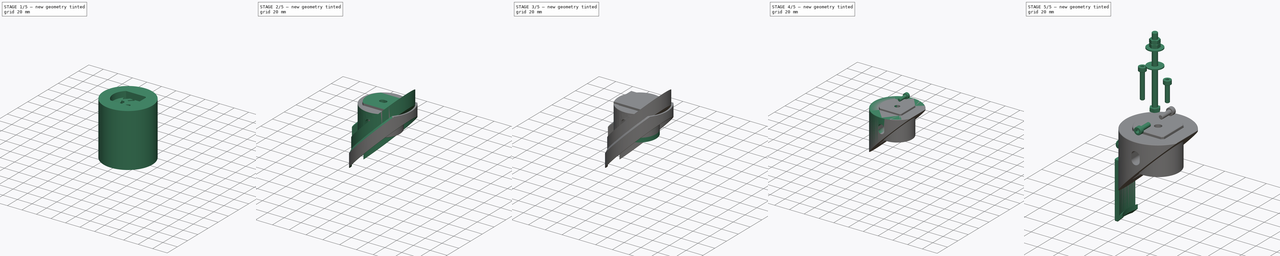
[diagram: build sequence overview — one tinted view per stage of 5, left to right]
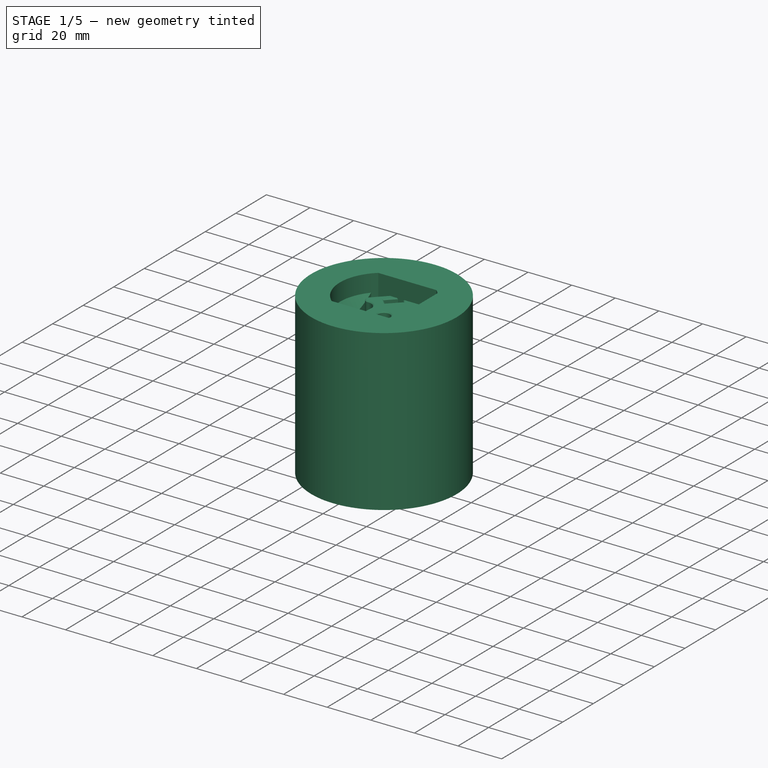
[diagram: stage 1 of 5 — iso view after this stage's code; geometry added in this stage tinted green]
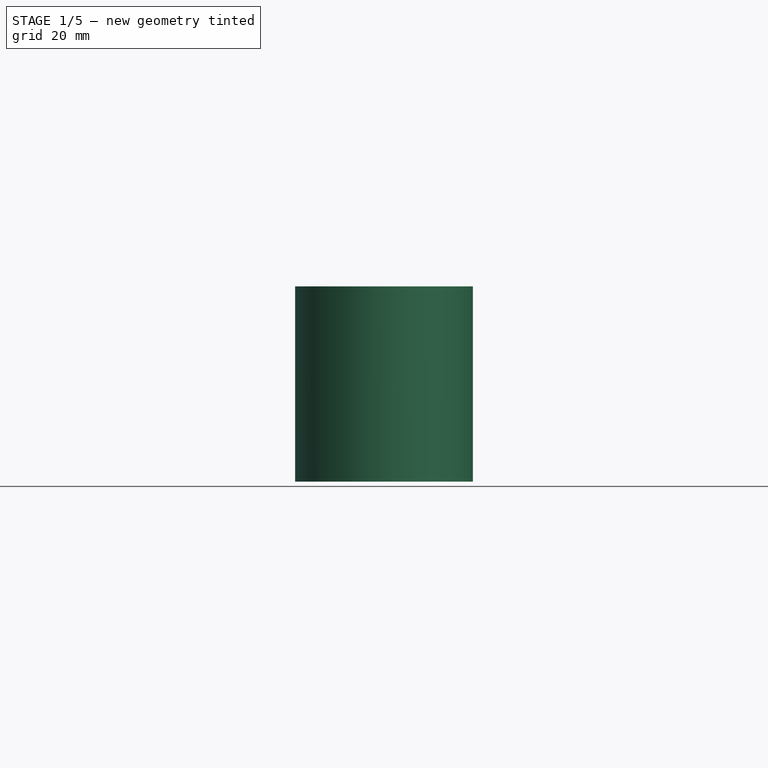
[diagram: stage 1 of 5 — front view after this stage's code; geometry added in this stage tinted green]
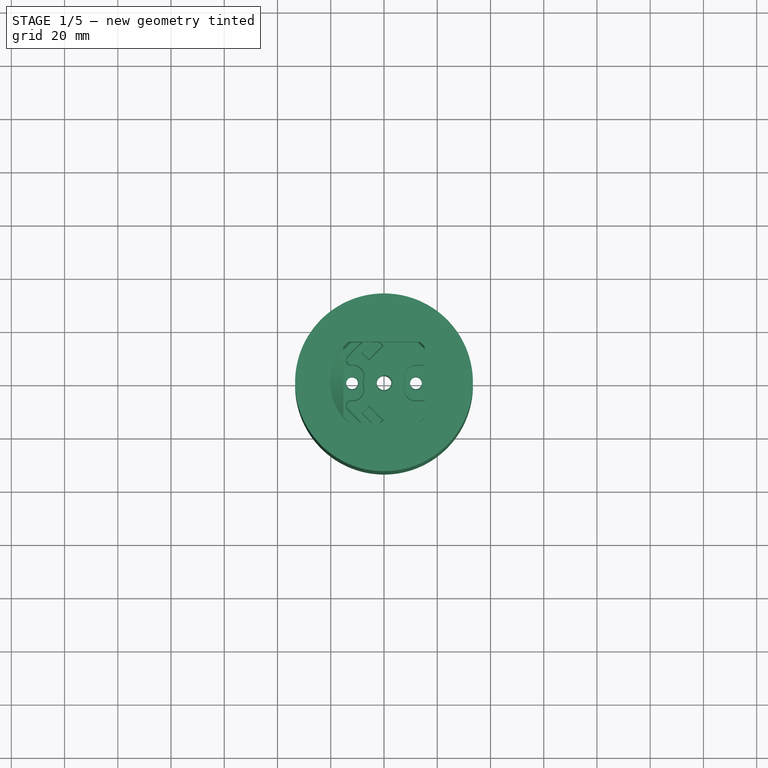
[diagram: stage 1 of 5 — top view after this stage's code; geometry added in this stage tinted green]
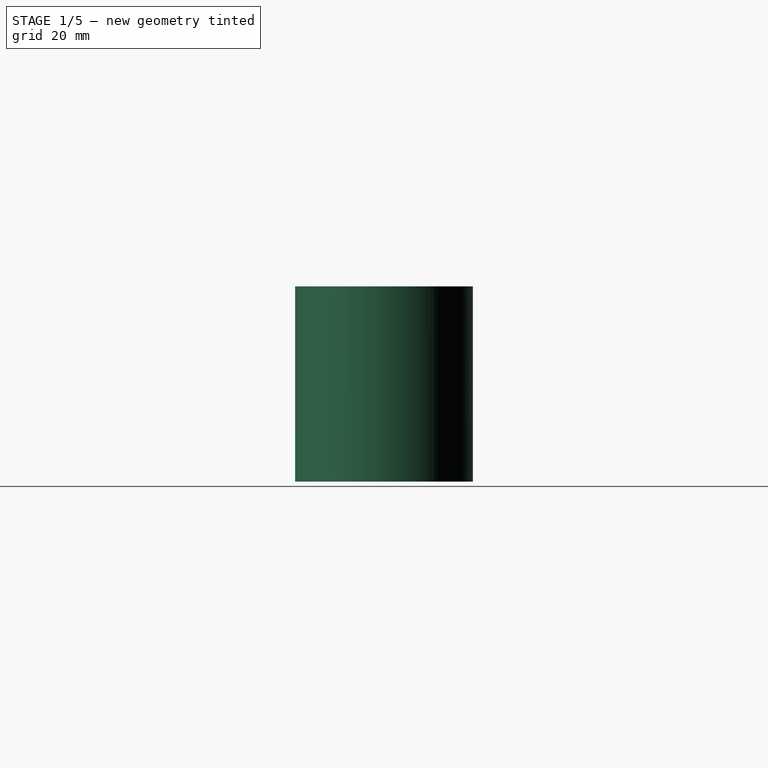
[diagram: stage 1 of 5 — right view after this stage's code; geometry added in this stage tinted green]
FCSTD DOCUMENT  (FreeCAD 0.21RUnknown)
Label: SecondaryMirrorCell
License: All rights reserved
LicenseURL: http://en.wikipedia.org/wiki/All_rights_reserved
objects: Sketcher::SketchObject×54, PartDesign::CoordinateSystem×40, PartDesign::Pocket×29, PartDesign::Plane×15, App::Link×11, Part::FeaturePython×11, PartDesign::Body×9, PartDesign::Chamfer×7, PartDesign::Mirrored×6, PartDesign::Pad×5, PartDesign::AdditiveCylinder×4, PartDesign::Groove×4, PartDesign::Hole×4, App::DocumentObjectGroup×3, PartDesign::AdditiveSphere×2, PartDesign::ShapeBinder×2, PartDesign::PolarPattern×1, PartDesign::AdditiveBox×1, PartDesign::SubtractiveLoft×1, PartDesign::Fillet×1, +4 more types
note: 257 computed .brp shape members not serialized (recipe doc carries the construction recipe); baked Part::Feature solids carry a one-line shape summary decoded from their .brp
EXTERNAL_REF file=Common.FCStd obj=Spreadsheet
EXTERNAL_REF file=Common.FCStd obj=Local_CS318
EXTERNAL_REF file=Common.FCStd obj=Body022061
EXTERNAL_REF file=Common.FCStd obj=Local_CS191
EXTERNAL_REF file=Common.FCStd obj=Body022010
EXTERNAL_REF file=Common.FCStd obj=Body022062

FEATURE [PartDesign::Plane] DatumPlane013  label="MirrorPad_DatumPlane_CPoint"
  AttachmentOffset = pos=(0,30.0779,-12) rot=(0,0,1;0rad)
  Length = 60.4955
  MapMode = 5
  Placement = pos=(-12,9.3e-15,30.0779) rot=(0.57735,0.57735,0.57735;2.0944rad)
  ResizeMode = 0
  Support = -> [YZ_Plane055]
  Width = 65.5734
  expr: .AttachmentOffset.Base.y = <<Common>>#<<Parameters>>.sec_padheight
  expr: .AttachmentOffset.Base.z = -<<Common>>#<<Parameters>>.sec_cpointpos
FEATURE [Sketcher::SketchObject] Sketch002  label="MirrorPad_CollGroove_Sketch"
  FullyConstrained = true
  MapMode = 5
  Placement = pos=(-12,9.3e-15,30.0779) rot=(0.57735,0.57735,0.57735;2.0944rad)
  Support = -> [DatumPlane013]
  expr: Constraints[12] = <<Common>>#<<Parameters>>.sec_tiltball / 2
  expr: Constraints[4] = ceil(<<Common>>#<<Parameters>>.sec_tiltball * sqrt(2) / 2) + 1
  sketch-geometry (5):
    g0: LineSegment StartX=-3.5 StartY=0 StartZ=0 EndX=0 EndY=-2.02073 EndZ=0
    g1: LineSegment StartX=0 StartY=-2.02073 StartZ=0 EndX=3.5 EndY=0 EndZ=0
    g2: LineSegment StartX=-3.5 StartY=0 StartZ=0 EndX=-3.5 EndY=4 EndZ=0
    g3: LineSegment StartX=-3.5 StartY=4 StartZ=0 EndX=3.5 EndY=4 EndZ=0
    g4: LineSegment StartX=3.5 StartY=4 StartZ=0 EndX=3.5 EndY=0 EndZ=0
  constraints (14):
    c: PointOnObject(g0,g-1)
    c: Symmetric(g0,g1,g-2)
    c: PointOnObject(g0,g-2)
    c: Coincident(g1,g0)
    c: DistanceX(g0,g1) = 7
    c: Coincident(g2,g0)
    c: Vertical(g2)
    c: Coincident(g3,g2)
    c: Horizontal(g3)
    c: Coincident(g4,g3)
    c: Coincident(g4,g1)
    c: Vertical(g4)
    c: DistanceY(g4,g4) = 4
    c: Angle(g-1,g1) = 0.523599
FEATURE [PartDesign::Plane] DatumPlane001  label="MirrorPad_DatumPlane_Top"
  AttachmentOffset = pos=(0,0,30.0779) rot=(0,0,1;0rad)
  Length = 60
  MapMode = 5
  Placement = pos=(0,0,30.0779) rot=(0,0,1;0rad)
  ResizeMode = 0
  Support = -> [XY_Plane055]
  Width = 60
  expr: .AttachmentOffset.Base.z = <<Common>>#<<Parameters>>.sec_padheight
FEATURE [Sketcher::SketchObject] Sketch005  label="MirrorPad_Outer_Sketch"
  FullyConstrained = true
  MapMode = 5
  Support = -> [XY_Plane055]
  expr: Constraints[2] = <<Common>>#<<Parameters>>.sec_hubdia
  expr: Constraints[3] = <<Common>>#<<Parameters>>.sec_mdia * 2
  sketch-geometry (2):
    g0: Circle CenterX=0 CenterY=0 CenterZ=0 NormalX=0 NormalY=0 NormalZ=1 AngleXU=0 Radius=20
    g1: Circle CenterX=0 CenterY=0 CenterZ=0 NormalX=0 NormalY=0 NormalZ=1 AngleXU=0 Radius=62.5
  constraints (4):
    c: Coincident(g0,g-1)
    c: Coincident(g1,g0)
    c: Diameter(g0) = 40
    c: Diameter(g1) = 125
FEATURE [PartDesign::AdditiveCylinder] Cylinder005  label="TiltPlate_Base"
  Angle = 360
  AttacherType = Attacher::AttachEngine3D
  FirstAngle = 0
  Height = 8
  MapMode = 5
  Radius = 20
  SecondAngle = 0
  Support = -> [XY_Plane056]
  expr: Height = <<Common>>#<<Parameters>>.sec_pthick
  expr: Radius = <<Common>>#<<Parameters>>.sec_hubdia / 2
FEATURE [PartDesign::AdditiveSphere] Sphere  label="TiltBall_A"
  Angle1 = -90
  Angle2 = 0
  Angle3 = 360
  AttacherType = Attacher::AttachEngine3D
  AttachmentOffset = pos=(6,10.3923,0) rot=(0,0,1;0rad)
  BaseFeature = -> Cylinder005
  MapMode = 2
  Placement = pos=(6,10.3923,0) rot=(0,0,1;0rad)
  Radius = 4
  Support = -> [XY_Plane056]
  expr: .AttachmentOffset.Base.x = <<Common>>#<<Parameters>>.sec_cpointpos * cos(60 deg)
  expr: .AttachmentOffset.Base.y = <<Common>>#<<Parameters>>.sec_cpointpos * sin(60 deg)
  expr: Radius = <<Common>>#<<Parameters>>.sec_tiltball / 2
FEATURE [PartDesign::AdditiveSphere] Sphere001  label="TiltBall_F"
  Angle1 = -90
  Angle2 = 0
  Angle3 = 360
  AttacherType = Attacher::AttachEngine3D
  AttachmentOffset = pos=(6,-10.3923,0) rot=(0,0,1;0rad)
  BaseFeature = -> Sphere
  MapMode = 5
  Placement = pos=(6,-10.3923,0) rot=(0,0,1;0rad)
  Radius = 4
  Support = -> [XY_Plane056]
  expr: .AttachmentOffset.Base.x = <<Common>>#<<Parameters>>.sec_cpointpos * cos(60 deg)
  expr: .AttachmentOffset.Base.y = -<<Common>>#<<Parameters>>.sec_cpointpos * sin(60 deg)
  expr: Radius = <<Common>>#<<Parameters>>.sec_tiltball / 2
FEATURE [PartDesign::Plane] DatumPlane002  label="TiltPlate_DatumPlane_Top"
  AttachmentOffset = pos=(0,0,8) rot=(0,0,1;0rad)
  Length = 60
  MapMode = 5
  Placement = pos=(0,0,8) rot=(0,0,1;0rad)
  ResizeMode = 0
  Support = -> [XY_Plane056]
  Width = 60
  expr: .AttachmentOffset.Base.z = <<Common>>#<<Parameters>>.sec_pthick
FEATURE [Sketcher::SketchObject] Sketch006  label="TiltPlate_Holes_Sketch"
  FullyConstrained = true
  MapMode = 5
  Placement = pos=(0,0,8) rot=(0,0,1;0rad)
  Support = -> [DatumPlane002]
  expr: Constraints[2] = <<Common>>#<<Parameters>>.sec_centralbolt * 1.1
  expr: Constraints[3] = <<Common>>#<<Parameters>>.sec_collbolt * 1.1
  expr: Constraints[6] = <<Common>>#<<Parameters>>.sec_cpointpos
  sketch-geometry (3):
    g0: Circle CenterX=-12 CenterY=0 CenterZ=0 NormalX=0 NormalY=0 NormalZ=1 AngleXU=0 Radius=2.2
    g1: Circle CenterX=12 CenterY=0 CenterZ=0 NormalX=0 NormalY=0 NormalZ=1 AngleXU=0 Radius=2.2
    g2: Circle CenterX=0 CenterY=0 CenterZ=0 NormalX=0 NormalY=0 NormalZ=1 AngleXU=0 Radius=2.75
  constraints (7):
    c: PointOnObject(g0,g-1)
    c: Coincident(g2,g-1)
    c: Diameter(g2) = 5.5
    c: Diameter(g1) = 4.4
    c: Equal(g1,g0)
    c: Symmetric(g1,g0,g-2)
    c: DistanceX(g0,g2) = 12
FEATURE [PartDesign::Plane] DatumPlane003  label="TiltPlate_DatumPlane_Bottom"
  Length = 60
  MapMode = 5
  ResizeMode = 0
  Support = -> [XY_Plane056]
  Width = 60
FEATURE [PartDesign::Pocket] Pocket004  label="TiltPlate_Holes"
  BaseFeature = -> Sphere001
  Direction = (0,0,-1)
  Length = 5
  Length2 = 100
  Placement = pos=(6,-10.3923,0) rot=(0,0,1;0rad)
  Profile = -> Sketch006
  Type = 1
FEATURE [Sketcher::SketchObject] Sketch063  label="TiltPlate_Hex_Sketch"
  FullyConstrained = true
  MapMode = 5
  Support = -> [DatumPlane003]
  expr: Constraints[3] = <<Common>>#<<Parameters>>.sec_cpointpos
  expr: Constraints[4] = <<Common>>#<<Parameters>>.acc_M4Bore
  sketch-geometry (12):
    g0: Circle CenterX=-12 CenterY=0 CenterZ=0 NormalX=0 NormalY=0 NormalZ=1 AngleXU=0 Radius=2.8
    g1: Circle CenterX=12 CenterY=0 CenterZ=0 NormalX=0 NormalY=0 NormalZ=1 AngleXU=0 Radius=2.8
    g2: LineSegment StartX=-17.0912 StartY=0 StartZ=0 EndX=-12 EndY=-5.09117 EndZ=0
    g3: LineSegment StartX=-12 StartY=-5.09117 StartZ=0 EndX=-6.90883 EndY=4.05889e-11 EndZ=0
    g4: LineSegment StartX=-6.90883 StartY=4.05889e-11 StartZ=0 EndX=-12 EndY=5.09117 EndZ=0
    g5: LineSegment StartX=-12 StartY=5.09117 StartZ=0 EndX=-17.0912 EndY=0 EndZ=0
    g6: Circle CenterX=-12 CenterY=0 CenterZ=0 NormalX=0 NormalY=0 NormalZ=1 AngleXU=0 Radius=5.09117
    g7: LineSegment StartX=17.0912 StartY=0 StartZ=0 EndX=12 EndY=5.09117 EndZ=0
    g8: LineSegment StartX=12 StartY=5.09117 StartZ=0 EndX=6.90883 EndY=9e-16 EndZ=0
    g9: LineSegment StartX=6.90883 StartY=8e-16 StartZ=0 EndX=12 EndY=-5.09117 EndZ=0
    g10: LineSegment StartX=12 StartY=-5.09117 StartZ=0 EndX=17.0912 EndY=0 EndZ=0
    g11: Circle CenterX=12 CenterY=0 CenterZ=0 NormalX=0 NormalY=0 NormalZ=1 AngleXU=0 Radius=5.09117
  constraints (33):
    c: PointOnObject(g0,g-1)
    c: Equal(g0,g1)
    c: Symmetric(g1,g0,g-2)
    c: DistanceX(g0,g-1) = 12
    c: Diameter(g0) = 5.6
    c: Coincident(g2,g3)
    c: Coincident(g3,g4)
    c: Coincident(g4,g5)
    c: Coincident(g5,g2)
    c: Equal(g2,g3)
    c: Equal(g2,g4)
    c: Equal(g2,g5)
    c: PointOnObject(g2,g6)
    c: PointOnObject(g3,g6)
    c: PointOnObject(g4,g6)
    c: PointOnObject(g5,g6)
    c: Coincident(g6,g0)
    c: PointOnObject(g5,g-1)
    c: Coincident(g7,g8)
    c: Coincident(g8,g9)
    c: Coincident(g9,g10)
    c: Coincident(g10,g7)
    c: Equal(g7,g8)
    c: Equal(g7,g9)
    c: Equal(g7,g10)
    c: PointOnObject(g7,g11)
    c: PointOnObject(g8,g11)
    c: PointOnObject(g9,g11)
    c: PointOnObject(g10,g11)
    c: Coincident(g11,g1)
    c: PointOnObject(g10,g-1)
    c: Distance(g4) = 7.2
    c: Equal(g11,g6)
FEATURE [PartDesign::Pocket] Pocket005  label="TiltPlate_Hex"
  BaseFeature = -> Pocket004
  Direction = (0,0,-1)
  Length = 4
  Length2 = 100
  Placement = pos=(6,-10.3923,0) rot=(0,0,1;0rad)
  Profile = -> Sketch063
  Reversed = true
  Type = 0
FEATURE [PartDesign::AdditiveCylinder] Cylinder009  label="MirrorCap_Body"
  Angle = 360
  AttacherType = Attacher::AttachEngine3D
  AttachmentOffset = pos=(0,0,-45.25) rot=(0,0,1;0rad)
  FirstAngle = 0
  Height = 73.3279
  MapMode = 5
  Placement = pos=(0,0,-45.25) rot=(0,0,1;0rad)
  Radius = 33.4
  SecondAngle = 0
  Support = -> [XY_Plane078]
  expr: .AttachmentOffset.Base.z = -<<Common>>#<<Parameters>>.sec_mdia / 2 - <<Common>>#<<Parameters>>.sec_mthick - <<Common>>#<<Parameters>>.sec_mfloat
  expr: Height = <<Common>>#<<Parameters>>.sec_mdia / 2 + <<Common>>#<<Parameters>>.sec_mthick + <<Common>>#<<Parameters>>.sec_padheight - <<Common>>#<<Parameters>>.sec_mtvar / 2 + <<Common>>#<<Parameters>>.sec_mfloat
  expr: Radius = <<Common>>#<<Parameters>>.sec_mdia / 2 + 0.7 / 2 + <<Common>>#<<Parameters>>.sec_thinwall
FEATURE [Sketcher::SketchObject] Sketch127  label="MirrorCap_Cavity_Sketch"
  FullyConstrained = true
  MapMode = 5
  Support = -> [XY_Plane078]
  expr: Constraints[10] = <<Common>>#<<Parameters>>.sec_hubdia * 0.75 + 0.5
  expr: Constraints[26] = <<Common>>#<<Parameters>>.sec_hubdia * 0.75 + 0.5
  expr: Constraints[4] = <<Common>>#<<Parameters>>.sec_hubdia + 0.5
  sketch-geometry (10):
    g0: LineSegment StartX=-13.3229 StartY=15.25 StartZ=0 EndX=13.3229 EndY=15.25 EndZ=0
    g1: LineSegment StartX=-13.3229 StartY=-15.25 StartZ=0 EndX=13.3229 EndY=-15.25 EndZ=0
    g2: LineSegment StartX=15.25 StartY=13.3229 StartZ=0 EndX=15.25 EndY=-13.3229 EndZ=0
    g3: Circle CenterX=0 CenterY=0 CenterZ=0 NormalX=0 NormalY=0 NormalZ=1 AngleXU=0 Radius=20.25
    g4: ArcOfCircle CenterX=0 CenterY=0 CenterZ=0 NormalX=0 NormalY=0 NormalZ=1 AngleXU=0 Radius=20.25 StartAngle=5.43044 EndAngle=5.56513
    g5: ArcOfCircle CenterX=0 CenterY=0 CenterZ=0 NormalX=0 NormalY=0 NormalZ=1 AngleXU=0 Radius=20.25 StartAngle=0.718056 EndAngle=0.852741
    g6: LineSegment StartX=-13.3229 StartY=15.25 StartZ=0 EndX=-13.3229 EndY=-15.25 EndZ=0
    g7: ArcOfCircle CenterX=0 CenterY=0 CenterZ=0 NormalX=0 NormalY=0 NormalZ=1 AngleXU=0 Radius=20.25 StartAngle=2.28885 EndAngle=2.42354
    g8: ArcOfCircle CenterX=0 CenterY=0 CenterZ=0 NormalX=0 NormalY=0 NormalZ=1 AngleXU=0 Radius=20.25 StartAngle=3.85965 EndAngle=3.99433
    g9: LineSegment StartX=-15.25 StartY=13.3229 StartZ=0 EndX=-15.25 EndY=-13.3229 EndZ=0
  constraints (27):
    c: Horizontal(g0)
    c: Horizontal(g1)
    c: Vertical(g2)
    c: Coincident(g3,g-1)
    c: Diameter(g3) = 40.5
    c: Coincident(g4,g1)
    c: Coincident(g4,g2)
    c: Coincident(g5,g2)
    c: Coincident(g5,g0)
    c: Equal(g4,g3)
    c: DistanceY(g1,g0) = 30.5
    c: Coincident(g6,g0)
    c: Coincident(g6,g1)
    c: Vertical(g6)
    c: Coincident(g7,g4)
    c: Coincident(g7,g0)
    c: Coincident(g8,g4)
    c: Coincident(g8,g1)
    c: Coincident(g9,g7)
    c: Coincident(g9,g8)
    c: Vertical(g9)
    c: Equal(g7,g8)
    c: Equal(g8,g3)
    c: Coincident(g4,g5)
    c: Coincident(g4,g-1)
    c: Symmetric(g7,g2,g-2)
    c: DistanceX(g7,g2) = 30.5
FEATURE [PartDesign::Pocket] Pocket068  label="MirrorCap_Cavity"
  BaseFeature = -> Cylinder009
  Direction = (0,0,-1)
  Length = 5
  Length2 = 100
  Midplane = true
  Placement = pos=(0,0,-45.25) rot=(0,0,1;0rad)
  Profile = -> Sketch127
  Type = 1
FEATURE [Sketcher::SketchObject] Sketch184  label="MirrorPad_Flat_InnerCut_Sketch"
  FullyConstrained = true
  MapMode = 5
  Placement = pos=(0,0,0) rot=(1,0,0;1.5708rad)
  Support = -> [XZ_Plane088]
  expr: Constraints[10] = -<<Common>>#<<Parameters>>.sec_mdia / 2
  expr: Constraints[11] = <<Common>>#<<Parameters>>.sec_hubdia / 8 + 1
  expr: Constraints[8] = -<<Common>>#<<Parameters>>.sec_hubdia * 0.75 / 2
  expr: Constraints[9] = <<Common>>#<<Parameters>>.sec_padheight - <<Common>>#<<Parameters>>.sec_pthick
  sketch-geometry (4):
    g0: LineSegment StartX=-21 StartY=22.0779 StartZ=0 EndX=-15 EndY=22.0779 EndZ=0
    g1: LineSegment StartX=-15 StartY=22.0779 StartZ=0 EndX=-15 EndY=-31.25 EndZ=0
    g2: LineSegment StartX=-15 StartY=-31.25 StartZ=0 EndX=-21 EndY=-31.25 EndZ=0
    g3: LineSegment StartX=-21 StartY=-31.25 StartZ=0 EndX=-21 EndY=22.0779 EndZ=0
  constraints (12):
    c: Coincident(g0,g1)
    c: Coincident(g1,g2)
    c: Coincident(g2,g3)
    c: Coincident(g3,g0)
    c: Horizontal(g0)
    c: Horizontal(g2)
    c: Vertical(g1)
    c: Vertical(g3)
    c: DistanceX(g0) = -15
    c: DistanceY(g0) = 22.0779
    c: DistanceY(g1) = -31.25
    c: DistanceX(g0,g0) = 6
FEATURE [PartDesign::CoordinateSystem] Local_CS250  label="LCS_MirrorPad_Flat_Top"
  AttacherType = Attacher::AttachEngine3D
  MapMode = 5
  Placement = pos=(0,0,30.0779) rot=(0,0,1;0rad)
  Support = -> [DatumPlane044]
FEATURE [PartDesign::Plane] DatumPlane040  label="SpiderHub_PushPull_DatumPlane_Top"
  AttachmentOffset = pos=(0,0,20) rot=(0,0,1;0rad)
  Length = 60
  MapMode = 5
  Placement = pos=(0,0,20) rot=(0,0,1;0rad)
  ResizeMode = 0
  Support = -> [XY_Plane105]
  Width = 60
  expr: .AttachmentOffset.Base.z = <<Common>>#<<Parameters>>.sec_stalkheight
FEATURE [PartDesign::CoordinateSystem] Local_CS242  label="LCS_SpiderHub_PushPull_Lower"
  AttacherType = Attacher::AttachEngine3D
  AttachmentOffset = pos=(0,0,0) rot=(0,0,1;1.5708rad)
  MapMode = 5
  Placement = pos=(0,0,0) rot=(0,0,1;1.5708rad)
  Support = -> [XY_Plane105]
FEATURE [PartDesign::CoordinateSystem] Local_CS241  label="LCS_SpiderHub_PushPull_BoltTilt"
  AttacherType = Attacher::AttachEngine3D
  AttachmentOffset = pos=(-12,0,8) rot=(0,0,1;0rad)
  MapMode = 5
  Placement = pos=(-12,0,8) rot=(0,0,1;0rad)
  Support = -> [XY_Plane105]
  expr: .AttachmentOffset.Base.x = -<<Common>>#<<Parameters>>.sec_cpointpos
  expr: .AttachmentOffset.Base.z = <<Common>>#<<Parameters>>.sec_pthick
FEATURE [PartDesign::CoordinateSystem] Local_CS240  label="LCS_SpiderHub_PushPull_BoltZrot"
  AttacherType = Attacher::AttachEngine3D
  AttachmentOffset = pos=(12,0,8) rot=(0,0,1;0rad)
  MapMode = 5
  Placement = pos=(12,0,8) rot=(0,0,1;0rad)
  Support = -> [XY_Plane105]
  expr: .AttachmentOffset.Base.x = <<Common>>#<<Parameters>>.sec_cpointpos
  expr: .AttachmentOffset.Base.z = <<Common>>#<<Parameters>>.sec_pthick
FEATURE [PartDesign::CoordinateSystem] Local_CS239  label="LCS_SpiderHub_PushPull_Upper"
  AttacherType = Attacher::AttachEngine3D
  AttachmentOffset = pos=(0,0,20) rot=(0,0,1;1.5708rad)
  MapMode = 5
  Placement = pos=(0,0,20) rot=(0,0,1;1.5708rad)
  Support = -> [XY_Plane105]
  expr: .AttachmentOffset.Base.z = <<Common>>#<<Parameters>>.sec_stalkheight
FEATURE [PartDesign::Groove] Groove001  label="MirrorCap_UpperCavity"
  Angle = 90
  Axis = (0,-2e-16,1)
  Base = (0,0,0)
  BaseFeature = -> Pocket068
  Midplane = true
  Placement = pos=(0,0,-45.25) rot=(0,0,1;0rad)
  Profile = -> Sketch139
  ReferenceAxis = -> Sketch139 [V_Axis]
  Reversed = true
FEATURE [PartDesign::Body] Body022025  label="MirrorCap"
  Group = -> [Cylinder009,Sketch127,Pocket068,Sketch128,Sketch129,Sketch134,Sketch135,Sketch139,Groove001,Sketch222,DatumPlane051,Sketch223,Sketch224,SubtractiveLoft,Sketch225,Sketch226,DatumPlane052,Sketch227,Local_CS301,Local_CS302,Local_CS303,Sketch237,SubtractivePipe,Pocket151,Groove005,Pocket152,Hole052,Pocket153,Pocket154,Mirrored007,Chamfer]
  Origin = -> Origin078
  Placement = pos=(-3.125,0,854.799) rot=(0,0,1;0rad)
  Tip = -> Chamfer
  expr: .Placement.Base.x = -<<Common>>#<<Parameters>>.sec_offset_x
  expr: .Placement.Base.z = <<Common>>#<<Parameters>>.datum_sec_mirrorpad
FEATURE [PartDesign::SubShapeBinder] Binder
  BindCopyOnChange = 0
  BindMode = 0
  ClaimChildren = false
  Context = -> Body009 [Binder.]
  Fuse = false
  MakeFace = true
  OffsetFill = false
  OffsetIntersection = false
  OffsetJoinType = 0
  OffsetOpenResult = false
  PartialLoad = false
  Relative = true
  Support = -> [<external Common.FCStd>#Body022062[Sketch289.]]
  _Version = 2
FEATURE [PartDesign::ShapeBinder] ShapeBinder  label="SpiderHub_ShapeBinder_Spider"
  Support = -> [Binder]
  TraceSupport = false
FEATURE [Sketcher::SketchObject] Sketch033  label="UpperHub_Main_Sketch"
  ExternalGeometry = -> [ShapeBinder]
  FullyConstrained = true
  MapMode = 5
  Support = -> [XY_Plane058]
  expr: Constraints[0] = <<Common>>#<<Parameters>>.sec_centralbolt * 1.1
  expr: Constraints[20] = <<Common>>#<<Parameters>>.sec_fillet
  expr: Constraints[23] = <<Common>>#<<Parameters>>.sec_cpointpos
  expr: Constraints[28] = <<Common>>#<<Parameters>>.sec_zrotmax
  expr: Constraints[54] = <<Common>>#<<Parameters>>.sec_collbolt * 1.1
  sketch-geometry (20):
    g0: Circle CenterX=0 CenterY=0 CenterZ=0 NormalX=0 NormalY=0 NormalZ=1 AngleXU=0 Radius=2.75
    g1: LineSegment StartX=-19.1267 StartY=4.61831 StartZ=0 EndX=-4.61831 EndY=19.1267 EndZ=0
    g2: LineSegment StartX=-19.1267 StartY=-4.61831 StartZ=0 EndX=-4.61831 EndY=-19.1267 EndZ=0
    g3: ArcOfCircle CenterX=0 CenterY=0 CenterZ=0 NormalX=0 NormalY=0 NormalZ=1 AngleXU=0 Radius=20 StartAngle=4.53343 EndAngle=8.03294
    g4: ArcOfCircle CenterX=-3.2041 CenterY=17.7125 CenterZ=0 NormalX=0 NormalY=0 NormalZ=1 AngleXU=0 Radius=2 StartAngle=1.74976 EndAngle=2.35619
    g5: ArcOfCircle CenterX=-3.2041 CenterY=-17.7125 CenterZ=0 NormalX=0 NormalY=0 NormalZ=1 AngleXU=0 Radius=2 StartAngle=3.92699 EndAngle=4.53343
    g6: ArcOfCircle CenterX=0 CenterY=0 CenterZ=0 NormalX=0 NormalY=0 NormalZ=1 AngleXU=0 Radius=20 StartAngle=2.96263 EndAngle=3.32055
    g7: ArcOfCircle CenterX=-17.7125 CenterY=-3.2041 CenterZ=0 NormalX=0 NormalY=0 NormalZ=1 AngleXU=0 Radius=2 StartAngle=3.32055 EndAngle=3.92699
    g8: ArcOfCircle CenterX=-17.7125 CenterY=3.2041 CenterZ=0 NormalX=0 NormalY=0 NormalZ=1 AngleXU=0 Radius=2 StartAngle=2.35619 EndAngle=2.96263
    g9: Circle CenterX=0 CenterY=0 CenterZ=0 NormalX=0 NormalY=0 NormalZ=1 AngleXU=0 Radius=12
    g10: LineSegment StartX=-11.7156 StartY=2.59728 StartZ=0 EndX=0 EndY=0 EndZ=0
    g11: LineSegment StartX=0 StartY=0 StartZ=0 EndX=-11.7156 EndY=-2.59728 EndZ=0
    g12: ArcOfCircle CenterX=-11.7156 CenterY=2.59728 CenterZ=0 NormalX=0 NormalY=0 NormalZ=1 AngleXU=0 Radius=2.2 StartAngle=6.06502 EndAngle=9.20661
    g13: ArcOfCircle CenterX=-11.7156 CenterY=-2.59728 CenterZ=0 NormalX=0 NormalY=0 NormalZ=1 AngleXU=0 Radius=2.2 StartAngle=3.35976 EndAngle=6.50135
    g14: ArcOfCircle CenterX=11.7156 CenterY=2.59728 CenterZ=0 NormalX=0 NormalY=0 NormalZ=1 AngleXU=0 Radius=2.2 StartAngle=0.218166 EndAngle=3.35976
    g15: ArcOfCircle CenterX=11.7156 CenterY=-2.59728 CenterZ=0 NormalX=0 NormalY=0 NormalZ=1 AngleXU=0 Radius=2.2 StartAngle=2.92343 EndAngle=6.06502
    g16: ArcOfCircle CenterX=0 CenterY=0 CenterZ=0 NormalX=0 NormalY=0 NormalZ=1 AngleXU=0 Radius=9.8 StartAngle=2.92343 EndAngle=3.35976
    g17: ArcOfCircle CenterX=0 CenterY=0 CenterZ=0 NormalX=0 NormalY=0 NormalZ=1 AngleXU=0 Radius=14.2 StartAngle=2.92343 EndAngle=3.35976
    g18: ArcOfCircle CenterX=0 CenterY=0 CenterZ=0 NormalX=0 NormalY=0 NormalZ=1 AngleXU=0 Radius=9.8 StartAngle=6.06502 EndAngle=6.50135
    g19: ArcOfCircle CenterX=0 CenterY=0 CenterZ=0 NormalX=0 NormalY=0 NormalZ=1 AngleXU=0 Radius=14.2 StartAngle=6.06502 EndAngle=6.50135
  constraints (55):
    c: Diameter(g0) = 5.5
    c: Equal(g1,g2)
    c: PointOnObject(g1,g-5)
    c: PointOnObject(g2,g-4)
    c: Coincident(g3,g0)
    c: Coincident(g0,g-3)
    c: Equal(g3,g-3)
    c: Tangent(g1,g4) = 1.5708
    c: Tangent(g2,g5) = -1.5708
    c: Tangent(g3,g5) = -1.5708
    c: Parallel(g2,g-4)
    c: Parallel(g1,g-5)
    c: Equal(g4,g5)
    c: Tangent(g3,g4) = -1.5708
    c: Coincident(g6,g0)
    c: PointOnObject(g6,g-3)
    c: Tangent(g8,g1) = 1.5708
    c: Tangent(g8,g6) = -1.5708
    c: Tangent(g7,g6) = -1.5708
    c: Tangent(g7,g2) = -1.5708
    c: Radius(g8) = 2
    c: Equal(g4,g8)
    c: Coincident(g9,g0)
    c: Radius(g9) = 12
    c: PointOnObject(g10,g9)
    c: Coincident(g10,g0)
    c: Coincident(g11,g0)
    c: Symmetric(g10,g11,g-1)
    c: Angle(g10,g11) = 0.436332
    c: Coincident(g12,g10)
    c: PointOnObject(g12,g10)
    c: Coincident(g13,g11)
    c: PointOnObject(g13,g11)
    c: PointOnObject(g14,g9)
    c: PointOnObject(g15,g9)
    c: Equal(g13,g15)
    c: Equal(g15,g14)
    c: Coincident(g16,g0)
    c: Coincident(g16,g12)
    c: Coincident(g16,g13)
    c: Coincident(g17,g0)
    c: Coincident(g17,g12)
    c: Coincident(g17,g13)
    c: Coincident(g18,g0)
    c: Coincident(g18,g14)
    c: Coincident(g18,g15)
    c: Coincident(g19,g0)
    c: Coincident(g19,g14)
    c: Coincident(g19,g15)
    c: PointOnObject(g12,g10)
    c: PointOnObject(g14,g11)
    c: PointOnObject(g14,g11)
    c: PointOnObject(g14,g11)
    c: PointOnObject(g15,g10)
    c: Diameter(g13) = 4.4
FEATURE [PartDesign::Pad] Pad009  label="UpperHub_Main"
  Direction = (0,0,1)
  Length = 20
  Length2 = 100
  Profile = -> Sketch033
  Type = 0
  expr: Length = <<Common>>#<<Parameters>>.sec_stalkheight
FEATURE [Sketcher::SketchObject] Sketch070  label="UpperHub_CounterBore_Sketch"
  ExternalGeometry = -> [ShapeBinder]
  FullyConstrained = true
  MapMode = 5
  Placement = pos=(0,0,20) rot=(0,0,1;0rad)
  Support = -> [DatumPlane019]
  expr: Constraints[0] = <<Common>>#<<Parameters>>.sec_cpointpos
  expr: Constraints[11] = <<Common>>#<<Parameters>>.sec_collbolt
  expr: Constraints[12] = <<Common>>#<<Parameters>>.sec_zrotmax
  expr: Constraints[73] = <<Common>>#<<Parameters>>.sec_fillet
  sketch-geometry (29):
    g0: Circle CenterX=0 CenterY=0 CenterZ=0 NormalX=0 NormalY=0 NormalZ=1 AngleXU=0 Radius=12
    g1: ArcOfCircle CenterX=-11.7156 CenterY=2.59728 CenterZ=0 NormalX=0 NormalY=0 NormalZ=1 AngleXU=0 Radius=4 StartAngle=6.06502 EndAngle=7.85398
    g2: ArcOfCircle CenterX=-11.7156 CenterY=-2.59728 CenterZ=0 NormalX=0 NormalY=0 NormalZ=1 AngleXU=0 Radius=4 StartAngle=4.71239 EndAngle=6.50135
    g3: LineSegment StartX=0 StartY=0 StartZ=0 EndX=-11.7156 EndY=2.59728 EndZ=0
    g4: LineSegment StartX=0 StartY=0 StartZ=0 EndX=-11.7156 EndY=-2.59728 EndZ=0
    g5: ArcOfCircle CenterX=0 CenterY=0 CenterZ=0 NormalX=0 NormalY=0 NormalZ=1 AngleXU=0 Radius=8 StartAngle=2.92343 EndAngle=3.35976
    g6: ArcOfCircle CenterX=11.7156 CenterY=2.59728 CenterZ=0 NormalX=0 NormalY=0 NormalZ=1 AngleXU=0 Radius=4 StartAngle=1.5708 EndAngle=3.35976
    g7: ArcOfCircle CenterX=11.7156 CenterY=-2.59728 CenterZ=0 NormalX=0 NormalY=0 NormalZ=1 AngleXU=0 Radius=4 StartAngle=2.92343 EndAngle=4.71239
    g8: ArcOfCircle CenterX=0 CenterY=0 CenterZ=0 NormalX=0 NormalY=0 NormalZ=1 AngleXU=0 Radius=8 StartAngle=6.06502 EndAngle=6.50135
    g9: LineSegment StartX=-11.7156 StartY=6.59728 StartZ=0 EndX=-12.3194 EndY=6.59728 EndZ=0
    g10: LineSegment StartX=-11.7156 StartY=-6.59728 StartZ=0 EndX=-12.3194 EndY=-6.59728 EndZ=0
    g11: LineSegment StartX=11.7156 StartY=-6.59728 StartZ=0 EndX=15.8141 EndY=-6.59728 EndZ=0
    g12: LineSegment StartX=11.7156 StartY=6.59728 StartZ=0 EndX=15.8141 EndY=6.59728 EndZ=0
    g13: LineSegment StartX=-11.7156 StartY=6.59728 StartZ=0 EndX=-11.7156 EndY=-6.59728 EndZ=0
    g14: LineSegment StartX=11.7156 StartY=6.59728 StartZ=0 EndX=11.7156 EndY=-6.59728 EndZ=0
    g15: LineSegment StartX=-21 StartY=10.0115 StartZ=0 EndX=-21 EndY=-10.0115 EndZ=0
    g16: ArcOfCircle CenterX=-12.3194 CenterY=8.59728 CenterZ=0 NormalX=0 NormalY=0 NormalZ=1 AngleXU=0 Radius=2 StartAngle=2.35619 EndAngle=4.71239
    g17: ArcOfCircle CenterX=15.8141 CenterY=8.59728 CenterZ=0 NormalX=0 NormalY=0 NormalZ=1 AngleXU=0 Radius=2 StartAngle=4.71239 EndAngle=6.78113
    g18: ArcOfCircle CenterX=15.8141 CenterY=-8.59728 CenterZ=0 NormalX=0 NormalY=0 NormalZ=1 AngleXU=0 Radius=2 StartAngle=5.78523 EndAngle=7.85398
    g19: LineSegment StartX=17.5713 StartY=9.55252 StartZ=0 EndX=21 EndY=9.55252 EndZ=0
    g20: LineSegment StartX=17.5713 StartY=-9.55254 StartZ=0 EndX=21 EndY=-9.55254 EndZ=0
    g21: LineSegment StartX=21 StartY=-9.55254 StartZ=0 EndX=21 EndY=9.55252 EndZ=0
    g22: GeomPoint X=21 Y=0 Z=0
    g23: GeomPoint X=20 Y=0 Z=0
    g24: GeomPoint X=-20 Y=0 Z=0
    g25: GeomPoint X=-21 Y=0 Z=0
    g26: LineSegment StartX=-13.7336 StartY=10.0115 StartZ=0 EndX=-21 EndY=10.0115 EndZ=0
    g27: LineSegment StartX=-13.7336 StartY=-10.0115 StartZ=0 EndX=-21 EndY=-10.0115 EndZ=0
    g28: ArcOfCircle CenterX=-12.3194 CenterY=-8.59728 CenterZ=0 NormalX=0 NormalY=0 NormalZ=1 AngleXU=0 Radius=2 StartAngle=1.5708 EndAngle=3.92699
  constraints (81):
    c: Radius(g0) = 12
    c: Coincident(g0,g-1)
    c: PointOnObject(g1,g0)
    c: Coincident(g3,g-1)
    c: Coincident(g3,g1)
    c: Coincident(g4,g-1)
    c: Coincident(g4,g2)
    c: Symmetric(g1,g2,g-1)
    c: Coincident(g5,g-1)
    c: Coincident(g5,g1)
    c: Coincident(g5,g2)
    c: Radius(g1) = 4
    c: Angle(g3,g4) = 0.436332
    c: PointOnObject(g1,g3)
    c: PointOnObject(g2,g4)
    c: PointOnObject(g6,g0)
    c: PointOnObject(g7,g0)
    c: Coincident(g8,g5)
    c: Coincident(g8,g6)
    c: Coincident(g8,g7)
    c: Equal(g1,g6)
    c: PointOnObject(g6,g4)
    c: PointOnObject(g6,g4)
    c: PointOnObject(g7,g3)
    c: PointOnObject(g7,g3)
    c: Coincident(g9,g1)
    c: Horizontal(g9)
    c: Coincident(g10,g2)
    c: Horizontal(g10)
    c: Coincident(g11,g7)
    c: Horizontal(g11)
    c: Coincident(g12,g6)
    c: Horizontal(g12)
    c: Coincident(g13,g1)
    c: Coincident(g13,g2)
    c: Vertical(g13)
    c: PointOnObject(g1,g13)
    c: Coincident(g14,g6)
    c: Coincident(g14,g7)
    c: Vertical(g14)
    c: PointOnObject(g6,g14)
    c: Vertical(g15)
    c: Coincident(g19,g17)
    c: Horizontal(g19)
    c: Coincident(g20,g18)
    c: Coincident(g21,g20)
    c: Coincident(g21,g19)
    c: Vertical(g21)
    c: Horizontal(g20)
    c: PointOnObject(g18,g-3)
    c: PointOnObject(g17,g-3)
    c: Tangent(g17,g-3)
    c: Tangent(g18,g-3)
    c: Tangent(g18,g11) = 1.5708
    c: Tangent(g17,g12) = -1.5708
    c: PointOnObject(g22,g21)
    c: PointOnObject(g23,g-3)
    c: PointOnObject(g24,g-3)
    c: PointOnObject(g25,g15)
    c: PointOnObject(g25,g-1)
    c: PointOnObject(g24,g-1)
    c: DistanceX(g25,g24) = 1
    c: PointOnObject(g23,g-1)
    c: PointOnObject(g22,g-1)
    c: DistanceX(g23,g22) = 1
    c: PointOnObject(g27,g-5)
    c: PointOnObject(g16,g-4)
    c: Coincident(g26,g16)
    c: Coincident(g26,g15)
    c: Coincident(g27,g15)
    c: Horizontal(g27)
    c: Horizontal(g26)
    c: Tangent(g16,g-4)
    c: Radius(g16) = 2
    c: Tangent(g16,g9) = 1.5708
    c: Coincident(g28,g27)
    c: Tangent(g28,g-5)
    c: Tangent(g28,g10) = -1.5708
    c: Equal(g28,g16)
    c: Equal(g16,g17)
    c: Equal(g17,g18)
FEATURE [PartDesign::Plane] DatumPlane021  label="UpperHub_DatumPlane_SpiderHole"
  Length = 82.6027
  MapMode = 14
  Placement = pos=(-11.8725,-11.8725,0) rot=(0.862856,-0.357407,-0.357407;1.71777rad)
  ResizeMode = 0
  Support = -> [ShapeBinder,Z_Axis058]
  Width = 61.8921
FEATURE [Sketcher::SketchObject] Sketch071  label="UpperHub_SpiderHole_Sketch"
  ExternalGeometry = -> [ShapeBinder]
  FullyConstrained = true
  MapMode = 5
  Placement = pos=(-11.8725,-11.8725,0) rot=(0.862856,-0.357407,-0.357407;1.71777rad)
  Support = -> [DatumPlane021]
  expr: Constraints[0] = <<Common>>#<<Parameters>>.sec_collbolt
  expr: Constraints[3] = <<Common>>#<<Parameters>>.sec_stalkheight / 4
  expr: Constraints[4] = <<Common>>#<<Parameters>>.sec_stalkheight / 4
  expr: Constraints[5] = <<Common>>#<<Parameters>>.sec_stalkheight / 2
  expr: Constraints[6] = <<Common>>#<<Parameters>>.sec_collbolt * 1.5
  expr: Constraints[8] = <<Common>>#<<Parameters>>.sec_sidebolt * 1.25
  sketch-geometry (3):
    g0: Circle CenterX=5.86674 CenterY=5 CenterZ=0 NormalX=0 NormalY=0 NormalZ=1 AngleXU=0 Radius=2
    g1: Circle CenterX=5.86674 CenterY=15 CenterZ=0 NormalX=0 NormalY=0 NormalZ=1 AngleXU=0 Radius=2
    g2: LineSegment StartX=5.86674 StartY=15 StartZ=0 EndX=5.86674 EndY=0 EndZ=0
  constraints (9):
    c: Diameter(g0) = 4
    c: Equal(g0,g1)
    c: Vertical(g2)
    c: PointOnObject(g0,g2) = 5
    c: DistanceY(g2,g0) = 5
    c: DistanceY(g0,g1) = 10
    c: PointOnObject(g2,g-1) = 6
    c: Coincident(g2,g1)
    c: DistanceX(g2,g-3) = 5
FEATURE [PartDesign::Plane] DatumPlane033  label="UpperHub_DatumPlane_SpiderNut"
  AttachmentOffset = pos=(0,0,-3) rot=(0,0,1;0rad)
  Length = 82.6027
  MapMode = 5
  Placement = pos=(-9.75121,-9.75121,0) rot=(0.862856,-0.357407,-0.357407;1.71777rad)
  ResizeMode = 0
  Support = -> [DatumPlane021]
  Width = 61.8921
  expr: .AttachmentOffset.Base.z = -<<Common>>#<<Parameters>>.sec_fthick
FEATURE [Sketcher::SketchObject] Sketch117  label="UpperHub_SpiderNut_Sketch"
  ExternalGeometry = -> [Sketch071]
  FullyConstrained = true
  MapMode = 5
  Placement = pos=(-9.75121,-9.75121,0) rot=(0.862856,-0.357407,-0.357407;1.71777rad)
  Support = -> [DatumPlane033]
  expr: Constraints[11] = 7 + <<Common>>#<<Parameters>>.acc_FDMtol
  sketch-geometry (18):
    g0: LineSegment StartX=9.51674 StartY=11.35 StartZ=0 EndX=9.51674 EndY=21 EndZ=0
    g1: LineSegment StartX=2.21674 StartY=21 StartZ=0 EndX=2.21674 EndY=11.35 EndZ=0
    g2: Circle CenterX=5.86674 CenterY=15 CenterZ=0 NormalX=0 NormalY=0 NormalZ=1 AngleXU=0 Radius=4.21466
    g3: LineSegment StartX=9.51674 StartY=-1 StartZ=0 EndX=9.51674 EndY=8.65 EndZ=0
    g4: LineSegment StartX=2.21674 StartY=8.65 StartZ=0 EndX=2.21674 EndY=-1 EndZ=0
    g5: Circle CenterX=5.86674 CenterY=5 CenterZ=0 NormalX=0 NormalY=0 NormalZ=1 AngleXU=0 Radius=4.21466
    g6: LineSegment StartX=5.86674 StartY=15 StartZ=0 EndX=5.86674 EndY=10.7853 EndZ=0
    g7: LineSegment StartX=5.86674 StartY=5 StartZ=0 EndX=5.86674 EndY=9.21466 EndZ=0
    g8: LineSegment StartX=2.21674 StartY=-1 StartZ=0 EndX=9.51674 EndY=-1 EndZ=0
    g9: LineSegment StartX=2.21674 StartY=21 StartZ=0 EndX=9.51674 EndY=21 EndZ=0
    g10: LineSegment StartX=2.21674 StartY=11.35 StartZ=0 EndX=9.51674 EndY=11.35 EndZ=0
    g11: LineSegment StartX=2.21674 StartY=8.65 StartZ=0 EndX=9.51674 EndY=8.65 EndZ=0
    g12: LineSegment StartX=5.86674 StartY=5 StartZ=0 EndX=2.21674 EndY=8.65 EndZ=0
    g13: LineSegment StartX=5.86674 StartY=5 StartZ=0 EndX=9.51674 EndY=8.65 EndZ=0
    g14: LineSegment StartX=2.21674 StartY=11.35 StartZ=0 EndX=5.86674 EndY=15 EndZ=0
    g15: LineSegment StartX=5.86674 StartY=15 StartZ=0 EndX=9.51674 EndY=11.35 EndZ=0
    g16: LineSegment StartX=5.86674 StartY=10.7853 StartZ=0 EndX=2.21674 EndY=12.8927 EndZ=0
    g17: LineSegment StartX=5.86674 StartY=10.7853 StartZ=0 EndX=9.51674 EndY=12.8927 EndZ=0
  constraints (46):
    c: PointOnObject(g6,g2)
    c: Coincident(g2,g-3)
    c: PointOnObject(g7,g5)
    c: Coincident(g5,g-4)
    c: Equal(g2,g5)
    c: Vertical(g1)
    c: Vertical(g4)
    c: Vertical(g0)
    c: Coincident(g6,g2)
    c: Coincident(g7,g5)
    c: Vertical(g6)
    c: DistanceX(g1,g0) = 7.3
    c: Vertical(g7)
    c: Vertical(g3)
    c: Coincident(g8,g4)
    c: Coincident(g8,g3)
    c: Coincident(g9,g1)
    c: Coincident(g9,g0)
    c: Horizontal(g9)
    c: Equal(g0,g3)
    c: Horizontal(g8)
    c: DistanceY(g4) = -1
    c: Coincident(g10,g1)
    c: Coincident(g10,g0)
    c: Coincident(g11,g4)
    c: Coincident(g11,g3)
    c: Symmetric(g0,g1,g6)
    c: Symmetric(g3,g4,g7)
    c: Equal(g8,g9)
    c: Coincident(g12,g5)
    c: Coincident(g12,g4)
    c: Coincident(g13,g5)
    c: Coincident(g13,g3)
    c: Coincident(g14,g1)
    c: Coincident(g14,g2)
    c: Coincident(g15,g2)
    c: Coincident(g15,g0)
    c: Perpendicular(g14,g15)
    c: Perpendicular(g13,g12)
    c: Coincident(g16,g6)
    c: Coincident(g17,g6)
    c: PointOnObject(g17,g2)
    c: PointOnObject(g17,g0)
    c: PointOnObject(g16,g1)
    c: PointOnObject(g16,g2)
    c: Equal(g16,g6)
FEATURE [PartDesign::Pocket] Pocket  label="UpperHub_CounterBore"
  BaseFeature = -> Pad009
  Direction = (0,0,-1)
  Length = 12
  Length2 = 100
  Profile = -> Sketch070
  Type = 0
  expr: Length = <<Common>>#<<Parameters>>.sec_stalkheight - <<Common>>#<<Parameters>>.sec_pthick
FEATURE [PartDesign::Hole] Hole  label="UpperHub_SpiderHole"
  BaseFeature = -> Pocket
  CustomThreadClearance = 0
  Depth = 8
  DepthType = 0
  Diameter = 4.5
  DrillForDepth = false
  DrillPoint = 1
  DrillPointAngle = 118
  HoleCutCountersinkAngle = 90
  HoleCutCustomValues = false
  HoleCutDepth = 0
  HoleCutDiameter = 6.1
  HoleCutType = 0
  ModelThread = false
  Profile = -> Sketch071
  Tapered = false
  TaperedAngle = 90
  ThreadClass = 0
  ThreadDepth = 8
  ThreadDepthType = 0
  ThreadDirection = 0
  ThreadFit = 0
  ThreadSize = 11
  ThreadType = 1
  Threaded = false
  UseCustomThreadClearance = false
FEATURE [PartDesign::Body] Body022035  label="SpiderHub_PushPull"
  Group = -> [Sketch168,Sketch169,DatumPlane040,Local_CS242,Local_CS241,Local_CS240,Local_CS239,Sketch170,Local_CS243,Local_CS244,DatumPlane041,ShapeBinder007,DatumPlane042,Sketch171,Sketch174,Pad043,Pad044,Pocket106,Sketch175,Sketch176,Hole053,Mirrored011,Hole054]
  Origin = -> Origin087
  Placement = pos=(-3.125,0,896) rot=(0,0,1;0rad)
  Tip = -> Hole054
  expr: .Placement.Base.x = -<<Common>>#<<Parameters>>.sec_offset_x
  expr: .Placement.Base.z = <<Common>>#<<Parameters>>.datum_sec_upperhub
FEATURE [PartDesign::Pocket] Pocket195  label="UpperHub_SpiderNut"
  BaseFeature = -> Hole
  Direction = (0.707107,0.707107,0)
  Length = 3.5
  Length2 = 5
  Profile = -> Sketch117
  ReferenceAxis = -> Sketch117 [N_Axis]
  Type = 0
  expr: Length = 3.2 + <<Common>>#<<Parameters>>.acc_FDMtol
FEATURE [PartDesign::Mirrored] Mirrored  label="UpperHub_Mirrored"
  BaseFeature = -> Pocket195
  MirrorPlane = -> XZ_Plane058
  Originals = -> [Pocket195,Hole]
FEATURE [PartDesign::CoordinateSystem] Local_CS142  label="LCS_HubSpider_FZ"
  AttacherType = Attacher::AttachEngine3D
  MapMode = 11
  Placement = pos=(-7.72411,-16.0209,15) rot=(0.281085,0.678598,-0.678598;3.68962rad)
  Support = -> [Mirrored]
FEATURE [PartDesign::CoordinateSystem] Local_CS143  label="LCS_HubSpider_AZ"
  AttacherType = Attacher::AttachEngine3D
  MapMode = 11
  Placement = pos=(-7.72411,16.0209,15) rot=(-0.862856,-0.357407,0.357407;1.71777rad)
  Support = -> [Mirrored]
FEATURE [PartDesign::CoordinateSystem] LCS_Spider_FZ
  AttachedBy = Origin
  AttacherType = Attacher::AttachEngine3D
  Placement = pos=(-10.8491,-16.0209,76) rot=(0.281085,0.678598,-0.678598;3.68962rad)
  SolverId = Asm4EE
  expr: Placement = SpiderHub.Placement * Local_CS142.Placement
FEATURE [PartDesign::CoordinateSystem] LCS_Spider_AZ
  AttachedBy = Origin
  AttacherType = Attacher::AttachEngine3D
  Placement = pos=(-10.8491,16.0209,76) rot=(-0.862856,-0.357407,0.357407;1.71777rad)
  SolverId = Asm4EE
  expr: Placement = SpiderHub.Placement * Local_CS143.Placement
FEATURE [App::Part] Assembly
  AssemblyType = Part::Link
  DrawingName = SecondaryMirrorCell.FCStd
  Group = -> [LCS_Origin,Constraints,Variables,Configurations,SecondaryMirror,MirrorCap,MirrorPad,TiltPlate,SpiderHub,SecondaryClip,Insert_M4_Short001,Insert_M4_Short002,Insert_M4_Short003,Insert_M4_Short004,Nut,Screw,Screw001,Washer,CollSpring,Washer001,Nut001,Nut002,Screw002,Screw003,Screw004,Screw005,LCS_Spider_FZ,LCS_Spider_AZ]
  Origin = -> Origin
  PartID = SecondaryMirrorCell
  Type = Assembly
FEATURE [PartDesign::Chamfer] Chamfer005  label="TiltPlate_Chamfer"
  Angle = 45
  Base = -> Pocket005 [Face3,Edge2,Edge9,Edge11,Edge12,Edge13,Edge10,Edge7,Edge8,Edge5,Edge6]
  BaseFeature = -> Pocket005
  ChamferType = 0
  FlipDirection = false
  Placement = pos=(6,-10.3923,0) rot=(0,0,1;0rad)
  Size = 0.4
  Size2 = 1
  SupportTransform = false
  UseAllEdges = false
FEATURE [PartDesign::Body] Body022003  label="TiltPlate"
  Group = -> [Cylinder005,Sphere,Sphere001,Sketch006,DatumPlane002,DatumPlane003,Pocket004,Sketch063,Pocket005,Local_CS124,Local_CS125,Local_CS126,Local_CS127,Sketch124,Chamfer005]
  Origin = -> Origin056
  Placement = pos=(-3.125,0,888) rot=(0,0,1;0rad)
  Tip = -> Chamfer005
  expr: .Placement.Base.x = -<<Common>>#<<Parameters>>.sec_offset_x
  expr: .Placement.Base.z = <<Common>>#<<Parameters>>.datum_sec_tiltplate
FEATURE [PartDesign::Chamfer] Chamfer006  label="UpperHub_Chamfer"
  Angle = 45
  Base = -> Mirrored [Face2,Face6,Edge49,Edge50,Edge47,Edge48,Edge39,Edge40,Edge41,Edge34,Edge4,Edge111,Edge109,Edge105,Edge107]
  BaseFeature = -> Mirrored
  ChamferType = 0
  FlipDirection = false
  Size = 0.4
  Size2 = 1
  SupportTransform = false
  UseAllEdges = false
FEATURE [PartDesign::Body] Body009  label="SpiderHub_Main"
  Group = -> [Sketch033,Pad009,Sketch070,DatumPlane019,Local_CS062,Local_CS060,Local_CS136,Local_CS055,Sketch071,Local_CS142,Local_CS143,DatumPlane021,Sketch112,ShapeBinder,DatumPlane033,Sketch117,Sketch118,Sketch119,Pocket,Hole,Binder,Pocket195,Mirrored,Chamfer006]
  Origin = -> Origin058
  Placement = pos=(-3.125,0,896) rot=(0,0,1;0rad)
  Tip = -> Chamfer006
  expr: .Placement.Base.x = -<<Common>>#<<Parameters>>.sec_offset_x
  expr: .Placement.Base.z = <<Common>>#<<Parameters>>.datum_sec_upperhub
FEATURE [App::DocumentObjectGroup] Parts
  Group = -> [Body022002,Body001,Body022003,Body009,Body022025,Body022026,Body022028,Body022036,Body022035]

RESOLVED EXTERNAL PARTS (link-assembly join: the EXTERNAL_REF files above that resolve inside this repo's crawl, each included once):
---- part Common.FCStd = doc fcstd_f532bfd99702 (72826 chars; too large to inline — full recipe in that document) ----
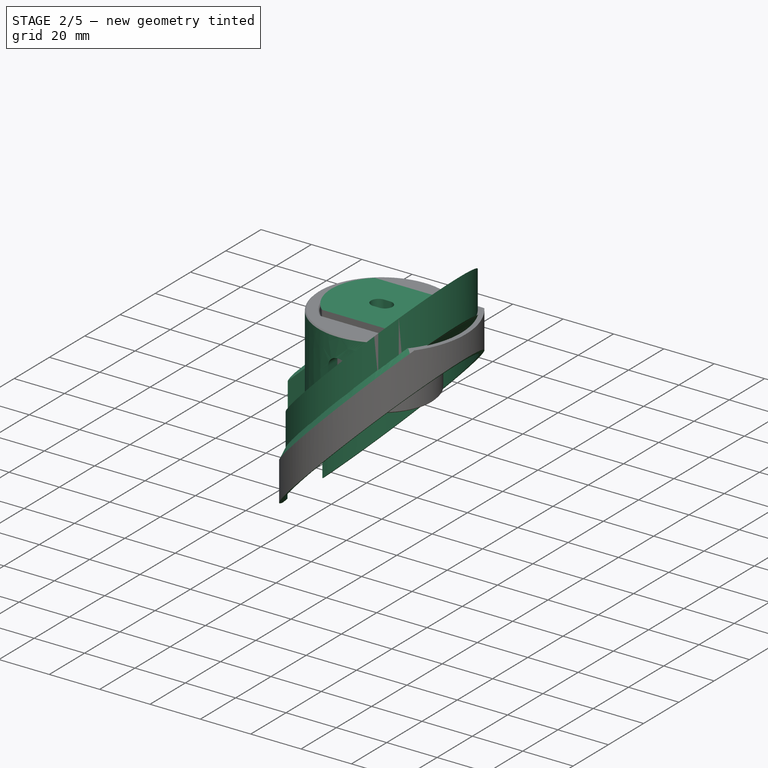
[diagram: stage 2 of 5 — iso view after this stage's code; geometry added in this stage tinted green]
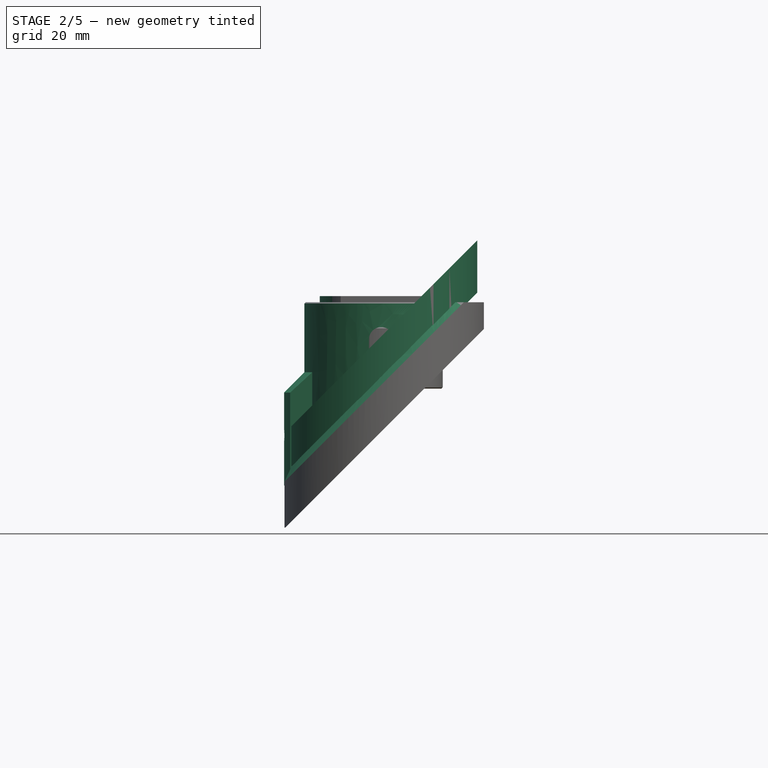
[diagram: stage 2 of 5 — front view after this stage's code; geometry added in this stage tinted green]
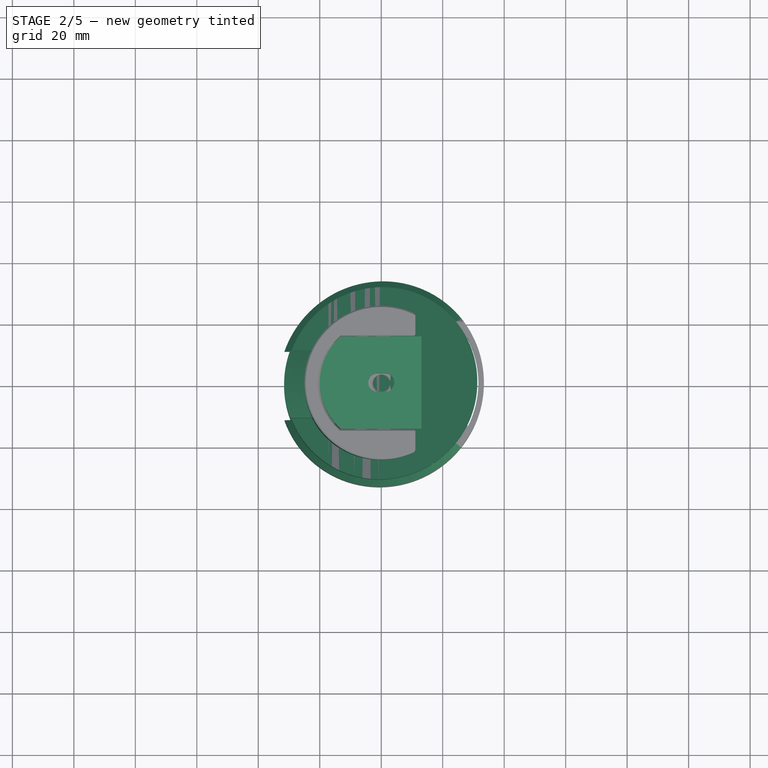
[diagram: stage 2 of 5 — top view after this stage's code; geometry added in this stage tinted green]
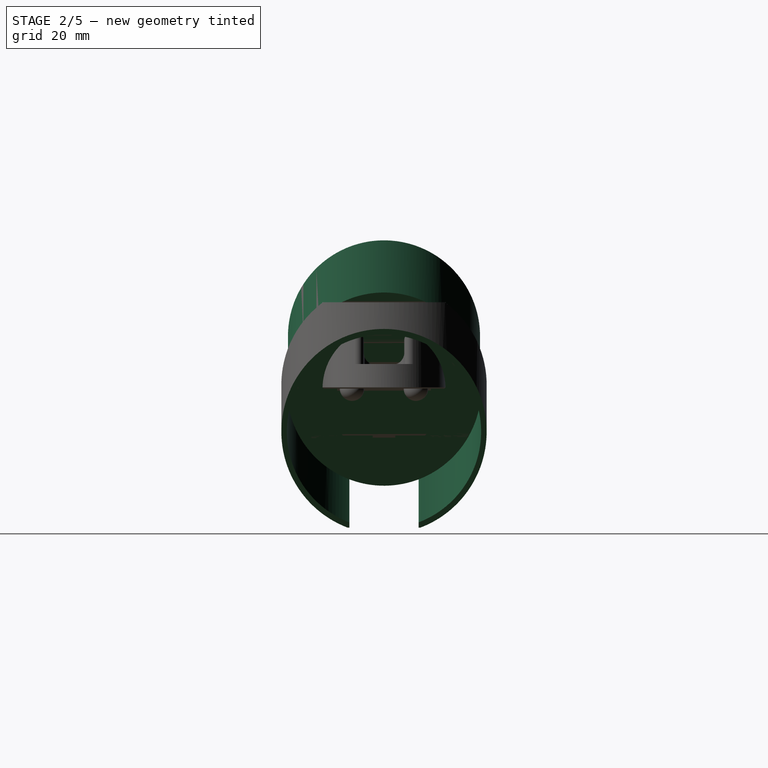
[diagram: stage 2 of 5 — right view after this stage's code; geometry added in this stage tinted green]
FEATURE [PartDesign::AdditiveCylinder] Cylinder004  label="SecondaryMirror_Cylinder"
  Angle = 360
  AttacherType = Attacher::AttachEngine3D
  AttachmentOffset = pos=(0,0,-31.25) rot=(0,0,1;0rad)
  FirstAngle = 0
  Height = 79.4706
  MapMode = 5
  Placement = pos=(0,0,-31.25) rot=(0,0,1;0rad)
  Radius = 31.25
  SecondAngle = 0
  Support = -> [XY_Plane054]
  expr: .AttachmentOffset.Base.z = -<<Common>>#<<Parameters>>.sec_mdia / 2
  expr: Height = <<Common>>#<<Parameters>>.sec_mdia + <<Common>>#<<Parameters>>.sec_mthick * sqrt(2)
  expr: Radius = <<Common>>#<<Parameters>>.sec_mdia / 2
FEATURE [Sketcher::SketchObject] Sketch060  label="SecondaryMirror_CutSketch"
  FullyConstrained = true
  MapMode = 5
  Placement = pos=(0,0,0) rot=(1,0,0;1.5708rad)
  Support = -> [XZ_Plane054]
  expr: Constraints[13] = <<Common>>#<<Parameters>>.sec_mdia + <<Common>>#<<Parameters>>.sec_mthick
  expr: Constraints[18] = <<Common>>#<<Parameters>>.sec_mthick
  sketch-geometry (7):
    g0: LineSegment StartX=-37.25 StartY=-37.25 StartZ=0 EndX=37.25 EndY=37.25 EndZ=0
    g1: LineSegment StartX=37.25 StartY=37.25 StartZ=0 EndX=37.25 EndY=-37.25 EndZ=0
    g2: LineSegment StartX=37.25 StartY=-37.25 StartZ=0 EndX=-37.25 EndY=-37.25 EndZ=0
    g3: LineSegment StartX=-37.25 StartY=-20.2794 StartZ=0 EndX=37.25 EndY=54.2206 EndZ=0
    g4: LineSegment StartX=37.25 StartY=54.2206 StartZ=0 EndX=-37.25 EndY=54.2206 EndZ=0
    g5: LineSegment StartX=-37.25 StartY=54.2206 StartZ=0 EndX=-37.25 EndY=-20.2794 EndZ=0
    g6: LineSegment StartX=0 StartY=0 StartZ=0 EndX=-8.48528 EndY=8.48528 EndZ=0
  constraints (19):
    c: Coincident(g1,g0)
    c: Vertical(g1)
    c: Coincident(g2,g1)
    c: Coincident(g4,g3)
    c: Coincident(g5,g3)
    c: PointOnObject(g-1,g0)
    c: Coincident(g0,g2)
    c: Equal(g2,g1)
    c: Equal(g5,g4)
    c: Coincident(g5,g4)
    c: Vertical(g5)
    c: Equal(g4,g2)
    c: Symmetric(g0,g1,g-2)
    c: DistanceX(g2,g2) = 74.5
    c: Symmetric(g4,g3,g-2)
    c: Coincident(g6,g-1)
    c: PointOnObject(g6,g3)
    c: Perpendicular(g0,g6)
    c: Distance(g6) = 12
FEATURE [PartDesign::Pocket] Pocket016  label="SecondaryMirror_Pocket"
  BaseFeature = -> Cylinder004
  Direction = (0,1,2e-16)
  Length = 5
  Length2 = 100
  Midplane = true
  Placement = pos=(0,0,-31.25) rot=(0,0,1;0rad)
  Profile = -> Sketch060
  Type = 1
FEATURE [PartDesign::CoordinateSystem] Local_CS122  label="LCS_SecondaryFace"
  AttacherType = Attacher::AttachEngine3D
  MapMode = 5
  Support = -> [XY_Plane054]
FEATURE [Sketcher::SketchObject] Sketch061  label="MirrorPad_Base_Sketch"
  FullyConstrained = true
  MapMode = 5
  Placement = pos=(0,0,0) rot=(1,0,0;1.5708rad)
  Support = -> [XZ_Plane055]
  expr: Constraints[10] = <<Common>>#<<Parameters>>.sec_padheight
  expr: Constraints[13] = <<Common>>#<<Parameters>>.sec_mtvar
  expr: Constraints[15] = <<Common>>#<<Parameters>>.sec_hubdia / 2
  expr: Constraints[17] = <<Common>>#<<Parameters>>.sec_hubdia * 0.75 / 2
  expr: Constraints[5] = <<Common>>#<<Parameters>>.sec_fillet
  sketch-geometry (6):
    g0: LineSegment StartX=-18 StartY=-14 StartZ=0 EndX=15 EndY=19 EndZ=0
    g1: LineSegment StartX=-20 StartY=30.0779 StartZ=0 EndX=-20 EndY=-14 EndZ=0
    g2: LineSegment StartX=-20 StartY=-14 StartZ=0 EndX=-18 EndY=-14 EndZ=0
    g3: LineSegment StartX=15 StartY=19 StartZ=0 EndX=15 EndY=30.0779 EndZ=0
    g4: LineSegment StartX=15 StartY=30.0779 StartZ=0 EndX=-20 EndY=30.0779 EndZ=0
    g5: GeomPoint X=0 Y=4 Z=0
  constraints (18):
    c: Angle(g-1,g0) = 0.785398
    c: Vertical(g1)
    c: Coincident(g2,g1)
    c: Coincident(g2,g0)
    c: Horizontal(g2)
    c: DistanceX(g2,g2) = 2
    c: Coincident(g3,g0)
    c: Vertical(g3)
    c: Coincident(g4,g3)
    c: Coincident(g1,g4)
    c: DistanceY(g1) = 30.0779
    c: PointOnObject(g5,g0)
    c: PointOnObject(g5,g-2)
    c: DistanceY(g-1,g5) = 4
    c: DistanceY(g3,g3) = 11.0779
    c: DistanceX(g1,g-1) = 20
    c: Horizontal(g4)
    c: DistanceX(g-1,g3) = 15
FEATURE [PartDesign::Pad] Pad  label="MirrorPad_Base"
  Direction = (0,-1,-2e-16)
  Length = 30
  Length2 = 100
  Midplane = true
  Placement = pos=(0,0,0) rot=(1,0,0;1.5708rad)
  Profile = -> Sketch061
  Type = 0
  expr: Length = 2 * ceil(<<Common>>#<<Parameters>>.sec_cpointpos * cos(30)) + <<Common>>#<<Parameters>>.sec_tiltball
FEATURE [PartDesign::CoordinateSystem] Local_CS003  label="LCS_TiltPlateAttachment"
  AttacherType = Attacher::AttachEngine3D
  AttachmentOffset = pos=(0,0,33.201) rot=(0,0,1;0rad)
  MapMode = 5
  Placement = pos=(0,0,33.201) rot=(0,0,1;0rad)
  Support = -> [XY_Plane055]
  expr: .AttachmentOffset.Base.z = <<Common>>#<<Parameters>>.sec_padheight + <<Common>>#<<Parameters>>.sec_tiltspacing
FEATURE [PartDesign::CoordinateSystem] Local_CS124  label="LCS_TiltPlate_Bottom"
  AttacherType = Attacher::AttachEngine3D
  MapMode = 5
  Support = -> [DatumPlane003]
FEATURE [PartDesign::CoordinateSystem] Local_CS125  label="LCS_TiltPlate_Top"
  AttacherType = Attacher::AttachEngine3D
  MapMode = 5
  Placement = pos=(0,0,8) rot=(0,0,1;0rad)
  Support = -> [DatumPlane002]
FEATURE [PartDesign::CoordinateSystem] Local_CS126  label="LCS_Nut_Tilt"
  AttacherType = Attacher::AttachEngine3D
  MapMode = 11
  Placement = pos=(-12,0,4) rot=(0,0,1;1.5708rad)
  Support = -> [Pocket005]
FEATURE [PartDesign::CoordinateSystem] Local_CS127  label="LCS_Nut_Zrot"
  AttacherType = Attacher::AttachEngine3D
  MapMode = 11
  Placement = pos=(12,0,4) rot=(0,0,1;1.5708rad)
  Support = -> [Pocket005]
FEATURE [PartDesign::CoordinateSystem] Local_CS053  label="LCS_SecondaryPad"
  AttacherType = Attacher::AttachEngine3D
  MapMode = 5
  Support = -> [XY_Plane055]
FEATURE [PartDesign::CoordinateSystem] Local_CS055  label="LCS_Hub_Upper"
  AttacherType = Attacher::AttachEngine3D
  AttachmentOffset = pos=(0,0,20) rot=(0,0,1;1.5708rad)
  MapMode = 5
  Placement = pos=(0,0,20) rot=(0,0,1;1.5708rad)
  Support = -> [XY_Plane058]
  expr: .AttachmentOffset.Base.z = <<Common>>#<<Parameters>>.sec_stalkheight
FEATURE [PartDesign::CoordinateSystem] Local_CS136  label="LCS_BoltZrot"
  AttacherType = Attacher::AttachEngine3D
  AttachmentOffset = pos=(12,0,8) rot=(0,0,1;0rad)
  MapMode = 5
  Placement = pos=(12,0,8) rot=(0,0,1;0rad)
  Support = -> [XY_Plane058]
  expr: .AttachmentOffset.Base.x = <<Common>>#<<Parameters>>.sec_cpointpos
  expr: .AttachmentOffset.Base.z = <<Common>>#<<Parameters>>.sec_pthick
FEATURE [PartDesign::CoordinateSystem] Local_CS060  label="LCS_BoltTilt"
  AttacherType = Attacher::AttachEngine3D
  AttachmentOffset = pos=(-12,0,8) rot=(0,0,1;0rad)
  MapMode = 5
  Placement = pos=(-12,0,8) rot=(0,0,1;0rad)
  Support = -> [XY_Plane058]
  expr: .AttachmentOffset.Base.x = -<<Common>>#<<Parameters>>.sec_cpointpos
  expr: .AttachmentOffset.Base.z = <<Common>>#<<Parameters>>.sec_pthick
FEATURE [PartDesign::CoordinateSystem] Local_CS062  label="LCS_HubLower"
  AttacherType = Attacher::AttachEngine3D
  MapMode = 5
  Support = -> [XY_Plane058]
FEATURE [PartDesign::Plane] DatumPlane019  label="UpperHub_DatumPlane_Top"
  AttachmentOffset = pos=(0,0,20) rot=(0,0,1;0rad)
  Length = 60
  MapMode = 5
  Placement = pos=(0,0,20) rot=(0,0,1;0rad)
  ResizeMode = 0
  Support = -> [XY_Plane058]
  Width = 60
  expr: .AttachmentOffset.Base.z = <<Common>>#<<Parameters>>.sec_stalkheight
FEATURE [PartDesign::CoordinateSystem] Local_CS140  label="LCS_SecondaryOffset"
  AttacherType = Attacher::AttachEngine3D
  AttachmentOffset = pos=(3.125,0,0) rot=(0,0,1;0rad)
  MapMode = 5
  Placement = pos=(3.125,0,0) rot=(0,0,1;0rad)
  Support = -> [XY_Plane054]
  expr: .AttachmentOffset.Base.x = <<Common>>#<<Parameters>>.sec_offset_x
FEATURE [PartDesign::CoordinateSystem] Local_CS141  label="LCS_SecPadDatum"
  AttacherType = Attacher::AttachEngine3D
  AttachmentOffset = pos=(0,0,19.799) rot=(0,0,1;0rad)
  MapMode = 5
  Placement = pos=(0,0,19.799) rot=(0,0,1;0rad)
  Support = -> [XY_Plane054]
  expr: .AttachmentOffset.Base.z = (<<Common>>#<<Parameters>>.sec_mthick + <<Common>>#<<Parameters>>.sec_mfloat) * sqrt(2)
FEATURE [PartDesign::Body] Body022002  label="SecondaryMirror"
  Group = -> [Cylinder004,Sketch060,Pocket016,Local_CS122,Local_CS140,Local_CS141]
  Origin = -> Origin054
  Placement = pos=(-3.125,0,835) rot=(0,0,1;0rad)
  Tip = -> Pocket016
  expr: .Placement.Base.x = -<<Common>>#<<Parameters>>.sec_offset_x
  expr: .Placement.Base.z = <<Common>>#<<Parameters>>.mirror_distance
FEATURE [Sketcher::SketchObject] Sketch112  label="UpperHub_MasterSketch"
  FullyConstrained = true
  MapMode = 5
  Support = -> [XY_Plane058]
  expr: Constraints[1] = <<Common>>#<<Parameters>>.pri_poledia + <<Common>>#<<Parameters>>.sec_fthick * 2
  expr: Constraints[21] = <<Common>>#<<Parameters>>.sec_sidebolt * 1.5
  expr: Constraints[23] = <<Common>>#<<Parameters>>.sec_hubdia
  expr: Constraints[26] = <<Common>>#<<Parameters>>.sec_poledia + <<Common>>#<<Parameters>>.sec_clamptol
  expr: Constraints[29] = <<Common>>#<<Parameters>>.sec_collbolt
  expr: Constraints[32] = <<Common>>#<<Parameters>>.sec_cpointpos
  expr: Constraints[33] = <<Common>>#<<Parameters>>.sec_poledia / 2 - <<Common>>#<<Parameters>>.sec_spthick
  expr: Constraints[35] = <<Common>>#<<Parameters>>.bolt_y - <<Common>>#<<Parameters>>.pri_poledia / 2
  expr: Constraints[3] = <<Common>>#<<Parameters>>.bolt_x + <<Common>>#<<Parameters>>.sec_offset_x
  expr: Constraints[4] = <<Common>>#<<Parameters>>.bolt_y
  expr: Constraints[61] = -<<Common>>#<<Parameters>>.bolt_x + <<Common>>#<<Parameters>>.sec_offset_x
  expr: Constraints[64] = <<Common>>#<<Parameters>>.sec_intloop
  expr: Constraints[65] = <<Common>>#<<Parameters>>.sec_offset_x
  expr: Constraints[70] = <<Common>>#<<Parameters>>.sec_toparc_angle
  expr: Constraints[79] = <<Common>>#<<Parameters>>.sec_zrotmax
  expr: Constraints[87] = <<Common>>#<<Parameters>>.sec_collbolt
  expr: Constraints[88] = <<Common>>#<<Parameters>>.sec_fillet
  sketch-geometry (34):
    g0: Circle CenterX=116.125 CenterY=113 CenterZ=0 NormalX=0 NormalY=0 NormalZ=1 AngleXU=0 Radius=13
    g1: Circle CenterX=116.125 CenterY=-113 CenterZ=0 NormalX=0 NormalY=0 NormalZ=1 AngleXU=0 Radius=13
    g2: LineSegment StartX=-23.7451 StartY=0 StartZ=0 EndX=102.255 EndY=126 EndZ=0
    g3: LineSegment StartX=-23.7451 StartY=0 StartZ=0 EndX=102.255 EndY=-126 EndZ=0
    g4: LineSegment StartX=116.125 StartY=126 StartZ=0 EndX=102.255 EndY=126 EndZ=0
    g5: LineSegment StartX=116.125 StartY=-126 StartZ=0 EndX=102.255 EndY=-126 EndZ=0
    g6: LineSegment StartX=102.69 StartY=126.435 StartZ=0 EndX=116.125 EndY=113 EndZ=0
    g7: GeomPoint X=106.933 Y=122.192 Z=0
    g8: Circle CenterX=0 CenterY=0 CenterZ=0 NormalX=0 NormalY=0 NormalZ=1 AngleXU=0 Radius=20
    g9: Circle CenterX=116.125 CenterY=113 CenterZ=0 NormalX=0 NormalY=0 NormalZ=1 AngleXU=0 Radius=9.35
    g10: Circle CenterX=116.125 CenterY=-113 CenterZ=0 NormalX=0 NormalY=0 NormalZ=1 AngleXU=0 Radius=9.35
    g11: Circle CenterX=-12 CenterY=0 CenterZ=0 NormalX=0 NormalY=0 NormalZ=1 AngleXU=0 Radius=2
    g12: Circle CenterX=12 CenterY=0 CenterZ=0 NormalX=0 NormalY=0 NormalZ=1 AngleXU=0 Radius=2
    g13: LineSegment StartX=124.125 StartY=103 StartZ=0 EndX=124.125 EndY=-103 EndZ=0
    g14: LineSegment StartX=103.125 StartY=113 StartZ=0 EndX=129.125 EndY=113 EndZ=0
    g15: LineSegment StartX=103.125 StartY=-113 StartZ=0 EndX=129.125 EndY=-113 EndZ=0
    g16: LineSegment StartX=103.125 StartY=113 StartZ=0 EndX=103.125 EndY=-113 EndZ=0
    g17: LineSegment StartX=129.125 StartY=-113 StartZ=0 EndX=129.125 EndY=113 EndZ=0
    g18: LineSegment StartX=-4.18858 StartY=19.5565 StartZ=0 EndX=-4.18858 EndY=-19.5565 EndZ=0
    g19: GeomPoint X=116.125 Y=139.87 Z=0
    g20: LineSegment StartX=116.125 StartY=113 StartZ=0 EndX=116.125 EndY=139.87 EndZ=0
    g21: Circle CenterX=-109.875 CenterY=0 CenterZ=0 NormalX=0 NormalY=0 NormalZ=1 AngleXU=0 Radius=9.35
    g22: Circle CenterX=-109.875 CenterY=0 CenterZ=0 NormalX=0 NormalY=0 NormalZ=1 AngleXU=0 Radius=13
    g23: Circle CenterX=3.125 CenterY=-3.4e-15 CenterZ=0 NormalX=0 NormalY=0 NormalZ=1 AngleXU=0 Radius=115
    g24: LineSegment StartX=3.125 StartY=-3.4e-15 StartZ=0 EndX=-62.8363 EndY=94.2025 EndZ=0
    g25: LineSegment StartX=3.125 StartY=-3.4e-15 StartZ=0 EndX=-62.8363 EndY=-94.2025 EndZ=0
    g26: ArcOfCircle CenterX=0 CenterY=0 CenterZ=0 NormalX=0 NormalY=0 NormalZ=1 AngleXU=0 Radius=8.05894 StartAngle=2.92343 EndAngle=3.35976
    g27: ArcOfCircle CenterX=3.125 CenterY=-3.4e-15 CenterZ=0 NormalX=0 NormalY=0 NormalZ=1 AngleXU=0 Radius=15.125 StartAngle=2.96816 EndAngle=3.31502
    g28: LineSegment StartX=-11.7731 StartY=2.61003 StartZ=0 EndX=0 EndY=0 EndZ=0
    g29: LineSegment StartX=-11.7731 StartY=-2.61003 StartZ=0 EndX=0 EndY=0 EndZ=0
    g30: ArcOfCircle CenterX=-11.7731 CenterY=2.61003 CenterZ=0 NormalX=0 NormalY=0 NormalZ=1 AngleXU=0 Radius=4 StartAngle=6.06502 EndAngle=7.94739
    g31: ArcOfCircle CenterX=-11.7731 CenterY=-2.61003 CenterZ=0 NormalX=0 NormalY=0 NormalZ=1 AngleXU=0 Radius=4 StartAngle=4.61898 EndAngle=6.50135
    g32: ArcOfCircle CenterX=-12.3328 CenterY=8.58387 CenterZ=0 NormalX=0 NormalY=0 NormalZ=1 AngleXU=0 Radius=2 StartAngle=2.35619 EndAngle=4.8058
    g33: ArcOfCircle CenterX=-12.3328 CenterY=-8.58387 CenterZ=0 NormalX=0 NormalY=0 NormalZ=1 AngleXU=0 Radius=2 StartAngle=1.47738 EndAngle=3.92699
  constraints (94):
    c: Equal(g1,g0)
    c: Diameter(g0) = 26
    c: Symmetric(g1,g0,g-1)
    c: DistanceX(g0) = 116.125
    c: DistanceY(g0) = 113
    c: PointOnObject(g2,g-1)
    c: Coincident(g3,g2)
    c: Perpendicular(g3,g2)
    c: PointOnObject(g4,g0)
    c: Coincident(g4,g2)
    c: Horizontal(g4)
    c: Tangent(g4,g0)
    c: PointOnObject(g5,g1)
    c: Horizontal(g5)
    c: Coincident(g5,g3)
    c: Symmetric(g3,g2,g-1)
    c: PointOnObject(g6,g2)
    c: Coincident(g6,g0)
    c: Perpendicular(g2,g6)
    c: PointOnObject(g7,g6)
    c: PointOnObject(g7,g0)
    c: Distance(g7,g6) = 6
    c: Coincident(g8,g-1)
    c: Diameter(g8) = 40
    c: Coincident(g9,g0)
    c: Coincident(g10,g1)
    c: Diameter(g10) = 18.7
    c: Equal(g10,g9)
    c: PointOnObject(g11,g-1)
    c: Diameter(g11) = 4
    c: Equal(g11,g12)
    c: Symmetric(g11,g12,g-2)
    c: DistanceX(g12) = 12
    c: DistanceX(g6,g13) = 8
    c: Symmetric(g13,g13,g-1)
    c: DistanceY(g13) = 103
    c: PointOnObject(g14,g0)
    c: PointOnObject(g14,g0)
    c: Horizontal(g14)
    c: PointOnObject(g15,g1)
    c: Horizontal(g15)
    c: PointOnObject(g1,g15)
    c: PointOnObject(g6,g14)
    c: Coincident(g16,g14)
    c: Coincident(g16,g15)
    c: Vertical(g16)
    c: Coincident(g17,g15)
    c: Coincident(g17,g14)
    c: PointOnObject(g18,g2)
    c: PointOnObject(g18,g3)
    c: Vertical(g18)
    c: PointOnObject(g18,g8)
    c: Distance(g2,g6) = 0.615224
    c: DistanceX(g2) = -23.7451
    c: PointOnObject(g19,g2)
    c: Coincident(g20,g0)
    c: Coincident(g20,g19)
    c: Vertical(g20)
    c: DistanceY(g19) = 139.87
    c: PointOnObject(g21,g-1)
    c: Coincident(g22,g21)
    c: DistanceX(g21) = -109.875
    c: Equal(g21,g10)
    c: Equal(g22,g1)
    c: Radius(g23) = 115
    c: DistanceX(g-1,g23) = 3.125
    c: Coincident(g24,g23)
    c: PointOnObject(g24,g23)
    c: Coincident(g25,g23)
    c: Symmetric(g24,g25,g-1)
    c: Angle(g24,g-1) = 0.959931
    c: DistanceY(g4) = 126
    c: Coincident(g26,g8)
    c: Coincident(g27,g23)
    c: Coincident(g28,g27)
    c: Coincident(g28,g8)
    c: Coincident(g29,g27)
    c: Coincident(g29,g8)
    c: Symmetric(g27,g27,g-1)
    c: Angle(g28,g29) = 0.436332
    c: Coincident(g30,g26)
    c: Coincident(g31,g27)
    c: Coincident(g31,g26)
    c: PointOnObject(g26,g28)
    c: PointOnObject(g26,g29)
    c: Coincident(g30,g27)
    c: PointOnObject(g11,g27)
    c: Radius(g30) = 4
    c: Radius(g32) = 2
    c: Tangent(g33,g3) = -1.5708
    c: Tangent(g33,g31) = 1.5708
    c: Tangent(g32,g2) = 1.5708
    c: Tangent(g32,g30) = 1.5708
    c: Equal(g33,g32)
FEATURE [PartDesign::Plane] DatumPlane031  label="MirrorPad_DatumPlane_Cavity"
  AttachmentOffset = pos=(0,0,-4) rot=(0,0,1;0rad)
  Length = 60
  MapMode = 2
  Placement = pos=(0,0,26.0779) rot=(0,0,1;0rad)
  ResizeMode = 0
  Support = -> [DatumPlane001]
  Width = 60
  expr: .AttachmentOffset.Base.z = -<<Common>>#<<Parameters>>.sec_pthick / 2
FEATURE [Sketcher::SketchObject] Sketch001  label="MirrorPad_Cavity_Sketch"
  FullyConstrained = true
  MapMode = 5
  Placement = pos=(0,0,26.0779) rot=(0,0,1;0rad)
  Support = -> [DatumPlane031]
  sketch-geometry (5):
    g0: LineSegment StartX=-4.2 StartY=4.2 StartZ=0 EndX=4.2 EndY=4.2 EndZ=0
    g1: LineSegment StartX=-4.2 StartY=-4.2 StartZ=0 EndX=4.2 EndY=-4.2 EndZ=0
    g2: ArcOfCircle CenterX=4.2 CenterY=0 CenterZ=0 NormalX=0 NormalY=0 NormalZ=1 AngleXU=0 Radius=4.2 StartAngle=4.71239 EndAngle=7.85398
    g3: ArcOfCircle CenterX=-4.2 CenterY=0 CenterZ=0 NormalX=0 NormalY=0 NormalZ=1 AngleXU=0 Radius=4.2 StartAngle=1.5708 EndAngle=4.71239
    g4: LineSegment StartX=-4.2 StartY=4.2 StartZ=0 EndX=-4.2 EndY=-4.2 EndZ=0
  constraints (15):
    c: Horizontal(g1)
    c: Equal(g1,g0)
    c: Coincident(g2,g0)
    c: Coincident(g2,g1)
    c: Coincident(g3,g0)
    c: Coincident(g3,g1)
    c: DistanceY(g1,g0) = 8.4
    c: Symmetric(g0,g0,g-2)
    c: Diameter(g2) = 8.4
    c: Equal(g2,g3)
    c: DistanceX(g0,g0) = 8.4
    c: PointOnObject(g2,g-1)
    c: Coincident(g4,g0)
    c: Coincident(g4,g1)
    c: Vertical(g4)
FEATURE [Sketcher::SketchObject] Sketch062  label="MirrorPad_CHole_Sketch"
  FullyConstrained = true
  MapMode = 5
  Placement = pos=(0,0,26.0779) rot=(0,0,1;0rad)
  Support = -> [DatumPlane031]
  expr: Constraints[6] = <<Common>>#<<Parameters>>.sec_centralbolt * 1.2
  expr: Constraints[7] = <<Common>>#<<Parameters>>.sec_centralbolt / 2
  sketch-geometry (4):
    g0: ArcOfCircle CenterX=-1.25 CenterY=0 CenterZ=0 NormalX=0 NormalY=0 NormalZ=1 AngleXU=0 Radius=3 StartAngle=1.5708 EndAngle=4.71239
    g1: ArcOfCircle CenterX=1.25 CenterY=0 CenterZ=0 NormalX=0 NormalY=0 NormalZ=1 AngleXU=0 Radius=3 StartAngle=4.71239 EndAngle=7.85398
    g2: LineSegment StartX=-1.25 StartY=-3 StartZ=0 EndX=1.25 EndY=-3 EndZ=0
    g3: LineSegment StartX=-1.25 StartY=3 StartZ=0 EndX=1.25 EndY=3 EndZ=0
  constraints (9):
    c: Tangent(g0,g3) = 1.5708
    c: Tangent(g0,g2) = -1.5708
    c: Tangent(g2,g1) = -1.5708
    c: Tangent(g3,g1) = 1.5708
    c: Horizontal(g2)
    c: PointOnObject(g0,g-1)
    c: Diameter(g0) = 6
    c: DistanceX(g3,g3) = 2.5
    c: Symmetric(g0,g1,g-2)
FEATURE [PartDesign::CoordinateSystem] Local_CS123  label="LCS_HubPoint"
  AttacherType = Attacher::AttachEngine3D
  MapMode = 5
  Placement = pos=(0,0,26.0779) rot=(0,0,1;0rad)
  Support = -> [DatumPlane031]
  expr: .AttachmentOffset.Base.z = 0
FEATURE [PartDesign::Pocket] Pocket049  label="MirrorPad_Cavity"
  BaseFeature = -> Pad
  Direction = (0,0,-1)
  Length = 5
  Length2 = 100
  Placement = pos=(0,0,0) rot=(1,0,0;1.5708rad)
  Profile = -> Sketch001
  Type = 1
FEATURE [PartDesign::Pocket] Pocket050  label="MirrorPad_CentralHole"
  BaseFeature = -> Pocket049
  Direction = (0,0,-1)
  Length = 5
  Length2 = 100
  Placement = pos=(0,0,0) rot=(1,0,0;1.5708rad)
  Profile = -> Sketch062
  Reversed = true
  Type = 1
FEATURE [Sketcher::SketchObject] Sketch118  label="UpperHub_Main_LowerNut_Sketch"
  FullyConstrained = true
  MapMode = 5
  Support = -> [XY_Plane058]
  expr: Constraints[61] = <<Common>>#<<Parameters>>.sec_cpointpos
  sketch-geometry (25):
    g0: LineSegment StartX=-9.92154 StartY=-3.6 StartZ=0 EndX=-7.84308 EndY=8.13e-14 EndZ=0
    g1: LineSegment StartX=-7.84308 StartY=8.13e-14 StartZ=0 EndX=-9.92154 EndY=3.6 EndZ=0
    g2: LineSegment StartX=-9.92154 StartY=3.6 StartZ=0 EndX=-14.0785 EndY=3.6 EndZ=0
    g3: LineSegment StartX=-14.0785 StartY=3.6 StartZ=0 EndX=-16.1569 EndY=-8.17e-14 EndZ=0
    g4: LineSegment StartX=-16.1569 StartY=-8.17e-14 StartZ=0 EndX=-14.0785 EndY=-3.6 EndZ=0
    g5: LineSegment StartX=-14.0785 StartY=-3.6 StartZ=0 EndX=-9.92154 EndY=-3.6 EndZ=0
    g6: Circle CenterX=-12 CenterY=0 CenterZ=0 NormalX=0 NormalY=0 NormalZ=1 AngleXU=0 Radius=4.15692
    g7: LineSegment StartX=8.07846 StartY=6.7923 StartZ=0 EndX=10.1569 EndY=10.3923 EndZ=0
    g8: LineSegment StartX=10.1569 StartY=10.3923 StartZ=0 EndX=8.07846 EndY=13.9923 EndZ=0
    g9: LineSegment StartX=8.07846 StartY=13.9923 StartZ=0 EndX=3.92154 EndY=13.9923 EndZ=0
    g10: LineSegment StartX=3.92154 StartY=13.9923 StartZ=0 EndX=1.84308 EndY=10.3923 EndZ=0
    g11: LineSegment StartX=1.84308 StartY=10.3923 StartZ=0 EndX=3.92154 EndY=6.7923 EndZ=0
    g12: LineSegment StartX=3.92154 StartY=6.7923 StartZ=0 EndX=8.07846 EndY=6.7923 EndZ=0
    g13: Circle CenterX=6 CenterY=10.3923 CenterZ=0 NormalX=0 NormalY=0 NormalZ=1 AngleXU=0 Radius=4.15692
    g14: LineSegment StartX=8.07846 StartY=-13.9923 StartZ=0 EndX=10.1569 EndY=-10.3923 EndZ=0
    g15: LineSegment StartX=10.1569 StartY=-10.3923 StartZ=0 EndX=8.07846 EndY=-6.7923 EndZ=0
    g16: LineSegment StartX=8.07846 StartY=-6.7923 StartZ=0 EndX=3.92154 EndY=-6.7923 EndZ=0
    g17: LineSegment StartX=3.92154 StartY=-6.7923 StartZ=0 EndX=1.84308 EndY=-10.3923 EndZ=0
    g18: LineSegment StartX=1.84308 StartY=-10.3923 StartZ=0 EndX=3.92154 EndY=-13.9923 EndZ=0
    g19: LineSegment StartX=3.92154 StartY=-13.9923 StartZ=0 EndX=8.07846 EndY=-13.9923 EndZ=0
    g20: Circle CenterX=6 CenterY=-10.3923 CenterZ=0 NormalX=0 NormalY=0 NormalZ=1 AngleXU=0 Radius=4.15692
    g21: LineSegment StartX=-12 StartY=0 StartZ=0 EndX=6 EndY=10.3923 EndZ=0
    g22: LineSegment StartX=6 StartY=10.3923 StartZ=0 EndX=6 EndY=-10.3923 EndZ=0
    g23: LineSegment StartX=6 StartY=-10.3923 StartZ=0 EndX=-12 EndY=0 EndZ=0
    g24: Circle CenterX=0 CenterY=0 CenterZ=0 NormalX=0 NormalY=0 NormalZ=1 AngleXU=0 Radius=12
  constraints (59):
    c: Coincident(g0,g1)
    c: Coincident(g1,g2)
    c: Coincident(g2,g3)
    c: Coincident(g3,g4)
    c: Coincident(g4,g5)
    c: Coincident(g5,g0)
    c: Equal(g0, g1-g5) x5
    c: PointOnObject(g0,g6)
    c: PointOnObject(g1,g6)
    c: PointOnObject(g2,g6)
    c: PointOnObject(g3,g6)
    c: PointOnObject(g4,g6)
    c: PointOnObject(g5,g6)
    c: PointOnObject(g6,g-1)
    c: Coincident(g7,g8)
    c: Coincident(g8,g9)
    c: Coincident(g9,g10)
    c: Coincident(g10,g11)
    c: Coincident(g11,g12)
    c: Coincident(g12,g7)
    c: Equal(g7, g8-g12) x5
    c: PointOnObject(g7,g13)
    c: PointOnObject(g8,g13)
    c: PointOnObject(g9,g13)
    c: PointOnObject(g10,g13)
    c: PointOnObject(g11,g13)
    c: PointOnObject(g12,g13)
    c: Coincident(g14,g15)
    c: Coincident(g15,g16)
    c: Coincident(g16,g17)
    c: Coincident(g17,g18)
    c: Coincident(g18,g19)
    c: Coincident(g19,g14)
    c: Equal(g14, g15-g19) x5
    c: PointOnObject(g14,g20)
    c: PointOnObject(g15,g20)
    c: PointOnObject(g16,g20)
    c: PointOnObject(g17,g20)
    c: PointOnObject(g18,g20)
    c: PointOnObject(g19,g20)
    c: Coincident(g21,g6)
    c: Coincident(g21,g13)
    c: Coincident(g22,g21)
    c: Coincident(g22,g20)
    c: Vertical(g22)
    c: Coincident(g23,g22)
    c: Coincident(g23,g21)
    c: Equal(g21,g22)
    c: Equal(g22,g23)
    c: DistanceX(g6,g-1) = 12
    c: Equal(g6,g13)
    c: Equal(g13,g20)
    c: Perpendicular(g21,g1)
    c: Perpendicular(g22,g12)
    c: Perpendicular(g23,g17)
    c: DistanceY(g0,g1) = 7.2
    c: Coincident(g24,g-1)
    c: PointOnObject(g6,g24)
    c: PointOnObject(g13,g24)
FEATURE [Sketcher::SketchObject] Sketch119  label="UpperHub_NutSupport_Sketch"
  AttachmentOffset = pos=(0,0,3.4) rot=(0,0,1;0rad)
  ExternalGeometry = -> [Sketch118]
  FullyConstrained = true
  MapMode = 5
  Placement = pos=(0,0,3.4) rot=(0,0,1;0rad)
  Support = -> [XY_Plane058]
  expr: Constraints[1] = <<Common>>#<<Parameters>>.sec_cpointpos
  expr: Constraints[51] = <<Common>>#<<Parameters>>.sec_collbolt * 1.1
  sketch-geometry (34):
    g0: Circle CenterX=0 CenterY=0 CenterZ=0 NormalX=0 NormalY=0 NormalZ=1 AngleXU=0 Radius=12
    g1: LineSegment StartX=-13.8354 StartY=3.6 StartZ=0 EndX=-7.96462 EndY=0.210512 EndZ=0
    g2: LineSegment StartX=-14.2 StartY=3.38949 StartZ=0 EndX=-14.2 EndY=-3.38949 EndZ=0
    g3: LineSegment StartX=-13.8354 StartY=-3.6 StartZ=0 EndX=-7.96462 EndY=-0.210512 EndZ=0
    g4: LineSegment StartX=3.8 StartY=13.7818 StartZ=0 EndX=3.8 EndY=7.00282 EndZ=0
    g5: LineSegment StartX=4.16462 StartY=13.9923 StartZ=0 EndX=10.0354 EndY=10.6028 EndZ=0
    g6: LineSegment StartX=4.16461 StartY=6.7923 StartZ=0 EndX=10.0354 EndY=10.1818 EndZ=0
    g7: LineSegment StartX=3.8 StartY=-7.00282 StartZ=0 EndX=3.8 EndY=-13.7818 EndZ=0
    g8: LineSegment StartX=4.16464 StartY=-13.9923 StartZ=0 EndX=10.0354 EndY=-10.6028 EndZ=0
    g9: LineSegment StartX=4.16462 StartY=-6.7923 StartZ=0 EndX=10.0354 EndY=-10.1818 EndZ=0
    g10: LineSegment StartX=-14.2 StartY=3.38949 StartZ=0 EndX=-14.0785 EndY=3.6 EndZ=0
    g11: LineSegment StartX=-14.0785 StartY=3.6 StartZ=0 EndX=-13.8354 EndY=3.6 EndZ=0
    g12: LineSegment StartX=-7.96462 StartY=0.210512 StartZ=0 EndX=-7.84308 EndY=8.13e-14 EndZ=0
    g13: LineSegment StartX=-7.84308 StartY=8.13e-14 StartZ=0 EndX=-7.96462 EndY=-0.210512 EndZ=0
    g14: LineSegment StartX=-13.8354 StartY=-3.6 StartZ=0 EndX=-14.0785 EndY=-3.6 EndZ=0
    g15: LineSegment StartX=-14.0785 StartY=-3.6 StartZ=0 EndX=-14.2 EndY=-3.38949 EndZ=0
    g16: LineSegment StartX=3.8 StartY=13.7818 StartZ=0 EndX=3.92154 EndY=13.9923 EndZ=0
    g17: LineSegment StartX=3.92154 StartY=13.9923 StartZ=0 EndX=4.16462 EndY=13.9923 EndZ=0
    g18: LineSegment StartX=10.0354 StartY=10.6028 StartZ=0 EndX=10.1569 EndY=10.3923 EndZ=0
    g19: LineSegment StartX=10.1569 StartY=10.3923 StartZ=0 EndX=10.0354 EndY=10.1818 EndZ=0
    g20: LineSegment StartX=4.16461 StartY=6.7923 StartZ=0 EndX=3.92154 EndY=6.7923 EndZ=0
    g21: LineSegment StartX=3.92154 StartY=6.7923 StartZ=0 EndX=3.8 EndY=7.00282 EndZ=0
    g22: LineSegment StartX=3.8 StartY=-7.00282 StartZ=0 EndX=3.92154 EndY=-6.7923 EndZ=0
    g23: LineSegment StartX=3.92154 StartY=-6.7923 StartZ=0 EndX=4.16462 EndY=-6.7923 EndZ=0
    g24: LineSegment StartX=10.0354 StartY=-10.1818 StartZ=0 EndX=10.1569 EndY=-10.3923 EndZ=0
    g25: LineSegment StartX=10.1569 StartY=-10.3923 StartZ=0 EndX=10.0354 EndY=-10.6028 EndZ=0
    g26: LineSegment StartX=4.16464 StartY=-13.9923 StartZ=0 EndX=3.92154 EndY=-13.9923 EndZ=0
    g27: LineSegment StartX=3.92154 StartY=-13.9923 StartZ=0 EndX=3.8 EndY=-13.7818 EndZ=0
    g28: Circle CenterX=-12 CenterY=4e-16 CenterZ=0 NormalX=0 NormalY=0 NormalZ=1 AngleXU=0 Radius=4.15692
    g29: Circle CenterX=-12 CenterY=4e-16 CenterZ=0 NormalX=0 NormalY=0 NormalZ=1 AngleXU=0 Radius=2.2
    g30: Circle CenterX=6 CenterY=10.3923 CenterZ=0 NormalX=0 NormalY=0 NormalZ=1 AngleXU=0 Radius=4.15692
    g31: Circle CenterX=6 CenterY=-10.3923 CenterZ=0 NormalX=0 NormalY=0 NormalZ=1 AngleXU=0 Radius=4.15692
    g32: Circle CenterX=6 CenterY=10.3923 CenterZ=0 NormalX=0 NormalY=0 NormalZ=1 AngleXU=0 Radius=2.2
    g33: Circle CenterX=6 CenterY=-10.3923 CenterZ=0 NormalX=0 NormalY=0 NormalZ=1 AngleXU=0 Radius=2.2
  constraints (89):
    c: Coincident(g0,g-1)
    c: Radius(g0) = 12
    c: Vertical(g2)
    c: Vertical(g7)
    c: Equal(g2,g3)
    c: Equal(g3,g1)
    c: Vertical(g4)
    c: Equal(g4,g5)
    c: Equal(g5,g6)
    c: Equal(g7,g9)
    c: Equal(g9,g8)
    c: Coincident(g10,g2)
    c: Coincident(g11,g10)
    c: Coincident(g11,g1)
    c: Coincident(g12,g1)
    c: Coincident(g13,g12)
    c: Coincident(g13,g3)
    c: Coincident(g14,g3)
    c: Coincident(g15,g14)
    c: Coincident(g15,g2)
    c: Coincident(g16,g4)
    c: Coincident(g17,g16)
    c: Coincident(g17,g5)
    c: Coincident(g18,g5)
    c: Coincident(g19,g18)
    c: Coincident(g19,g6)
    c: Coincident(g20,g6)
    c: Coincident(g21,g20)
    c: Coincident(g21,g4)
    c: Coincident(g22,g7)
    c: Coincident(g23,g22)
    c: Coincident(g23,g9)
    c: Coincident(g24,g9)
    c: Coincident(g25,g24)
    c: Coincident(g25,g8)
    c: Coincident(g26,g8)
    c: Coincident(g27,g26)
    c: Coincident(g27,g7)
    c: PointOnObject(g2,g-3)
    c: PointOnObject(g1,g-4)
    c: Coincident(g10,g-4)
    c: PointOnObject(g1,g-5)
    c: PointOnObject(g3,g-6)
    c: PointOnObject(g3,g-7)
    c: PointOnObject(g2,g-8)
    c: Coincident(g14,g-8)
    c: Coincident(g12,g-6)
    c: PointOnObject(g-5,g28)
    c: PointOnObject(g-8,g28)
    c: PointOnObject(g-7,g28)
    c: Coincident(g29,g28)
    c: Diameter(g29) = 4.4
    c: Tangent(g2,g29)
    c: Tangent(g1,g29)
    c: Tangent(g3,g29)
    c: Coincident(g32,g30)
    c: Coincident(g33,g31)
    c: Equal(g33,g32)
    c: Equal(g32,g29)
    c: PointOnObject(g5,g-10)
    c: PointOnObject(g4,g-9)
    c: PointOnObject(g5,g-11)
    c: PointOnObject(g6,g-12)
    c: PointOnObject(g6,g-13)
    c: PointOnObject(g4,g-14)
    c: Coincident(g20,g-14)
    c: Coincident(g18,g-12)
    c: Coincident(g16,g-10)
    c: PointOnObject(g9,g-16)
    c: PointOnObject(g9,g-17)
    c: PointOnObject(g8,g-18)
    c: PointOnObject(g8,g-19)
    c: PointOnObject(g7,g-20)
    c: PointOnObject(g7,g-15)
    c: Coincident(g26,g-20)
    c: Coincident(g22,g-16)
    c: Coincident(g24,g-18)
    c: PointOnObject(g16,g30)
    c: PointOnObject(g18,g30)
    c: PointOnObject(g20,g30)
    c: PointOnObject(g22,g31)
    c: PointOnObject(g24,g31)
    c: PointOnObject(g26,g31)
    c: Tangent(g4,g32)
    c: Tangent(g5,g32)
    c: Tangent(g6,g32)
    c: Tangent(g7,g33)
    c: Tangent(g9,g33)
    c: Tangent(g8,g33)
FEATURE [PartDesign::Pocket] Pocket060  label="MirrorPad_Outer"
  BaseFeature = -> Pocket050
  Direction = (0,0,-1)
  Length = 5
  Length2 = 100
  Midplane = true
  Placement = pos=(0,0,0) rot=(1,0,0;1.5708rad)
  Profile = -> Sketch005
  Type = 1
FEATURE [Sketcher::SketchObject] Sketch222  label="MirrorCap_ClipBase_Sketch"
  FullyConstrained = true
  MapMode = 5
  Placement = pos=(0,0,0) rot=(1,0,0;1.5708rad)
  Support = -> [XZ_Plane078]
  expr: Constraints[10] = <<Common>>#<<Parameters>>.sec_mthick + <<Common>>#<<Parameters>>.sec_mfloat * sqrt(2)
  expr: Constraints[12] = (<<Common>>#<<Parameters>>.sec_mdia + <<Common>>#<<Parameters>>.sec_thinwall * 2 + 1) / 2
  expr: Constraints[14] = <<Common>>#<<Parameters>>.sec_sidebolt * 3 - (<<Common>>#<<Parameters>>.sec_hubdia * 0.75 + 0.5) / 2
  expr: Constraints[15] = <<Common>>#<<Parameters>>.sec_padheight - <<Common>>#<<Parameters>>.sec_mtvar / 2 + 1
  sketch-geometry (5):
    g0: LineSegment StartX=-33.55 StartY=-3.25 StartZ=0 EndX=-25 EndY=5.3 EndZ=0
    g1: LineSegment StartX=-25 StartY=5.3 StartZ=0 EndX=-25 EndY=29.0779 EndZ=0
    g2: LineSegment StartX=-25 StartY=29.0779 StartZ=0 EndX=-33.55 EndY=29.0779 EndZ=0
    g3: LineSegment StartX=-33.55 StartY=29.0779 StartZ=0 EndX=-33.55 EndY=-3.25 EndZ=0
    g4: LineSegment StartX=-33.55 StartY=-48.3784 StartZ=0 EndX=0 EndY=-14.8284 EndZ=0
  constraints (16):
    c: Coincident(g1,g0)
    c: Vertical(g1)
    c: Coincident(g2,g1)
    c: Horizontal(g2)
    c: Coincident(g3,g2)
    c: Vertical(g3)
    c: Coincident(g0,g3)
    c: DistanceX(g1,g-1) = 25
    c: Angle(g0,g3) = 0.785398
    c: PointOnObject(g4,g-2)
    c: DistanceY(g4,g-1) = 14.8284
    c: Angle(g-2,g4) = 2.35619
    c: DistanceX(g4,g-1) = 33.55
    c: PointOnObject(g4,g3)
    c: DistanceY(g0) = -3.25
    c: DistanceY(g2) = 29.0779
FEATURE [PartDesign::Plane] DatumPlane051  label="MirrorCap_DatumPlane_Rim"
  AttachmentOffset = pos=(0,0,-14.8284) rot=(0,-1,0;0.785398rad)
  Length = 113.969
  MapMode = 5
  Placement = pos=(0,0,-14.8284) rot=(0,-1,0;0.785398rad)
  ResizeMode = 0
  Support = -> [XY_Plane078]
  Width = 82.8741
  expr: .AttachmentOffset.Base.z = -(<<Common>>#<<Parameters>>.sec_mthick + <<Common>>#<<Parameters>>.sec_mfloat * sqrt(2))
FEATURE [Sketcher::SketchObject] Sketch224  label="MirrorCap_OuterBody_Shell_Sketch"
  AttachmentOffset = pos=(19.0066,0,19.0066) rot=(0,0,1;0rad)
  FullyConstrained = true
  MapMode = 5
  Placement = pos=(-3.6e-15,0,12.051) rot=(0,-1,0;0.785398rad)
  Support = -> [DatumPlane051]
  expr: .AttachmentOffset.Base.x = (<<Common>>#<<Parameters>>.sec_mthick + <<Common>>#<<Parameters>>.sec_fthick) / sqrt(2) + <<Common>>#<<Parameters>>.sec_mdia / 2 + 0.7 / 2 + <<Common>>#<<Parameters>>.sec_thinwall - 25
  expr: .AttachmentOffset.Base.z = (<<Common>>#<<Parameters>>.sec_mthick + <<Common>>#<<Parameters>>.sec_fthick) / sqrt(2) + <<Common>>#<<Parameters>>.sec_mdia / 2 + 0.7 / 2 + <<Common>>#<<Parameters>>.sec_thinwall - 25
  expr: Constraints[21] = <<Common>>#<<Parameters>>.sec_sidebolt * 5.5
  expr: Constraints[25] = (<<Common>>#<<Parameters>>.sec_mdia + <<Common>>#<<Parameters>>.sec_thinwall * 2 + 1) / sqrt(2)
  expr: Constraints[6] = 25 * sqrt(2)
  sketch-geometry (14):
    g0: Ellipse CenterX=0 CenterY=0 CenterZ=0 NormalX=0 NormalY=0 NormalZ=1 MajorRadius=35.3553 MinorRadius=25 AngleXU=8.97e-14
    g1: LineSegment StartX=35.3553 StartY=2.9642e-12 StartZ=0 EndX=-35.3553 EndY=-2.9642e-12 EndZ=0
    g2: LineSegment StartX=-1.9485e-12 StartY=25 StartZ=0 EndX=1.9485e-12 EndY=-25 EndZ=0
    g3: GeomPoint X=25 Y=2.2425e-12 Z=0
    g4: GeomPoint X=-25 Y=-2.2434e-12 Z=0
    g5: Circle CenterX=0 CenterY=0 CenterZ=0 NormalX=0 NormalY=0 NormalZ=1 AngleXU=0 Radius=50
    g6: ArcOfEllipse CenterX=0 CenterY=0 CenterZ=0 NormalX=0 NormalY=0 NormalZ=1 MajorRadius=35.3553 MinorRadius=25 AngleXU=5.65e-14 StartAngle=3.59719 EndAngle=8.96918
    g7: LineSegment StartX=35.3553 StartY=2.9642e-12 StartZ=0 EndX=-35.3553 EndY=-2.9642e-12 EndZ=0
    g8: LineSegment StartX=-2.7803e-12 StartY=25 StartZ=0 EndX=2.7803e-12 EndY=-25 EndZ=0
    g9: GeomPoint X=25 Y=1.4125e-12 Z=0
    g10: GeomPoint X=-25 Y=-1.4117e-12 Z=0
    g11: LineSegment StartX=-31.749 StartY=-11 StartZ=0 EndX=-47.4469 EndY=-11 EndZ=0
    g12: LineSegment StartX=-31.749 StartY=11 StartZ=0 EndX=-47.4469 EndY=11 EndZ=0
    g13: LineSegment StartX=-47.4469 StartY=11 StartZ=0 EndX=-47.4469 EndY=-11 EndZ=0
  constraints (20):
    c: InternalAlignment(g1-g4 -> g0) x4
    c: Coincident(g0,g-1)
    c: DistanceY(g2) = 25
    c: DistanceX(g1) = 35.3553
    c: Coincident(g5,g0)
    c: Radius(g5) = 50
    c: InternalAlignment(g7-g10 -> g6) x4
    c: Coincident(g6,g0)
    c: Coincident(g7,g1)
    c: PointOnObject(g6,g0)
    c: Coincident(g11,g6)
    c: Horizontal(g11)
    c: Coincident(g12,g6)
    c: Horizontal(g12)
    c: Symmetric(g6,g6,g-1)
    c: DistanceY(g6,g6) = 22
    c: Coincident(g13,g12)
    c: Coincident(g13,g11)
    c: Vertical(g13)
    c: DistanceX(g12,g5) = 47.4469
FEATURE [Sketcher::SketchObject] Sketch225  label="MirrorCap_OuterBody_Top_Sketch"
  AttachmentOffset = pos=(0,0,31.25) rot=(0,0,1;0rad)
  FullyConstrained = true
  MapMode = 5
  Placement = pos=(0,0,31.25) rot=(0,0,1;0rad)
  Support = -> [XY_Plane078]
  expr: .AttachmentOffset.Base.z = <<Common>>#<<Parameters>>.sec_mdia / 2
  expr: Constraints[0] = <<Common>>#<<Parameters>>.sec_mdia + <<Common>>#<<Parameters>>.sec_thinwall * 2 + 1 + <<Common>>#<<Parameters>>.sec_sidebolt * 2
  expr: Constraints[10] = (<<Common>>#<<Parameters>>.sec_mdia + <<Common>>#<<Parameters>>.sec_thinwall * 2 + 1) / 2
  expr: Constraints[11] = <<Common>>#<<Parameters>>.sec_sidebolt * 5.5
  sketch-geometry (5):
    g0: Circle CenterX=0 CenterY=0 CenterZ=0 NormalX=0 NormalY=0 NormalZ=1 AngleXU=0 Radius=37.55
    g1: ArcOfCircle CenterX=0 CenterY=0 CenterZ=0 NormalX=0 NormalY=0 NormalZ=1 AngleXU=0 Radius=25 StartAngle=3.59719 EndAngle=8.96918
    g2: LineSegment StartX=-22.4499 StartY=11 StartZ=0 EndX=-33.55 EndY=11 EndZ=0
    g3: LineSegment StartX=-33.55 StartY=11 StartZ=0 EndX=-33.55 EndY=-11 EndZ=0
    g4: LineSegment StartX=-33.55 StartY=-11 StartZ=0 EndX=-22.4499 EndY=-11 EndZ=0
  constraints (13):
    c: Diameter(g0) = 75.1
    c: Coincident(g2,g1)
    c: Horizontal(g2)
    c: Coincident(g3,g2)
    c: Coincident(g4,g3)
    c: Coincident(g4,g1)
    c: Horizontal(g4)
    c: Diameter(g1) = 50
    c: Coincident(g0,g1)
    c: Coincident(g0,g-1)
    c: DistanceX(g2,g0) = 33.55
    c: DistanceY(g3,g3) = 22
    c: Symmetric(g2,g3,g-1)
FEATURE [PartDesign::Plane] DatumPlane052  label="MirrorCap_DatumPlane_Pad"
  AttachmentOffset = pos=(0,0,-2) rot=(0,-1,0;0.785398rad)
  Length = 113.969
  MapMode = 5
  Placement = pos=(0,0,-2) rot=(0,-1,0;0.785398rad)
  ResizeMode = 0
  Support = -> [XY_Plane078]
  Width = 82.8741
  expr: .AttachmentOffset.Base.z = -<<Common>>#<<Parameters>>.sec_mfloat
FEATURE [Sketcher::SketchObject] Sketch128  label="MirrorCap_Profile_Sketch"
  ExternalGeometry = -> [DatumPlane052]
  FullyConstrained = true
  MapMode = 5
  Placement = pos=(0,0,0) rot=(1,0,0;1.5708rad)
  Support = -> [XZ_Plane078]
  expr: Constraints[16] = <<Common>>#<<Parameters>>.sec_collbolt * 1.1
  expr: Constraints[17] = <<Common>>#<<Parameters>>.sec_mtvar
  expr: Constraints[18] = <<Common>>#<<Parameters>>.sec_mtvar + <<Common>>#<<Parameters>>.sec_hubdia / 4
  expr: Constraints[22] = <<Common>>#<<Parameters>>.sec_mdia + <<Common>>#<<Parameters>>.sec_thinwall * 2 + 1
  expr: Constraints[27] = (<<Common>>#<<Parameters>>.sec_mthick + <<Common>>#<<Parameters>>.sec_mfloat) * 2
  expr: Constraints[30] = <<Common>>#<<Parameters>>.sec_mthick
  sketch-geometry (13):
    g0: LineSegment StartX=-33.55 StartY=-47.55 StartZ=0 EndX=33.55 EndY=19.55 EndZ=0
    g1: LineSegment StartX=33.55 StartY=19.55 StartZ=0 EndX=33.55 EndY=-75.55 EndZ=0
    g2: LineSegment StartX=33.55 StartY=-75.55 StartZ=0 EndX=-33.55 EndY=-75.55 EndZ=0
    g3: ArcOfCircle CenterX=0 CenterY=16 CenterZ=0 NormalX=0 NormalY=0 NormalZ=1 AngleXU=0 Radius=2.2 StartAngle=1.7913e-12 EndAngle=3.14159
    g4: ArcOfCircle CenterX=2.6e-15 CenterY=12 CenterZ=0 NormalX=0 NormalY=0 NormalZ=1 AngleXU=0 Radius=2.2 StartAngle=3.14159 EndAngle=6.28319
    g5: LineSegment StartX=-2.2 StartY=16 StartZ=0 EndX=-2.2 EndY=12 EndZ=0
    g6: LineSegment StartX=2.2 StartY=16 StartZ=0 EndX=2.2 EndY=12 EndZ=0
    g7: LineSegment StartX=-2.2 StartY=16 StartZ=0 EndX=2.2 EndY=12 EndZ=0
    g8: LineSegment StartX=-2.2 StartY=12 StartZ=0 EndX=2.2 EndY=16 EndZ=0
    g9: GeomPoint X=3.5496e-12 Y=14 Z=0
    g10: GeomPoint X=0 Y=-14 Z=0
    g11: LineSegment StartX=-33.55 StartY=-47.55 StartZ=0 EndX=-33.55 EndY=-75.55 EndZ=0
    g12: GeomPoint X=0 Y=-2 Z=0
  constraints (31):
    c: Coincident(g1,g0)
    c: Vertical(g1)
    c: Coincident(g2,g1)
    c: Tangent(g3,g6) = 1.5708
    c: Tangent(g3,g5) = -1.5708
    c: Tangent(g5,g4) = -1.5708
    c: Tangent(g6,g4) = 1.5708
    c: Vertical(g5)
    c: Equal(g3,g4)
    c: PointOnObject(g3,g-2)
    c: Coincident(g7,g3)
    c: Coincident(g7,g4)
    c: Coincident(g8,g4)
    c: Coincident(g8,g3)
    c: PointOnObject(g9,g7)
    c: PointOnObject(g9,g8)
    c: Diameter(g3) = 4.4
    c: DistanceY(g6,g6) = 4
    c: DistanceY(g-1,g9) = 14
    c: Angle(g-1,g0) = 0.785398
    c: PointOnObject(g10,g0)
    c: PointOnObject(g10,g-2)
    c: DistanceX(g2,g2) = 67.1
    c: Symmetric(g2,g1,g-2)
    c: Coincident(g11,g0)
    c: Coincident(g11,g2)
    c: Vertical(g11)
    c: DistanceY(g11,g11) = 28
    c: PointOnObject(g12,g-3)
    c: PointOnObject(g12,g-2)
    c: DistanceY(g10,g12) = 12
FEATURE [Sketcher::SketchObject] Sketch223  label="MirrorCap_OuterBody_Rim_Sketch"
  AttachmentOffset = pos=(2.12132,0,2.12132) rot=(0,0,1;0rad)
  FullyConstrained = true
  MapMode = 5
  Placement = pos=(-4e-16,0,1) rot=(0,-1,0;0.785398rad)
  Support = -> [DatumPlane052]
  expr: .AttachmentOffset.Base.x = <<Common>>#<<Parameters>>.sec_fthick / sqrt(2)
  expr: .AttachmentOffset.Base.z = <<Common>>#<<Parameters>>.sec_fthick / sqrt(2)
  expr: Constraints[22] = (<<Common>>#<<Parameters>>.sec_mdia + <<Common>>#<<Parameters>>.sec_thinwall * 2 + 1) / sqrt(2)
  expr: Constraints[25] = <<Common>>#<<Parameters>>.sec_sidebolt * 5.5
  expr: Constraints[5] = (<<Common>>#<<Parameters>>.sec_mdia + <<Common>>#<<Parameters>>.sec_thinwall * 2 + 1) / 2
  expr: Constraints[6] = (<<Common>>#<<Parameters>>.sec_mdia + <<Common>>#<<Parameters>>.sec_thinwall * 2 + 1) / sqrt(2)
  sketch-geometry (14):
    g0: Ellipse CenterX=0 CenterY=0 CenterZ=0 NormalX=0 NormalY=0 NormalZ=1 MajorRadius=47.4469 MinorRadius=33.55 AngleXU=0
    g1: LineSegment StartX=47.4469 StartY=-4e-16 StartZ=0 EndX=-47.4469 EndY=4e-16 EndZ=0
    g2: LineSegment StartX=3e-16 StartY=33.55 StartZ=0 EndX=-3e-16 EndY=-33.55 EndZ=0
    g3: GeomPoint X=33.55 Y=0 Z=0
    g4: GeomPoint X=-33.55 Y=3e-16 Z=0
    g5: Circle CenterX=0 CenterY=0 CenterZ=0 NormalX=0 NormalY=0 NormalZ=1 AngleXU=0 Radius=50
    g6: ArcOfEllipse CenterX=0 CenterY=0 CenterZ=0 NormalX=0 NormalY=0 NormalZ=1 MajorRadius=47.4469 MinorRadius=33.55 AngleXU=0 StartAngle=3.47564 EndAngle=9.09073
    g7: LineSegment StartX=47.4469 StartY=-4e-16 StartZ=0 EndX=-47.4469 EndY=4e-16 EndZ=0
    g8: LineSegment StartX=6e-16 StartY=33.55 StartZ=0 EndX=-6e-16 EndY=-33.55 EndZ=0
    g9: GeomPoint X=33.55 Y=0 Z=0
    g10: GeomPoint X=-33.55 Y=0 Z=0
    g11: LineSegment StartX=-44.8242 StartY=11 StartZ=0 EndX=-47.4469 EndY=11 EndZ=0
    g12: LineSegment StartX=-47.4469 StartY=11 StartZ=0 EndX=-47.4469 EndY=-11 EndZ=0
    g13: LineSegment StartX=-47.4469 StartY=-11 StartZ=0 EndX=-44.8242 EndY=-11 EndZ=0
  constraints (20):
    c: InternalAlignment(g1-g4 -> g0) x4
    c: Coincident(g0,g-1)
    c: DistanceY(g2) = 33.55
    c: DistanceX(g1) = 47.4469
    c: Coincident(g5,g0)
    c: Radius(g5) = 50
    c: InternalAlignment(g7-g10 -> g6) x4
    c: Coincident(g6,g5)
    c: Coincident(g11,g6)
    c: Horizontal(g11)
    c: Coincident(g12,g11)
    c: Vertical(g12)
    c: Coincident(g13,g12)
    c: Coincident(g13,g6)
    c: Horizontal(g13)
    c: Symmetric(g6,g6,g-1)
    c: DistanceX(g11,g-1) = 47.4469
    c: Coincident(g7,g1)
    c: PointOnObject(g6,g0)
    c: DistanceY(g12,g12) = 22
FEATURE [PartDesign::SubtractiveLoft] SubtractiveLoft  label="MirrorCap_OuterBody"
  BaseFeature = -> Groove001
  Closed = false
  Placement = pos=(0,0,-45.25) rot=(0,0,1;0rad)
  Profile = -> Sketch223
  Ruled = true
  Sections = -> [Sketch224,Sketch225]
FEATURE [PartDesign::CoordinateSystem] Local_CS301  label="LCS_MirrorCap_Upper"
  AttacherType = Attacher::AttachEngine3D
  AttachmentOffset = pos=(0,0,30.0779) rot=(0,0,1;0rad)
  MapMode = 5
  Placement = pos=(0,0,30.0779) rot=(0,0,1;0rad)
  Support = -> [XY_Plane078]
  expr: .AttachmentOffset.Base.z = <<Common>>#<<Parameters>>.sec_padheight
FEATURE [PartDesign::CoordinateSystem] Local_CS302  label="LCS_MirrorCap_Pad"
  AttacherType = Attacher::AttachEngine3D
  MapMode = 5
  Support = -> [XY_Plane078]
FEATURE [PartDesign::CoordinateSystem] Local_CS304  label="LCS_SecondaryClip_Bolt"
  AttacherType = Attacher::AttachEngine3D
  AttachmentOffset = pos=(0,0,0) rot=(0,0,1;3.14159rad)
  MapMode = 45
  Placement = pos=(-31.5233,9e-16,-15.25) rot=(0,-1,0;1.5708rad)
  Support = -> [Groove003]
FEATURE [Sketcher::SketchObject] Sketch237  label="MirrorCap_MirrorCavity_Path"
  FullyConstrained = true
  MapMode = 5
  Placement = pos=(0,0,0) rot=(1,0,0;1.5708rad)
  Support = -> [XZ_Plane078]
  expr: Constraints[2] = <<Common>>#<<Parameters>>.sec_mdia
  sketch-geometry (1):
    g0: LineSegment StartX=0 StartY=0 StartZ=0 EndX=0 EndY=-62.5 EndZ=0
  constraints (3):
    c: Coincident(g0,g-1)
    c: Vertical(g0)
    c: DistanceY(g0,g0) = 62.5
FEATURE [PartDesign::SubtractivePipe] SubtractivePipe  label="MirrorCap_MirrorCavity_Cut"
  AuxilleryCurvelinear = true
  AuxillerySpineTangent = false
  BaseFeature = -> SubtractiveLoft
  Binormal = (0,0,0)
  Mode = 0
  Placement = pos=(0,0,-45.25) rot=(0,0,1;0rad)
  Profile = -> Sketch226
  Spine = -> Sketch237
  SpineTangent = false
  Transformation = 0
  Transition = 0
FEATURE [PartDesign::Pocket] Pocket151  label="MirrorCap_Profile_Cut"
  BaseFeature = -> SubtractivePipe
  Direction = (0,1,2e-16)
  Length = 5
  Length2 = 100
  Midplane = true
  Placement = pos=(0,0,-45.25) rot=(0,0,1;0rad)
  Profile = -> Sketch128
  Type = 1
FEATURE [PartDesign::Groove] Groove005  label="MirrorCap_ClipBase_Groove"
  Angle = 52.2078
  Axis = (-3e-16,3e-16,1)
  Base = (0,0,0)
  BaseFeature = -> Pocket151
  Midplane = true
  Placement = pos=(0,0,-45.25) rot=(0,0,1;0rad)
  Profile = -> Sketch222
  ReferenceAxis = -> Z_Axis078
  Reversed = true
  expr: Angle = 2 * asin(<<Common>>#<<Parameters>>.sec_sidebolt * 5.5 / 50)
FEATURE [PartDesign::Pocket] Pocket152  label="MirrorCap_ClipRecess_Cut"
  BaseFeature = -> Groove005
  Direction = (0,0,-1)
  Length = 5
  Length2 = 100
  Placement = pos=(0,0,-45.25) rot=(0,0,1;0rad)
  Profile = -> Sketch135
  Type = 1
FEATURE [PartDesign::Hole] Hole052  label="MirrorCap_ClipBolt_Hole"
  BaseFeature = -> Pocket152
  CustomThreadClearance = 0
  Depth = 25
  DepthType = 1
  Diameter = 4.5
  DrillForDepth = false
  DrillPoint = 1
  DrillPointAngle = 118
  HoleCutCountersinkAngle = 90
  HoleCutCustomValues = false
  HoleCutDepth = 0
  HoleCutDiameter = 6.1
  HoleCutType = 0
  ModelThread = false
  Placement = pos=(0,0,-45.25) rot=(0,0,1;0rad)
  Profile = -> Sketch134
  Tapered = false
  TaperedAngle = 90
  ThreadClass = 0
  ThreadDepth = 23.5
  ThreadDepthType = 0
  ThreadDirection = 0
  ThreadFit = 0
  ThreadSize = 11
  ThreadType = 1
  Threaded = false
  UseCustomThreadClearance = false
FEATURE [PartDesign::Pocket] Pocket153  label="MirrorCap_ClipNut_Cut"
  BaseFeature = -> Hole052
  Direction = (-1,2e-16,-3e-16)
  Length = 28.25
  Length2 = 100
  Placement = pos=(0,0,-45.25) rot=(0,0,1;0rad)
  Profile = -> Sketch227
  Type = 0
  expr: Length = <<Common>>#<<Parameters>>.sec_mdia / 2 - <<Common>>#<<Parameters>>.sec_fthick
FEATURE [PartDesign::CoordinateSystem] Local_CS303  label="LCS_MirrorCap_ClipNut"
  AttacherType = Attacher::AttachEngine3D
  MapMode = 11
  Placement = pos=(-28.25,2.9e-15,-15.25) rot=(-0.57735,0.57735,0.57735;4.18879rad)
  Support = -> [Pocket153]
FEATURE [PartDesign::Pocket] Pocket154  label="MirrorCap_Counterbore_Cut"
  BaseFeature = -> Pocket153
  Direction = (0,1,2e-16)
  Length = 5
  Length2 = 100
  Placement = pos=(0,0,-45.25) rot=(0,0,1;0rad)
  Profile = -> Sketch129
  Reversed = true
  Type = 1
FEATURE [PartDesign::Mirrored] Mirrored007  label="MirrorCap_Counterbore_Mirror"
  BaseFeature = -> Pocket154
  MirrorPlane = -> XZ_Plane078
  Originals = -> [Pocket154]
  Placement = pos=(0,0,-45.25) rot=(0,0,1;0rad)
FEATURE [PartDesign::Body] Body022036  label="MirrorPad_Flat"
  Group = -> [Sketch177,Pad045,Sketch178,Sketch180,DatumPlane044,Sketch181,Local_CS245,Local_CS246,Local_CS247,DatumPlane045,Pocket110,Pocket111,Pocket112,Sketch182,Sketch183,Pocket114,Sketch184,Local_CS248,Local_CS249,Local_CS250,Pocket193,Sketch286,Pocket194,Mirrored010,Chamfer004]
  Origin = -> Origin088
  Placement = pos=(-3.125,0,854.799) rot=(0,0,1;0rad)
  Tip = -> Chamfer004
  expr: .Placement.Base.x = -<<Common>>#<<Parameters>>.sec_offset_x
  expr: .Placement.Base.z = <<Common>>#<<Parameters>>.datum_sec_mirrorpad
FEATURE [PartDesign::Chamfer] Chamfer  label="MirrorCap_Chamfer"
  Angle = 45
  Base = -> Mirrored007 [Edge31,Edge29,Edge27,Edge26,Edge28,Edge30,Edge32,Edge34,Edge35,Edge33,Edge24,Edge23,Edge22]
  BaseFeature = -> Mirrored007
  ChamferType = 0
  FlipDirection = false
  Placement = pos=(0,0,-45.25) rot=(0,0,1;0rad)
  Size = 0.4
  Size2 = 1
  SupportTransform = false
  UseAllEdges = false
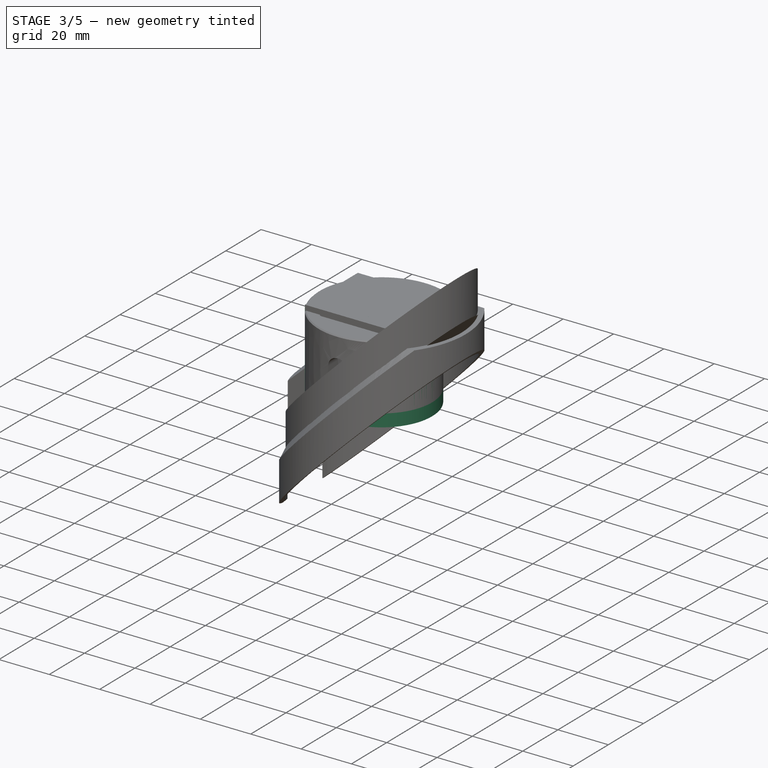
[diagram: stage 3 of 5 — iso view after this stage's code; geometry added in this stage tinted green]
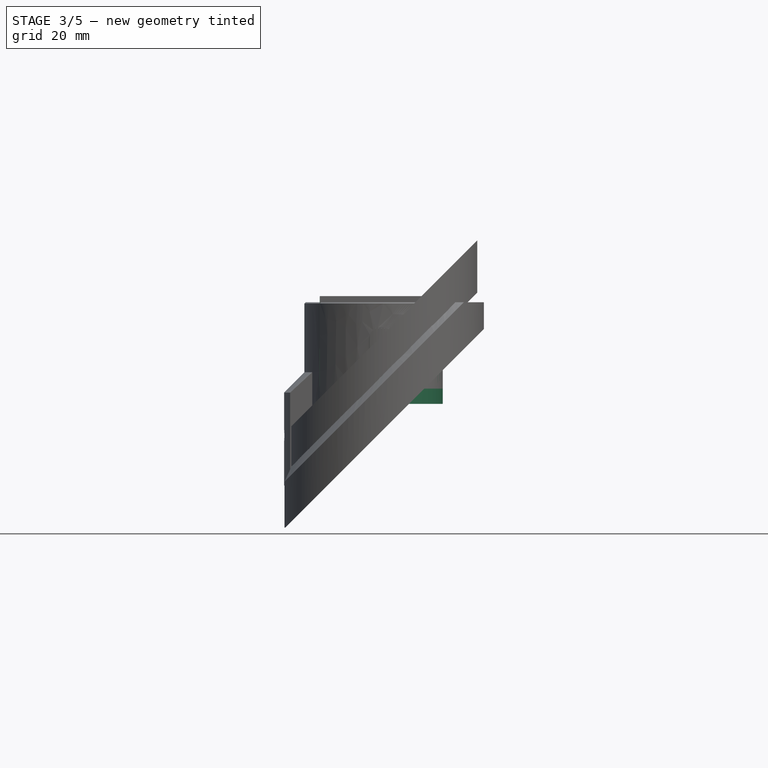
[diagram: stage 3 of 5 — front view after this stage's code; geometry added in this stage tinted green]
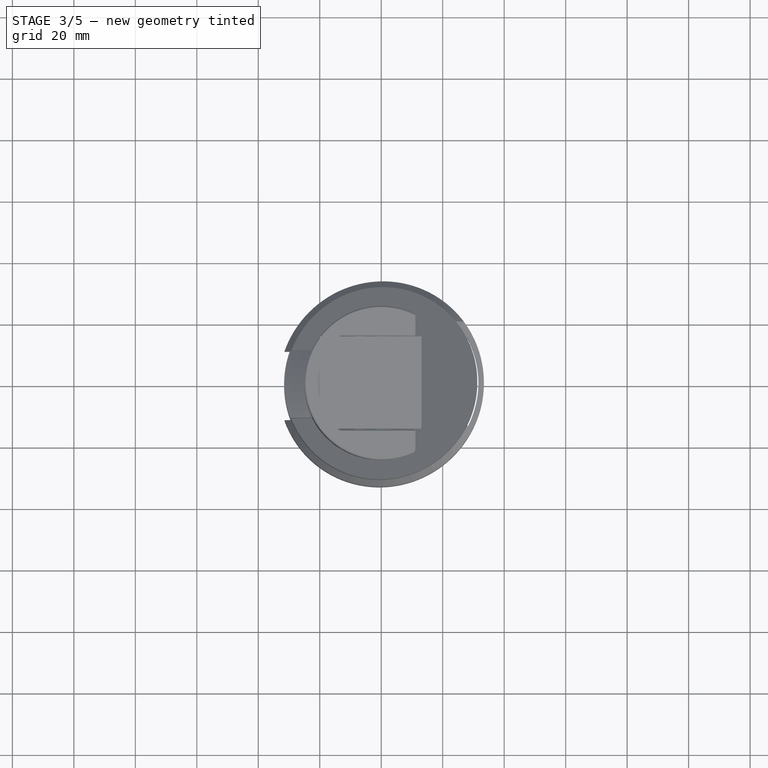
[diagram: stage 3 of 5 — top view after this stage's code; geometry added in this stage tinted green]
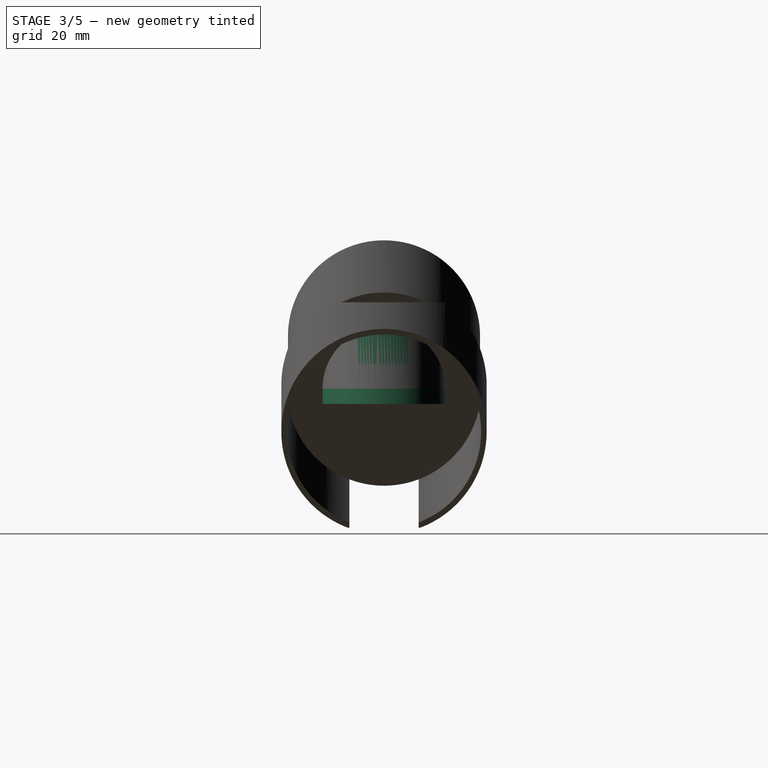
[diagram: stage 3 of 5 — right view after this stage's code; geometry added in this stage tinted green]
FEATURE [Sketcher::SketchObject] Sketch124  label="TiltPlate_Ext_Sketch"
  FullyConstrained = true
  MapMode = 5
  Placement = pos=(0,0,8) rot=(0,0,1;0rad)
  Support = -> [DatumPlane002]
  expr: Constraints[2] = <<Common>>#<<Parameters>>.sec_centralbolt * 1.1
  expr: Constraints[3] = <<Common>>#<<Parameters>>.sec_centralbolt * 1.1 + <<Common>>#<<Parameters>>.sec_pthick
  sketch-geometry (2):
    g0: Circle CenterX=0 CenterY=0 CenterZ=0 NormalX=0 NormalY=0 NormalZ=1 AngleXU=0 Radius=6.75
    g1: Circle CenterX=0 CenterY=0 CenterZ=0 NormalX=0 NormalY=0 NormalZ=1 AngleXU=0 Radius=2.75
  constraints (4):
    c: Coincident(g0,g-1)
    c: Coincident(g1,g0)
    c: Diameter(g1) = 5.5
    c: Diameter(g0) = 13.5
FEATURE [PartDesign::Pocket] Pocket065  label="MirrorPad_CollGroove"
  BaseFeature = -> Pocket060
  Direction = (-1,1e-16,-1e-16)
  Length = 8
  Length2 = 6
  Midplane = true
  Placement = pos=(0,0,0) rot=(1,0,0;1.5708rad)
  Profile = -> Sketch002
  Type = 4
  expr: Length = <<Common>>#<<Parameters>>.sec_hubdia / 2 - <<Common>>#<<Parameters>>.sec_cpointpos
  expr: Length2 = <<Common>>#<<Parameters>>.sec_tiltball * 1.5 / 2
FEATURE [PartDesign::PolarPattern] PolarPattern  label="MirrorPad_CollGroove_Polar"
  Angle = 360
  Axis = -> Z_Axis055
  BaseFeature = -> Pocket065
  Occurrences = 3
  Originals = -> [Pocket065]
  Placement = pos=(0,0,0) rot=(1,0,0;1.5708rad)
FEATURE [Sketcher::SketchObject] Sketch126  label="MirrorPad_InnerShaft_Sketch"
  FullyConstrained = true
  MapMode = 5
  Placement = pos=(0,0,0) rot=(1,0,0;1.5708rad)
  Support = -> [XZ_Plane055]
  expr: Constraints[1] = <<Common>>#<<Parameters>>.sec_collbolt * 1.1
  expr: Constraints[2] = <<Common>>#<<Parameters>>.sec_mtvar + <<Common>>#<<Parameters>>.sec_hubdia / 4
  sketch-geometry (1):
    g0: Circle CenterX=0 CenterY=14 CenterZ=0 NormalX=0 NormalY=0 NormalZ=1 AngleXU=0 Radius=2.2
  constraints (3):
    c: PointOnObject(g0,g-2)
    c: Diameter(g0) = 4.4
    c: DistanceY(g0) = 14
FEATURE [Sketcher::SketchObject] Sketch125  label="MirrorPad_InnerNut_Sketch"
  AttachmentOffset = pos=(0,0,15) rot=(0,0,1;0rad)
  ExternalGeometry = -> [Sketch126]
  FullyConstrained = true
  MapMode = 5
  Placement = pos=(0,-15,-3.3e-15) rot=(1,0,0;1.5708rad)
  Support = -> [XZ_Plane055]
  expr: .AttachmentOffset.Base.z = (2 * ceil(<<Common>>#<<Parameters>>.sec_cpointpos * cos(30)) + <<Common>>#<<Parameters>>.sec_tiltball) / 2
  expr: Constraints[1] = <<Common>>#<<Parameters>>.acc_M4Bore
  sketch-geometry (1):
    g0: Circle CenterX=0 CenterY=14 CenterZ=0 NormalX=0 NormalY=0 NormalZ=1 AngleXU=0 Radius=2.8
  constraints (2):
    c: Coincident(g0,g-3)
    c: Diameter(g0) = 5.6
FEATURE [PartDesign::Pocket] Pocket066  label="MirrorPad_InnerShaft"
  BaseFeature = -> PolarPattern
  Direction = (0,1,2e-16)
  Length = 5
  Length2 = 100
  Midplane = true
  Placement = pos=(0,0,0) rot=(1,0,0;1.5708rad)
  Profile = -> Sketch126
  Type = 1
FEATURE [PartDesign::CoordinateSystem] Local_CS226  label="LCS_MirrorOuter_Upper"
  AttacherType = Attacher::AttachEngine3D
  AttachmentOffset = pos=(0,0,30.0779) rot=(0,0,1;0rad)
  MapMode = 5
  Placement = pos=(0,0,30.0779) rot=(0,0,1;0rad)
  Support = -> [XY_Plane079]
  expr: .AttachmentOffset.Base.z = <<Common>>#<<Parameters>>.sec_padheight
FEATURE [PartDesign::CoordinateSystem] Local_CS227  label="LCS_Top"
  AttacherType = Attacher::AttachEngine3D
  MapMode = 5
  Placement = pos=(0,0,30.0779) rot=(0,0,1;0rad)
  Support = -> [DatumPlane001]
FEATURE [PartDesign::CoordinateSystem] Local_CS228  label="LCS_MirrorOuter_Pad"
  AttacherType = Attacher::AttachEngine3D
  MapMode = 5
  Support = -> [XY_Plane079]
FEATURE [Sketcher::SketchObject] Sketch177  label="MirrorPad_Flat_Base_Sketch"
  FullyConstrained = true
  MapMode = 5
  Placement = pos=(0,0,0) rot=(1,0,0;1.5708rad)
  Support = -> [XZ_Plane088]
  expr: Constraints[10] = <<Common>>#<<Parameters>>.sec_padheight
  expr: Constraints[13] = <<Common>>#<<Parameters>>.sec_mtvar
  expr: Constraints[15] = <<Common>>#<<Parameters>>.sec_hubdia / 2
  expr: Constraints[17] = <<Common>>#<<Parameters>>.sec_hubdia * 0.75 / 2
  expr: Constraints[5] = <<Common>>#<<Parameters>>.sec_fillet
  sketch-geometry (6):
    g0: LineSegment StartX=-18 StartY=-14 StartZ=0 EndX=15 EndY=19 EndZ=0
    g1: LineSegment StartX=-20 StartY=30.0779 StartZ=0 EndX=-20 EndY=-14 EndZ=0
    g2: LineSegment StartX=-20 StartY=-14 StartZ=0 EndX=-18 EndY=-14 EndZ=0
    g3: LineSegment StartX=15 StartY=19 StartZ=0 EndX=15 EndY=30.0779 EndZ=0
    g4: LineSegment StartX=15 StartY=30.0779 StartZ=0 EndX=-20 EndY=30.0779 EndZ=0
    g5: GeomPoint X=0 Y=4 Z=0
  constraints (18):
    c: Angle(g-1,g0) = 0.785398
    c: Vertical(g1)
    c: Coincident(g2,g1)
    c: Coincident(g2,g0)
    c: Horizontal(g2)
    c: DistanceX(g2,g2) = 2
    c: Coincident(g3,g0)
    c: Vertical(g3)
    c: Coincident(g4,g3)
    c: Coincident(g1,g4)
    c: DistanceY(g1) = 30.0779
    c: PointOnObject(g5,g0)
    c: PointOnObject(g5,g-2)
    c: DistanceY(g-1,g5) = 4
    c: DistanceY(g3,g3) = 11.0779
    c: DistanceX(g1,g-1) = 20
    c: Horizontal(g4)
    c: DistanceX(g-1,g3) = 15
FEATURE [PartDesign::Pad] Pad045  label="MirrorPad_Flat_Base"
  Direction = (0,-1,-2e-16)
  Length = 30
  Length2 = 100
  Midplane = true
  Placement = pos=(0,0,0) rot=(1,0,0;1.5708rad)
  Profile = -> Sketch177
  Type = 0
  expr: Length = 2 * ceil(<<Common>>#<<Parameters>>.sec_cpointpos * cos(30)) + <<Common>>#<<Parameters>>.sec_tiltball
FEATURE [PartDesign::Plane] DatumPlane044  label="MirrorPad_Flat_DatumPlane_Top"
  AttachmentOffset = pos=(0,0,30.0779) rot=(0,0,1;0rad)
  Length = 60
  MapMode = 5
  Placement = pos=(0,0,30.0779) rot=(0,0,1;0rad)
  ResizeMode = 0
  Support = -> [XY_Plane087]
  Width = 60
  expr: .AttachmentOffset.Base.z = <<Common>>#<<Parameters>>.sec_padheight
FEATURE [Sketcher::SketchObject] Sketch181  label="MirrorPad_Flat_Outer_Sketch"
  FullyConstrained = true
  MapMode = 5
  Support = -> [XY_Plane087]
  expr: Constraints[2] = <<Common>>#<<Parameters>>.sec_hubdia
  expr: Constraints[3] = <<Common>>#<<Parameters>>.sec_mdia * 2
  sketch-geometry (2):
    g0: Circle CenterX=0 CenterY=0 CenterZ=0 NormalX=0 NormalY=0 NormalZ=1 AngleXU=0 Radius=20
    g1: Circle CenterX=0 CenterY=0 CenterZ=0 NormalX=0 NormalY=0 NormalZ=1 AngleXU=0 Radius=62.5
  constraints (4):
    c: Coincident(g0,g-1)
    c: Coincident(g1,g0)
    c: Diameter(g0) = 40
    c: Diameter(g1) = 125
FEATURE [PartDesign::CoordinateSystem] Local_CS246  label="LCS_MirrorPad_Flat_TiltPlateAttachment"
  AttacherType = Attacher::AttachEngine3D
  AttachmentOffset = pos=(0,0,33.201) rot=(0,0,1;0rad)
  MapMode = 5
  Placement = pos=(0,0,33.201) rot=(0,0,1;0rad)
  Support = -> [XY_Plane087]
  expr: .AttachmentOffset.Base.z = <<Common>>#<<Parameters>>.sec_padheight + <<Common>>#<<Parameters>>.sec_tiltspacing
FEATURE [PartDesign::CoordinateSystem] Local_CS247  label="LCS_MirrorPad_Flat_SecondaryPad"
  AttacherType = Attacher::AttachEngine3D
  MapMode = 5
  Support = -> [XY_Plane087]
FEATURE [PartDesign::Plane] DatumPlane045  label="MirrorPad_Flat_DatumPlane_Cavity"
  AttachmentOffset = pos=(0,0,-4) rot=(0,0,1;0rad)
  Length = 60
  MapMode = 2
  Placement = pos=(0,0,26.0779) rot=(0,0,1;0rad)
  ResizeMode = 0
  Support = -> [DatumPlane044]
  Width = 60
  expr: .AttachmentOffset.Base.z = -<<Common>>#<<Parameters>>.sec_pthick / 2
FEATURE [Sketcher::SketchObject] Sketch178  label="MirrorPad_Flat_Cavity_Sketch"
  FullyConstrained = true
  MapMode = 5
  Placement = pos=(0,0,26.0779) rot=(0,0,1;0rad)
  Support = -> [DatumPlane045]
  sketch-geometry (1):
    g0: Circle CenterX=0 CenterY=0 CenterZ=0 NormalX=0 NormalY=0 NormalZ=1 AngleXU=0 Radius=8.4
  constraints (2):
    c: Coincident(g0,g-1)
    c: Radius(g0) = 8.4
FEATURE [Sketcher::SketchObject] Sketch180  label="MirrorPad_Flat_CentralHole_Sketch"
  FullyConstrained = true
  MapMode = 5
  Placement = pos=(0,0,26.0779) rot=(0,0,1;0rad)
  Support = -> [DatumPlane045]
  expr: Constraints[1] = <<Common>>#<<Parameters>>.sec_centralbolt * 1.3
  sketch-geometry (1):
    g0: Circle CenterX=0 CenterY=0 CenterZ=0 NormalX=0 NormalY=0 NormalZ=1 AngleXU=0 Radius=3.25
  constraints (2):
    c: Coincident(g0,g-1)
    c: Diameter(g0) = 6.5
FEATURE [PartDesign::CoordinateSystem] Local_CS245  label="LCS_MirrorPad_Flat_HubPoint"
  AttacherType = Attacher::AttachEngine3D
  MapMode = 5
  Placement = pos=(0,0,26.0779) rot=(0,0,1;0rad)
  Support = -> [DatumPlane045]
  expr: .AttachmentOffset.Base.z = 0
FEATURE [PartDesign::Pocket] Pocket110  label="MirrorPad_Flat_Cavity"
  BaseFeature = -> Pad045
  Direction = (0,0,-1)
  Length = 5
  Length2 = 100
  Placement = pos=(0,0,0) rot=(1,0,0;1.5708rad)
  Profile = -> Sketch178
  Type = 1
FEATURE [PartDesign::Pocket] Pocket190  label="MirrorPad_InnerCut"
  BaseFeature = -> Pocket066
  Direction = (0,1,2e-16)
  Length = 5
  Length2 = 100
  Midplane = true
  Placement = pos=(0,0,0) rot=(1,0,0;1.5708rad)
  Profile = -> Sketch138
  Type = 1
FEATURE [PartDesign::Pocket] Pocket191  label="MirrorPad_InnerNut"
  BaseFeature = -> Pocket190
  Direction = (0,1,2e-16)
  Length = 4
  Length2 = 100
  Placement = pos=(0,0,0) rot=(1,0,0;1.5708rad)
  Profile = -> Sketch125
  Type = 0
FEATURE [PartDesign::Mirrored] Mirrored008  label="MirrorPad_InnerNut_Mirror"
  BaseFeature = -> Pocket191
  MirrorPlane = -> XZ_Plane055
  Originals = -> [Pocket191]
  Placement = pos=(0,0,0) rot=(1,0,0;1.5708rad)
FEATURE [PartDesign::Body] Body022028  label="SecondaryClip"
  Group = -> [Box,Sketch136,Pocket077,Sketch228,Groove003,Fillet010,Local_CS304,Chamfer001]
  Origin = -> Origin081
  Placement = pos=(-3.125,0,854.799) rot=(0,0,1;0rad)
  Tip = -> Chamfer001
  expr: .Placement.Base.x = -<<Common>>#<<Parameters>>.sec_offset_x
  expr: .Placement.Base.z = <<Common>>#<<Parameters>>.datum_sec_mirrorpad
FEATURE [PartDesign::Chamfer] Chamfer002  label="MirrorPad_Chamfer"
  Angle = 45
  Base = -> Mirrored008 [Edge4,Edge5,Edge6,Edge7,Edge8,Edge1,Edge9,Edge10,Edge11,Edge12,Edge3,Edge2,Edge36,Edge41]
  BaseFeature = -> Mirrored008
  ChamferType = 0
  FlipDirection = false
  Placement = pos=(0,0,0) rot=(1,0,0;1.5708rad)
  Size = 0.6
  Size2 = 0.4
  SupportTransform = false
  UseAllEdges = false
FEATURE [PartDesign::ShapeBinder] ShapeBinder007  label="SpiderHub_PushPull_ShapeBinder"
  Support = -> [Binder]
  TraceSupport = false
FEATURE [Sketcher::SketchObject] Sketch168  label="SpiderHub_PushPull_Main_Sketch"
  ExternalGeometry = -> [ShapeBinder007]
  FullyConstrained = true
  MapMode = 5
  Support = -> [XY_Plane105]
  expr: Constraints[0] = <<Common>>#<<Parameters>>.sec_centralbolt * 1.1
  expr: Constraints[20] = <<Common>>#<<Parameters>>.sec_fillet
  expr: Constraints[23] = <<Common>>#<<Parameters>>.sec_cpointpos
  expr: Constraints[36] = <<Common>>#<<Parameters>>.sec_collbolt * 1.1
  sketch-geometry (16):
    g0: Circle CenterX=0 CenterY=0 CenterZ=0 NormalX=0 NormalY=0 NormalZ=1 AngleXU=0 Radius=2.75
    g1: LineSegment StartX=-19.1267 StartY=4.61831 StartZ=0 EndX=-4.61831 EndY=19.1267 EndZ=0
    g2: LineSegment StartX=-19.1267 StartY=-4.61831 StartZ=0 EndX=-4.61831 EndY=-19.1267 EndZ=0
    g3: ArcOfCircle CenterX=0 CenterY=0 CenterZ=0 NormalX=0 NormalY=0 NormalZ=1 AngleXU=0 Radius=20 StartAngle=4.53343 EndAngle=8.03294
    g4: ArcOfCircle CenterX=-3.2041 CenterY=17.7125 CenterZ=0 NormalX=0 NormalY=0 NormalZ=1 AngleXU=0 Radius=2 StartAngle=1.74976 EndAngle=2.35619
    g5: ArcOfCircle CenterX=-3.2041 CenterY=-17.7125 CenterZ=0 NormalX=0 NormalY=0 NormalZ=1 AngleXU=0 Radius=2 StartAngle=3.92699 EndAngle=4.53343
    g6: ArcOfCircle CenterX=0 CenterY=0 CenterZ=0 NormalX=0 NormalY=0 NormalZ=1 AngleXU=0 Radius=20 StartAngle=2.96263 EndAngle=3.32055
    g7: ArcOfCircle CenterX=-17.7125 CenterY=-3.2041 CenterZ=0 NormalX=0 NormalY=0 NormalZ=1 AngleXU=0 Radius=2 StartAngle=3.32055 EndAngle=3.92699
    g8: ArcOfCircle CenterX=-17.7125 CenterY=3.2041 CenterZ=0 NormalX=0 NormalY=0 NormalZ=1 AngleXU=0 Radius=2 StartAngle=2.35619 EndAngle=2.96263
    g9: Circle CenterX=0 CenterY=0 CenterZ=0 NormalX=0 NormalY=0 NormalZ=1 AngleXU=0 Radius=12
    g10: LineSegment StartX=-12 StartY=0 StartZ=0 EndX=6 EndY=-10.3923 EndZ=0
    g11: LineSegment StartX=6 StartY=-10.3923 StartZ=0 EndX=6 EndY=10.3923 EndZ=0
    g12: LineSegment StartX=6 StartY=10.3923 StartZ=0 EndX=-12 EndY=0 EndZ=0
    g13: Circle CenterX=-12 CenterY=0 CenterZ=0 NormalX=0 NormalY=0 NormalZ=1 AngleXU=0 Radius=2.2
    g14: Circle CenterX=6 CenterY=10.3923 CenterZ=0 NormalX=0 NormalY=0 NormalZ=1 AngleXU=0 Radius=2.2
    g15: Circle CenterX=6 CenterY=-10.3923 CenterZ=0 NormalX=0 NormalY=0 NormalZ=1 AngleXU=0 Radius=2.2
  constraints (39):
    c: Diameter(g0) = 5.5
    c: Equal(g1,g2)
    c: PointOnObject(g1,g-5)
    c: PointOnObject(g2,g-4)
    c: Coincident(g3,g0)
    c: Coincident(g0,g-3)
    c: Equal(g3,g-3)
    c: Tangent(g1,g4) = 1.5708
    c: Tangent(g2,g5) = -1.5708
    c: Tangent(g3,g5) = -1.5708
    c: Parallel(g2,g-4)
    c: Parallel(g1,g-5)
    c: Equal(g4,g5)
    c: Tangent(g3,g4) = -1.5708
    c: Coincident(g6,g0)
    c: PointOnObject(g6,g-3)
    c: Tangent(g8,g1) = 1.5708
    c: Tangent(g8,g6) = -1.5708
    c: Tangent(g7,g6) = -1.5708
    c: Tangent(g7,g2) = -1.5708
    c: Radius(g8) = 2
    c: Equal(g4,g8)
    c: Coincident(g9,g0)
    c: Radius(g9) = 12
    c: Coincident(g10,g11)
    c: Coincident(g11,g12)
    c: Coincident(g12,g10)
    c: Equal(g10,g11)
    c: Equal(g10,g12)
    c: PointOnObject(g12,g-1)
    c: PointOnObject(g10,g9)
    c: PointOnObject(g10,g9)
    c: PointOnObject(g11,g9)
    c: Coincident(g13,g10)
    c: Coincident(g14,g11)
    c: Coincident(g15,g10)
    c: Diameter(g15) = 4.4
    c: Equal(g15,g14)
    c: Equal(g15,g13)
FEATURE [Sketcher::SketchObject] Sketch169  label="SpiderHub_PushPull_CounterBore_Sketch"
  ExternalGeometry = -> [ShapeBinder007]
  FullyConstrained = true
  MapMode = 5
  Placement = pos=(0,0,20) rot=(0,0,1;0rad)
  Support = -> [DatumPlane040]
  expr: Constraints[0] = <<Common>>#<<Parameters>>.sec_cpointpos
  expr: Constraints[24] = <<Common>>#<<Parameters>>.sec_fillet
  expr: Constraints[3] = <<Common>>#<<Parameters>>.sec_collbolt
  sketch-geometry (18):
    g0: Circle CenterX=0 CenterY=0 CenterZ=0 NormalX=0 NormalY=0 NormalZ=1 AngleXU=0 Radius=12
    g1: ArcOfCircle CenterX=-12 CenterY=0 CenterZ=0 NormalX=0 NormalY=0 NormalZ=1 AngleXU=0 Radius=4 StartAngle=4.71239 EndAngle=7.85398
    g2: LineSegment StartX=-12 StartY=4 StartZ=0 EndX=-14.9166 EndY=4 EndZ=0
    g3: LineSegment StartX=-12 StartY=-4 StartZ=0 EndX=-14.9166 EndY=-4 EndZ=0
    g4: LineSegment StartX=-21 StartY=7.41423 StartZ=0 EndX=-21 EndY=-7.41423 EndZ=0
    g5: ArcOfCircle CenterX=-14.9166 CenterY=6 CenterZ=0 NormalX=0 NormalY=0 NormalZ=1 AngleXU=0 Radius=2 StartAngle=2.35619 EndAngle=4.71239
    g6: GeomPoint X=21 Y=0 Z=0
    g7: GeomPoint X=20 Y=0 Z=0
    g8: GeomPoint X=-20 Y=0 Z=0
    g9: GeomPoint X=-21 Y=0 Z=0
    g10: LineSegment StartX=-16.3308 StartY=7.41423 StartZ=0 EndX=-21 EndY=7.41423 EndZ=0
    g11: LineSegment StartX=-16.3308 StartY=-7.41423 StartZ=0 EndX=-21 EndY=-7.41423 EndZ=0
    g12: ArcOfCircle CenterX=-14.9166 CenterY=-6 CenterZ=0 NormalX=0 NormalY=0 NormalZ=1 AngleXU=0 Radius=2 StartAngle=1.5708 EndAngle=3.927
    g13: LineSegment StartX=-12 StartY=0 StartZ=0 EndX=6 EndY=10.3923 EndZ=0
    g14: LineSegment StartX=6 StartY=10.3923 StartZ=0 EndX=6 EndY=-10.3923 EndZ=0
    g15: LineSegment StartX=6 StartY=-10.3923 StartZ=0 EndX=-12 EndY=0 EndZ=0
    g16: Circle CenterX=6 CenterY=10.3923 CenterZ=0 NormalX=0 NormalY=0 NormalZ=1 AngleXU=0 Radius=4
    g17: Circle CenterX=6 CenterY=-10.3923 CenterZ=0 NormalX=0 NormalY=0 NormalZ=1 AngleXU=0 Radius=4
  constraints (46):
    c: Radius(g0) = 12
    c: Coincident(g0,g-1)
    c: PointOnObject(g1,g0)
    c: Radius(g1) = 4
    c: Horizontal(g2)
    c: Horizontal(g3)
    c: Vertical(g4)
    c: PointOnObject(g7,g-3)
    c: PointOnObject(g8,g-3)
    c: PointOnObject(g9,g4)
    c: PointOnObject(g9,g-1)
    c: PointOnObject(g8,g-1)
    c: DistanceX(g9,g8) = 1
    c: PointOnObject(g7,g-1)
    c: PointOnObject(g6,g-1)
    c: DistanceX(g7,g6) = 1
    c: PointOnObject(g11,g-5)
    c: PointOnObject(g5,g-4)
    c: Coincident(g10,g5)
    c: Coincident(g10,g4)
    c: Coincident(g11,g4)
    c: Horizontal(g11)
    c: Horizontal(g10)
    c: Tangent(g5,g-4)
    c: Radius(g5) = 2
    c: Tangent(g5,g2) = 1.5708
    c: Coincident(g12,g11)
    c: Tangent(g12,g-5)
    c: Tangent(g12,g3) = -1.5708
    c: Equal(g12,g5)
    c: PointOnObject(g13,g-1)
    c: PointOnObject(g13,g0)
    c: Coincident(g14,g13)
    c: PointOnObject(g14,g0)
    c: Coincident(g15,g14)
    c: Coincident(g15,g13)
    c: Equal(g13,g14)
    c: Equal(g14,g15)
    c: Coincident(g1,g3)
    c: Coincident(g1,g13)
    c: Equal(g2,g3)
    c: Coincident(g16,g13)
    c: Coincident(g17,g14)
    c: Equal(g17,g16)
    c: Equal(g16,g1)
    c: Tangent(g2,g1) = -1.5708
FEATURE [PartDesign::Plane] DatumPlane041  label="SpiderHub_PushPull_DatumPlane_SpiderHole"
  Length = 82.6027
  MapMode = 14
  Placement = pos=(-11.8725,-11.8725,0) rot=(0.862856,-0.357407,-0.357407;1.71777rad)
  ResizeMode = 0
  Support = -> [ShapeBinder007,Z_Axis087]
  Width = 61.8921
FEATURE [Sketcher::SketchObject] Sketch170  label="SpiderHub_PushPull_SpiderHole_Sketch"
  ExternalGeometry = -> [ShapeBinder007]
  FullyConstrained = true
  MapMode = 5
  Placement = pos=(-11.8725,-11.8725,0) rot=(0.862856,-0.357407,-0.357407;1.71777rad)
  Support = -> [DatumPlane041]
  expr: Constraints[0] = <<Common>>#<<Parameters>>.sec_collbolt
  expr: Constraints[3] = <<Common>>#<<Parameters>>.sec_stalkheight / 4
  expr: Constraints[4] = <<Common>>#<<Parameters>>.sec_stalkheight / 4
  expr: Constraints[5] = <<Common>>#<<Parameters>>.sec_stalkheight / 2
  expr: Constraints[6] = <<Common>>#<<Parameters>>.sec_collbolt * 1.5
  expr: Constraints[8] = <<Common>>#<<Parameters>>.sec_sidebolt * 1.25
  sketch-geometry (3):
    g0: Circle CenterX=5.86674 CenterY=5 CenterZ=0 NormalX=0 NormalY=0 NormalZ=1 AngleXU=0 Radius=2
    g1: Circle CenterX=5.86674 CenterY=15 CenterZ=0 NormalX=0 NormalY=0 NormalZ=1 AngleXU=0 Radius=2
    g2: LineSegment StartX=5.86674 StartY=15 StartZ=0 EndX=5.86674 EndY=0 EndZ=0
  constraints (9):
    c: Diameter(g0) = 4
    c: Equal(g0,g1)
    c: Vertical(g2)
    c: PointOnObject(g0,g2) = 5
    c: DistanceY(g2,g0) = 5
    c: DistanceY(g0,g1) = 10
    c: PointOnObject(g2,g-1) = 6
    c: Coincident(g2,g1)
    c: DistanceX(g2,g-3) = 5
FEATURE [PartDesign::Plane] DatumPlane042  label="SpiderHub_PushPull_DatumPlane_SpiderNut"
  AttachmentOffset = pos=(0,0,-3) rot=(0,0,1;0rad)
  Length = 82.6027
  MapMode = 5
  Placement = pos=(-9.75121,-9.75121,0) rot=(0.862856,-0.357407,-0.357407;1.71777rad)
  ResizeMode = 0
  Support = -> [DatumPlane041]
  Width = 61.8921
  expr: .AttachmentOffset.Base.z = -<<Common>>#<<Parameters>>.sec_fthick
FEATURE [Sketcher::SketchObject] Sketch171  label="SpiderHub_PushPull_SpiderNut_Sketch"
  ExternalGeometry = -> [Sketch170]
  FullyConstrained = true
  MapMode = 5
  Placement = pos=(-9.75121,-9.75121,0) rot=(0.862856,-0.357407,-0.357407;1.71777rad)
  Support = -> [DatumPlane042]
  sketch-geometry (14):
    g0: LineSegment StartX=9.51674 StartY=12.8927 StartZ=0 EndX=9.51674 EndY=26 EndZ=0
    g1: LineSegment StartX=2.21674 StartY=26 StartZ=0 EndX=2.21674 EndY=12.8927 EndZ=0
    g2: LineSegment StartX=2.21674 StartY=12.8927 StartZ=0 EndX=5.86674 EndY=10.7853 EndZ=0
    g3: LineSegment StartX=5.86674 StartY=10.7853 StartZ=0 EndX=9.51674 EndY=12.8927 EndZ=0
    g4: Circle CenterX=5.86674 CenterY=15 CenterZ=0 NormalX=0 NormalY=0 NormalZ=1 AngleXU=0 Radius=4.21466
    g5: LineSegment StartX=9.51674 StartY=-6 StartZ=0 EndX=9.51674 EndY=7.10733 EndZ=0
    g6: LineSegment StartX=9.51674 StartY=7.10733 StartZ=0 EndX=5.86674 EndY=9.21466 EndZ=0
    g7: LineSegment StartX=5.86674 StartY=9.21466 StartZ=0 EndX=2.21674 EndY=7.10733 EndZ=0
    g8: LineSegment StartX=2.21674 StartY=7.10733 StartZ=0 EndX=2.21674 EndY=-6 EndZ=0
    g9: Circle CenterX=5.86674 CenterY=5 CenterZ=0 NormalX=0 NormalY=0 NormalZ=1 AngleXU=0 Radius=4.21466
    g10: LineSegment StartX=5.86674 StartY=15 StartZ=0 EndX=5.86674 EndY=10.7853 EndZ=0
    g11: LineSegment StartX=5.86674 StartY=5 StartZ=0 EndX=5.86674 EndY=9.21466 EndZ=0
    g12: LineSegment StartX=2.21674 StartY=-6 StartZ=0 EndX=9.51674 EndY=-6 EndZ=0
    g13: LineSegment StartX=2.21674 StartY=26 StartZ=0 EndX=9.51674 EndY=26 EndZ=0
  constraints (38):
    c: Coincident(g1,g2)
    c: Coincident(g2,g3)
    c: Coincident(g3,g0)
    c: PointOnObject(g1,g4)
    c: PointOnObject(g2,g4)
    c: PointOnObject(g3,g4)
    c: Coincident(g4,g-3)
    c: Coincident(g5,g6)
    c: Coincident(g6,g7)
    c: Coincident(g7,g8)
    c: PointOnObject(g5,g9)
    c: PointOnObject(g6,g9)
    c: PointOnObject(g7,g9)
    c: Coincident(g9,g-4)
    c: Equal(g4,g9)
    c: Vertical(g1)
    c: Vertical(g8)
    c: Vertical(g0)
    c: Coincident(g10,g4)
    c: Coincident(g10,g2)
    c: Coincident(g11,g9)
    c: Coincident(g11,g6)
    c: Vertical(g10)
    c: Angle(g3,g2) = 2.0944
    c: DistanceX(g1,g0) = 7.3
    c: Equal(g3,g2)
    c: Equal(g7,g6)
    c: Equal(g6,g3)
    c: Vertical(g11)
    c: Vertical(g5)
    c: Coincident(g12,g8)
    c: Coincident(g12,g5)
    c: Coincident(g13,g1)
    c: Coincident(g13,g0)
    c: Horizontal(g13)
    c: Equal(g0,g5)
    c: Horizontal(g12)
    c: DistanceY(g8) = -6
FEATURE [Sketcher::SketchObject] Sketch174  label="SpiderHub_PushPull_LowerPlate_Sketch"
  ExternalGeometry = -> [ShapeBinder007]
  FullyConstrained = true
  MapMode = 5
  Support = -> [XY_Plane105]
  expr: Constraints[15] = <<Common>>#<<Parameters>>.sec_collbolt * 1.1
  expr: Constraints[19] = <<Common>>#<<Parameters>>.sec_centralbolt * 1.1
  sketch-geometry (9):
    g0: Circle CenterX=0 CenterY=0 CenterZ=0 NormalX=0 NormalY=0 NormalZ=1 AngleXU=0 Radius=20
    g1: LineSegment StartX=-12 StartY=0 StartZ=0 EndX=6 EndY=-10.3923 EndZ=0
    g2: LineSegment StartX=6 StartY=-10.3923 StartZ=0 EndX=6 EndY=10.3923 EndZ=0
    g3: LineSegment StartX=6 StartY=10.3923 StartZ=0 EndX=-12 EndY=0 EndZ=0
    g4: Circle CenterX=0 CenterY=0 CenterZ=0 NormalX=0 NormalY=0 NormalZ=1 AngleXU=0 Radius=12
    g5: Circle CenterX=6 CenterY=10.3923 CenterZ=0 NormalX=0 NormalY=0 NormalZ=1 AngleXU=0 Radius=2.2
    g6: Circle CenterX=6 CenterY=-10.3923 CenterZ=0 NormalX=0 NormalY=0 NormalZ=1 AngleXU=0 Radius=2.2
    g7: Circle CenterX=-12 CenterY=0 CenterZ=0 NormalX=0 NormalY=0 NormalZ=1 AngleXU=0 Radius=2.2
    g8: Circle CenterX=0 CenterY=0 CenterZ=0 NormalX=0 NormalY=0 NormalZ=1 AngleXU=0 Radius=2.75
  constraints (20):
    c: Coincident(g0,g-1)
    c: Coincident(g1,g2)
    c: Coincident(g2,g3)
    c: Coincident(g3,g1)
    c: Equal(g1,g2)
    c: Equal(g1,g3)
    c: PointOnObject(g1,g4)
    c: PointOnObject(g2,g4)
    c: PointOnObject(g3,g4)
    c: Coincident(g4,g0)
    c: Coincident(g3,g-4)
    c: Equal(g0,g-3)
    c: Coincident(g5,g2)
    c: Coincident(g6,g1)
    c: Coincident(g7,g1)
    c: Diameter(g7) = 4.4
    c: Equal(g7,g5)
    c: Equal(g7,g6)
    c: Coincident(g8,g0)
    c: Diameter(g8) = 5.5
FEATURE [PartDesign::Pad] Pad043  label="SpiderHub_PushPull_Main"
  Direction = (0,0,1)
  Length = 20
  Length2 = 100
  Profile = -> Sketch168
  Type = 0
  expr: Length = <<Common>>#<<Parameters>>.sec_stalkheight
FEATURE [PartDesign::Pad] Pad044  label="SpiderHub_PushPull_LowerPlate"
  BaseFeature = -> Pad043
  Direction = (0,0,1)
  Length = 5
  Length2 = 100
  Profile = -> Sketch174
  Reversed = true
  Type = 0
  expr: Length = <<Common>>#<<Parameters>>.sec_pthick - 3
FEATURE [PartDesign::Pocket] Pocket106  label="SpiderHub_PushPull_CounterBore"
  BaseFeature = -> Pad044
  Direction = (0,0,-1)
  Length = 12
  Length2 = 100
  Profile = -> Sketch169
  Type = 0
  expr: Length = <<Common>>#<<Parameters>>.sec_stalkheight - <<Common>>#<<Parameters>>.sec_pthick
FEATURE [Sketcher::SketchObject] Sketch175  label="SpiderHub_PushPull_LowerNut_Sketch"
  ExternalGeometry = -> [Pocket106]
  FullyConstrained = true
  MapMode = 5
  Placement = pos=(0,0,-5) rot=(1,0,0;3.14159rad)
  Support = -> [Pocket106]
  expr: Constraints[5] = <<Common>>#<<Parameters>>.acc_M4Bore
  sketch-geometry (3):
    g0: Circle CenterX=-12 CenterY=0 CenterZ=0 NormalX=0 NormalY=0 NormalZ=1 AngleXU=0 Radius=2.8
    g1: Circle CenterX=6 CenterY=10.3923 CenterZ=0 NormalX=0 NormalY=0 NormalZ=1 AngleXU=0 Radius=2.8
    g2: Circle CenterX=6 CenterY=-10.3923 CenterZ=0 NormalX=0 NormalY=0 NormalZ=1 AngleXU=0 Radius=2.8
  constraints (6):
    c: Coincident(g1,g-3)
    c: Coincident(g2,g-4)
    c: Equal(g0,g2)
    c: Equal(g2,g1)
    c: Coincident(g0,g-5)
    c: Diameter(g0) = 5.6
FEATURE [Sketcher::SketchObject] Sketch176  label="SpiderHub_PushPull_NutSupport_Sketch"
  FullyConstrained = false
  MapMode = 5
  Placement = pos=(0,0,-5) rot=(1,0,0;3.14159rad)
  Support = -> [Pad044]
  sketch-geometry (30):
    g0: LineSegment StartX=-13.7321 StartY=2.2 StartZ=0 EndX=-10.2679 EndY=2.2 EndZ=0
    g1: LineSegment StartX=-14.2 StartY=1.73205 StartZ=0 EndX=-14.2 EndY=-1.73205 EndZ=0
    g2: LineSegment StartX=-9.8 StartY=1.73205 StartZ=0 EndX=-9.8 EndY=-1.73205 EndZ=0
    g3: LineSegment StartX=-13.7321 StartY=-2.2 StartZ=0 EndX=-10.2679 EndY=-2.2 EndZ=0
    g4: ArcOfCircle CenterX=-12 CenterY=0 CenterZ=0 NormalX=0 NormalY=0 NormalZ=1 AngleXU=0 Radius=2.8 StartAngle=2.23774 EndAngle=2.47465
    g5: ArcOfCircle CenterX=-12 CenterY=0 CenterZ=0 NormalX=0 NormalY=0 NormalZ=1 AngleXU=0 Radius=2.8 StartAngle=0.666946 EndAngle=0.90385
    g6: ArcOfCircle CenterX=-12 CenterY=0 CenterZ=0 NormalX=0 NormalY=0 NormalZ=1 AngleXU=0 Radius=2.8 StartAngle=5.37934 EndAngle=5.61624
    g7: ArcOfCircle CenterX=-12 CenterY=0 CenterZ=0 NormalX=0 NormalY=0 NormalZ=1 AngleXU=0 Radius=2.8 StartAngle=3.80854 EndAngle=4.04544
    g8: LineSegment StartX=-12 StartY=2.2 StartZ=0 EndX=-12 EndY=-2.2 EndZ=0
    g9: LineSegment StartX=-14.2 StartY=0 StartZ=0 EndX=-9.8 EndY=0 EndZ=0
    g10: LineSegment StartX=4.26795 StartY=12.5923 StartZ=0 EndX=7.73205 EndY=12.5923 EndZ=0
    g11: LineSegment StartX=8.2 StartY=12.1244 StartZ=0 EndX=8.2 EndY=8.66025 EndZ=0
    g12: LineSegment StartX=7.73205 StartY=8.1923 StartZ=0 EndX=4.26795 EndY=8.1923 EndZ=0
    g13: LineSegment StartX=3.8 StartY=8.66025 StartZ=0 EndX=3.8 EndY=12.1244 EndZ=0
    g14: ArcOfCircle CenterX=6 CenterY=10.3923 CenterZ=0 NormalX=0 NormalY=0 NormalZ=1 AngleXU=0 Radius=2.8 StartAngle=2.23774 EndAngle=2.47465
    g15: ArcOfCircle CenterX=6 CenterY=10.3923 CenterZ=0 NormalX=0 NormalY=0 NormalZ=1 AngleXU=0 Radius=2.8 StartAngle=0.666946 EndAngle=0.90385
    g16: ArcOfCircle CenterX=6 CenterY=10.3923 CenterZ=0 NormalX=0 NormalY=0 NormalZ=1 AngleXU=0 Radius=2.8 StartAngle=5.37934 EndAngle=5.61624
    g17: ArcOfCircle CenterX=6 CenterY=10.3923 CenterZ=0 NormalX=0 NormalY=0 NormalZ=1 AngleXU=0 Radius=2.8 StartAngle=3.80854 EndAngle=4.04544
    g18: LineSegment StartX=3.8 StartY=10.3923 StartZ=0 EndX=8.2 EndY=10.3923 EndZ=0
    g19: LineSegment StartX=6 StartY=12.5923 StartZ=0 EndX=6 EndY=8.1923 EndZ=0
    g20: LineSegment StartX=3.8 StartY=-10.3923 StartZ=0 EndX=8.2 EndY=-10.3923 EndZ=0
    g21: LineSegment StartX=6 StartY=-8.1923 StartZ=0 EndX=6 EndY=-12.5923 EndZ=0
    g22: LineSegment StartX=4.26795 StartY=-8.1923 StartZ=0 EndX=7.73205 EndY=-8.1923 EndZ=0
    g23: LineSegment StartX=8.2 StartY=-8.66025 StartZ=0 EndX=8.2 EndY=-12.1244 EndZ=0
    g24: LineSegment StartX=7.73205 StartY=-12.5923 StartZ=0 EndX=4.26795 EndY=-12.5923 EndZ=0
    g25: LineSegment StartX=3.8 StartY=-12.1244 StartZ=0 EndX=3.8 EndY=-8.66025 EndZ=0
    g26: ArcOfCircle CenterX=6 CenterY=-10.3923 CenterZ=0 NormalX=0 NormalY=0 NormalZ=1 AngleXU=0 Radius=2.8 StartAngle=2.23774 EndAngle=2.47465
    g27: ArcOfCircle CenterX=6 CenterY=-10.3923 CenterZ=0 NormalX=0 NormalY=0 NormalZ=1 AngleXU=0 Radius=2.8 StartAngle=0.666946 EndAngle=0.90385
    g28: ArcOfCircle CenterX=6 CenterY=-10.3923 CenterZ=0 NormalX=0 NormalY=0 NormalZ=1 AngleXU=0 Radius=2.8 StartAngle=5.37934 EndAngle=5.61624
    g29: ArcOfCircle CenterX=6 CenterY=-10.3923 CenterZ=0 NormalX=0 NormalY=0 NormalZ=1 AngleXU=0 Radius=2.8 StartAngle=3.80854 EndAngle=4.04544
  constraints (67):
    c: Horizontal(g0)
    c: Vertical(g1)
    c: Vertical(g2)
    c: Horizontal(g3)
    c: Coincident(g4,g1)
    c: Coincident(g4,g0)
    c: Coincident(g5,g4)
    c: Coincident(g5,g0)
    c: Coincident(g6,g4)
    c: Coincident(g6,g2)
    c: Coincident(g7,g4)
    c: Coincident(g7,g3)
    c: Coincident(g5,g2)
    c: Coincident(g3,g6)
    c: Coincident(g1,g7)
    c: PointOnObject(g8,g0)
    c: PointOnObject(g8,g3)
    c: PointOnObject(g9,g1)
    c: PointOnObject(g9,g2)
    c: PointOnObject(g4,g9)
    c: PointOnObject(g4,g8)
    c: Horizontal(g9)
    c: Vertical(g8)
    c: Horizontal(g10)
    c: Horizontal(g12)
    c: Vertical(g11)
    c: Vertical(g13)
    c: Coincident(g14,g13)
    c: Coincident(g14,g10)
    c: Coincident(g15,g14)
    c: Coincident(g15,g10)
    c: Coincident(g15,g11)
    c: Coincident(g16,g14)
    c: Coincident(g16,g11)
    c: Coincident(g16,g12)
    c: Coincident(g17,g14)
    c: Coincident(g17,g12)
    c: Coincident(g17,g13)
    c: PointOnObject(g18,g13)
    c: PointOnObject(g18,g11)
    c: Horizontal(g18)
    c: PointOnObject(g19,g10)
    c: PointOnObject(g19,g12)
    c: Vertical(g19)
    c: PointOnObject(g14,g18)
    c: PointOnObject(g14,g19)
    c: Horizontal(g20)
    c: Vertical(g21)
    c: Horizontal(g22)
    c: Horizontal(g24)
    c: Vertical(g23)
    c: Vertical(g25)
    c: PointOnObject(g21,g22)
    c: PointOnObject(g21,g24)
    c: PointOnObject(g20,g23)
    c: PointOnObject(g20,g25)
    c: Coincident(g26,g25)
    c: Coincident(g26,g22)
    c: Coincident(g27,g26)
    c: Coincident(g27,g22)
    c: Coincident(g27,g23)
    c: Coincident(g28,g26)
    c: Coincident(g28,g23)
    c: Coincident(g28,g24)
    c: Coincident(g29,g26)
    c: Coincident(g29,g24)
    c: Coincident(g29,g25)
FEATURE [PartDesign::Hole] Hole053  label="SpiderHub_PushPull_SpiderHole"
  BaseFeature = -> Pocket106
  CustomThreadClearance = 0
  Depth = 8
  DepthType = 0
  Diameter = 3.3
  DrillForDepth = false
  DrillPoint = 1
  DrillPointAngle = 118
  HoleCutCountersinkAngle = 90
  HoleCutCustomValues = false
  HoleCutDepth = 0
  HoleCutDiameter = 6.1
  HoleCutType = 0
  ModelThread = false
  Profile = -> Sketch170
  Tapered = false
  TaperedAngle = 90
  ThreadClass = 0
  ThreadDepth = 8
  ThreadDepthType = 0
  ThreadDirection = 0
  ThreadFit = 0
  ThreadSize = 11
  ThreadType = 1
  Threaded = true
  UseCustomThreadClearance = false
FEATURE [PartDesign::Mirrored] Mirrored011  label="SpiderHub_PushPull_Mirrored"
  BaseFeature = -> Hole053
  MirrorPlane = -> XZ_Plane087
  Originals = -> [Hole053]
FEATURE [PartDesign::CoordinateSystem] Local_CS243  label="LCS_SpiderHub_PushPull_FZ"
  AttacherType = Attacher::AttachEngine3D
  MapMode = 11
  Placement = pos=(-7.72411,-16.0209,15) rot=(0.281085,0.678598,-0.678598;3.68962rad)
  Support = -> [Mirrored011]
FEATURE [PartDesign::CoordinateSystem] Local_CS244  label="LCS_SpiderHub_PushPull_AZ"
  AttacherType = Attacher::AttachEngine3D
  MapMode = 11
  Placement = pos=(-7.72411,16.0209,15) rot=(-0.862856,-0.357407,0.357407;1.71777rad)
  Support = -> [Mirrored011]
FEATURE [PartDesign::Hole] Hole054  label="SpiderHub_PushPull_Insert"
  BaseFeature = -> Mirrored011
  CustomThreadClearance = 0
  Depth = 4
  DepthType = 0
  Diameter = 5.6
  DrillForDepth = false
  DrillPoint = 1
  DrillPointAngle = 80
  HoleCutCountersinkAngle = 90
  HoleCutCustomValues = false
  HoleCutDepth = 0
  HoleCutDiameter = 6.1
  HoleCutType = 0
  ModelThread = false
  Profile = -> Sketch175
  Tapered = false
  TaperedAngle = 90
  ThreadClass = 0
  ThreadDepth = 4
  ThreadDepthType = 0
  ThreadDirection = 0
  ThreadFit = 0
  ThreadSize = 0
  ThreadType = 0
  Threaded = false
  UseCustomThreadClearance = false
  expr: Diameter = <<Common>>#<<Parameters>>.acc_M4Bore
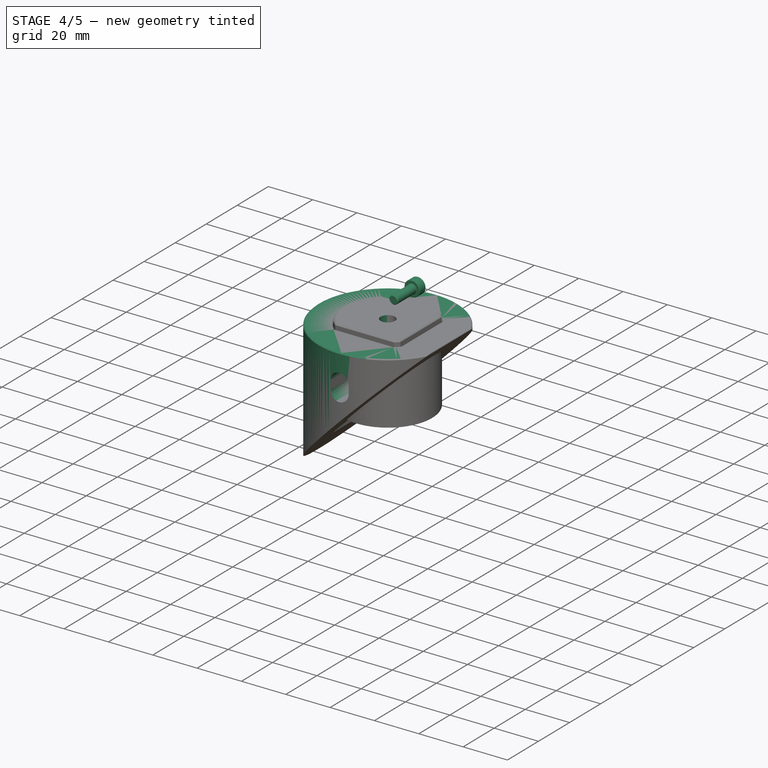
[diagram: stage 4 of 5 — iso view after this stage's code; geometry added in this stage tinted green]
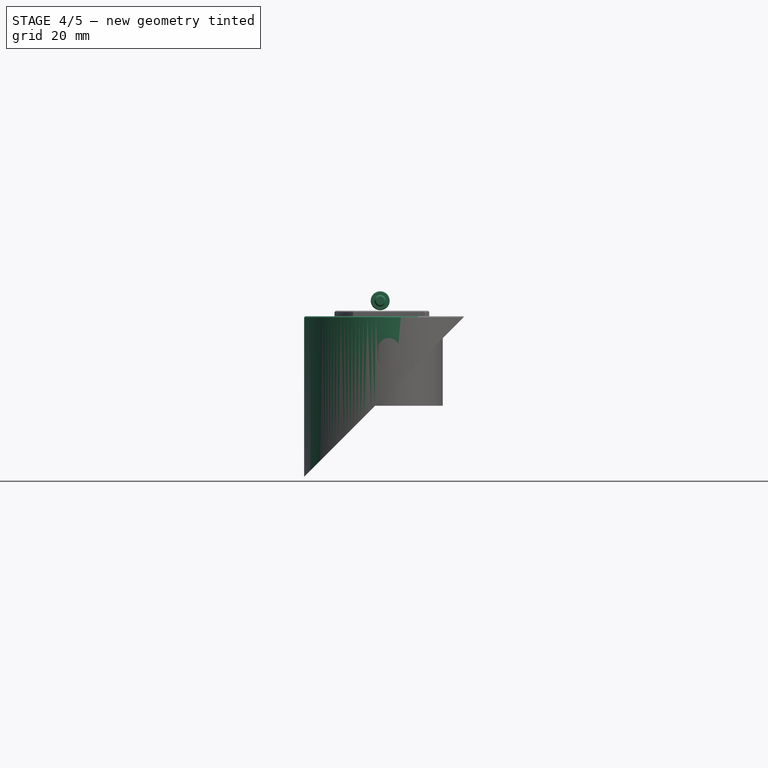
[diagram: stage 4 of 5 — front view after this stage's code; geometry added in this stage tinted green]
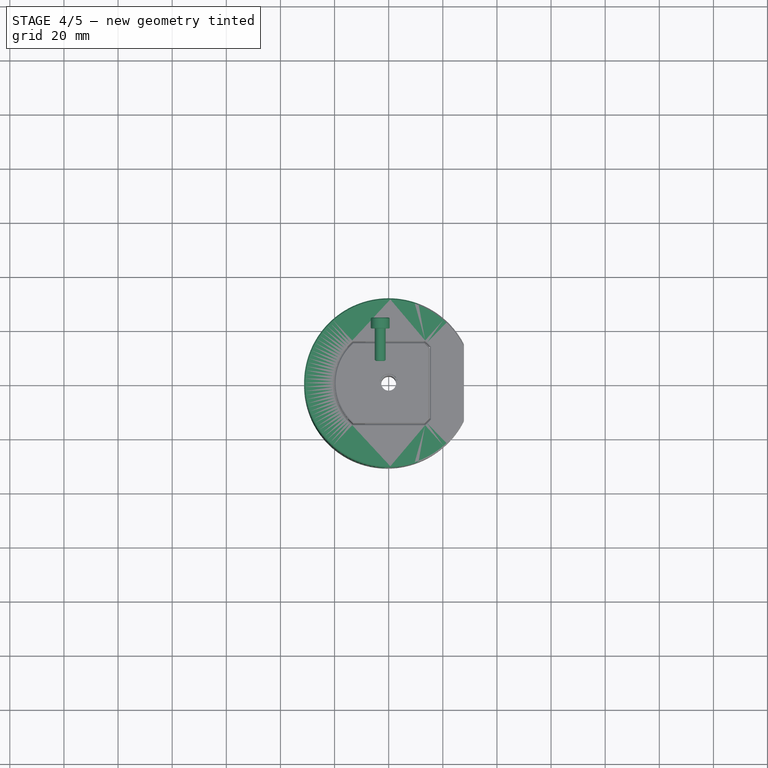
[diagram: stage 4 of 5 — top view after this stage's code; geometry added in this stage tinted green]
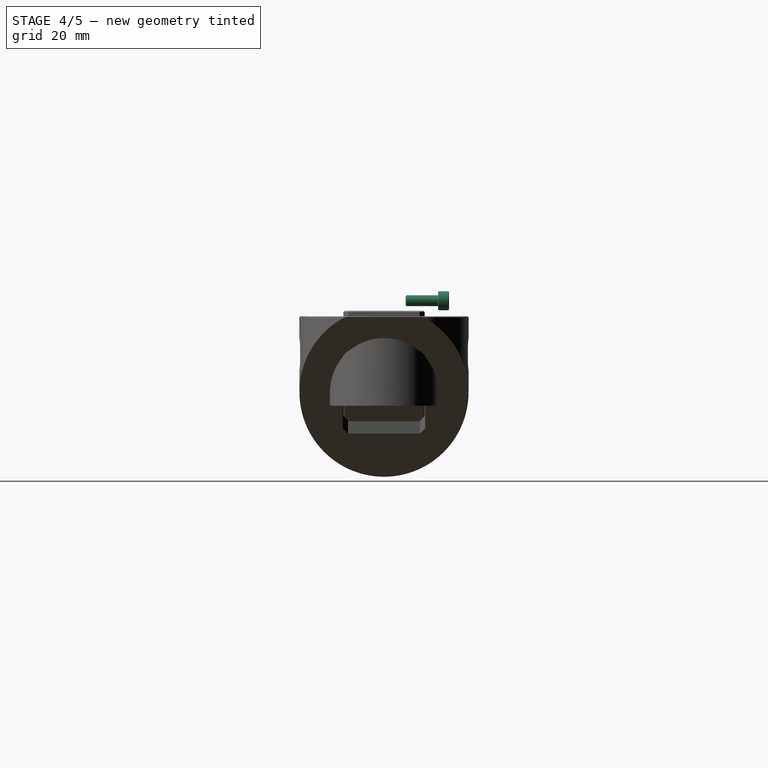
[diagram: stage 4 of 5 — right view after this stage's code; geometry added in this stage tinted green]
FEATURE [Sketcher::SketchObject] Sketch129  label="MirrorCap_Counterbore_Sketch"
  AttachmentOffset = pos=(0,0,19.5) rot=(0,0,1;0rad)
  FullyConstrained = true
  MapMode = 5
  Placement = pos=(0,-19.5,-4.3e-15) rot=(1,0,0;1.5708rad)
  Support = -> [XZ_Plane078]
  expr: .AttachmentOffset.Base.z = <<Common>>#<<Parameters>>.sec_hubdia * 0.75 / 2 + <<Common>>#<<Parameters>>.sec_pthick / 2 + 0.5
  expr: Constraints[10] = <<Common>>#<<Parameters>>.sec_collbolt * 2
  expr: Constraints[11] = <<Common>>#<<Parameters>>.sec_mtvar
  expr: Constraints[15] = <<Common>>#<<Parameters>>.sec_mtvar + <<Common>>#<<Parameters>>.sec_hubdia / 4
  sketch-geometry (7):
    g0: ArcOfCircle CenterX=-8e-16 CenterY=16 CenterZ=0 NormalX=0 NormalY=0 NormalZ=1 AngleXU=0 Radius=4 StartAngle=2e-16 EndAngle=3.14159
    g1: ArcOfCircle CenterX=-1e-16 CenterY=12 CenterZ=0 NormalX=0 NormalY=0 NormalZ=1 AngleXU=0 Radius=4 StartAngle=3.14159 EndAngle=6.28319
    g2: LineSegment StartX=-4 StartY=16 StartZ=0 EndX=-4 EndY=12 EndZ=0
    g3: LineSegment StartX=4 StartY=16 StartZ=0 EndX=4 EndY=12 EndZ=0
    g4: LineSegment StartX=-4 StartY=16 StartZ=0 EndX=4 EndY=12 EndZ=0
    g5: LineSegment StartX=4 StartY=16 StartZ=0 EndX=-4 EndY=12 EndZ=0
    g6: GeomPoint X=0 Y=14 Z=0
  constraints (16):
    c: Tangent(g0,g3) = 1.5708
    c: Tangent(g0,g2) = -1.5708
    c: Tangent(g2,g1) = -1.5708
    c: Tangent(g3,g1) = 1.5708
    c: Vertical(g2)
    c: Equal(g0,g1)
    c: Coincident(g4,g0)
    c: Coincident(g4,g1)
    c: Coincident(g5,g0)
    c: Coincident(g5,g1)
    c: Diameter(g0) = 8
    c: DistanceY(g3,g3) = 4
    c: PointOnObject(g6,g4)
    c: PointOnObject(g6,g-2)
    c: PointOnObject(g6,g5)
    c: DistanceY(g6) = 14
FEATURE [Sketcher::SketchObject] Sketch130  label="MirrorOuter_Profile_Sketch"
  FullyConstrained = true
  MapMode = 5
  Placement = pos=(0,0,0) rot=(1,0,0;1.5708rad)
  Support = -> [XZ_Plane079]
  expr: Constraints[16] = <<Common>>#<<Parameters>>.sec_collbolt * 1.1
  expr: Constraints[17] = <<Common>>#<<Parameters>>.sec_mtvar
  expr: Constraints[18] = <<Common>>#<<Parameters>>.sec_mtvar + <<Common>>#<<Parameters>>.sec_hubdia / 4
  expr: Constraints[21] = <<Common>>#<<Parameters>>.sec_mdia + <<Common>>#<<Parameters>>.sec_thinwall * 2 + 1
  expr: Constraints[26] = (<<Common>>#<<Parameters>>.sec_mthick + <<Common>>#<<Parameters>>.sec_mfloat) * 2
  sketch-geometry (12):
    g0: LineSegment StartX=-33.55 StartY=-33.55 StartZ=0 EndX=33.55 EndY=33.55 EndZ=0
    g1: LineSegment StartX=33.55 StartY=33.55 StartZ=0 EndX=33.55 EndY=-61.55 EndZ=0
    g2: LineSegment StartX=33.55 StartY=-61.55 StartZ=0 EndX=-33.55 EndY=-61.55 EndZ=0
    g3: ArcOfCircle CenterX=0 CenterY=16 CenterZ=0 NormalX=0 NormalY=0 NormalZ=1 AngleXU=0 Radius=2.2 StartAngle=1.7906e-12 EndAngle=3.14159
    g4: ArcOfCircle CenterX=2.9e-15 CenterY=12 CenterZ=0 NormalX=0 NormalY=0 NormalZ=1 AngleXU=0 Radius=2.2 StartAngle=3.14159 EndAngle=6.28319
    g5: LineSegment StartX=-2.2 StartY=16 StartZ=0 EndX=-2.2 EndY=12 EndZ=0
    g6: LineSegment StartX=2.2 StartY=16 StartZ=0 EndX=2.2 EndY=12 EndZ=0
    g7: LineSegment StartX=-2.2 StartY=16 StartZ=0 EndX=2.2 EndY=12 EndZ=0
    g8: LineSegment StartX=-2.2 StartY=12 StartZ=0 EndX=2.2 EndY=16 EndZ=0
    g9: GeomPoint X=3.5503e-12 Y=14 Z=0
    g10: GeomPoint X=0 Y=0 Z=0
    g11: LineSegment StartX=-33.55 StartY=-33.55 StartZ=0 EndX=-33.55 EndY=-61.55 EndZ=0
  constraints (28):
    c: Coincident(g1,g0)
    c: Vertical(g1)
    c: Coincident(g2,g1)
    c: Tangent(g3,g6) = 1.5708
    c: Tangent(g3,g5) = -1.5708
    c: Tangent(g5,g4) = -1.5708
    c: Tangent(g6,g4) = 1.5708
    c: Vertical(g5)
    c: Equal(g3,g4)
    c: PointOnObject(g3,g-2)
    c: Coincident(g7,g3)
    c: Coincident(g7,g4)
    c: Coincident(g8,g4)
    c: Coincident(g8,g3)
    c: PointOnObject(g9,g7)
    c: PointOnObject(g9,g8)
    c: Diameter(g3) = 4.4
    c: DistanceY(g6,g6) = 4
    c: DistanceY(g-1,g9) = 14
    c: Angle(g-1,g0) = 0.785398
    c: PointOnObject(g10,g0)
    c: DistanceX(g2,g2) = 67.1
    c: Symmetric(g2,g1,g-2)
    c: Coincident(g11,g0)
    c: Coincident(g11,g2)
    c: Vertical(g11)
    c: DistanceY(g11,g11) = 28
    c: Coincident(g10,g-1)
FEATURE [PartDesign::AdditiveCylinder] Cylinder010  label="MirrorOuter_Body"
  Angle = 360
  AttacherType = Attacher::AttachEngine3D
  AttachmentOffset = pos=(0,0,-43.25) rot=(0,0,1;0rad)
  FirstAngle = 0
  Height = 71.3279
  MapMode = 5
  Placement = pos=(0,0,-43.25) rot=(0,0,1;0rad)
  Radius = 31.25
  SecondAngle = 0
  Support = -> [XY_Plane079]
  expr: .AttachmentOffset.Base.z = -<<Common>>#<<Parameters>>.sec_mdia / 2 - <<Common>>#<<Parameters>>.sec_mthick
  expr: Height = <<Common>>#<<Parameters>>.sec_mdia / 2 + <<Common>>#<<Parameters>>.sec_mthick + <<Common>>#<<Parameters>>.sec_padheight - <<Common>>#<<Parameters>>.sec_mtvar / 2
  expr: Radius = <<Common>>#<<Parameters>>.sec_mdia / 2
FEATURE [Sketcher::SketchObject] Sketch131  label="MirrorOuter_CounterBore_Sketch"
  AttachmentOffset = pos=(0,0,19.5) rot=(0,0,1;0rad)
  FullyConstrained = true
  MapMode = 5
  Placement = pos=(0,-19.5,-4.3e-15) rot=(1,0,0;1.5708rad)
  Support = -> [XZ_Plane079]
  expr: .AttachmentOffset.Base.z = <<Common>>#<<Parameters>>.sec_hubdia * 0.75 / 2 + <<Common>>#<<Parameters>>.sec_pthick / 2 + 0.5
  expr: Constraints[10] = <<Common>>#<<Parameters>>.sec_collbolt * 2
  expr: Constraints[11] = <<Common>>#<<Parameters>>.sec_mtvar
  expr: Constraints[15] = <<Common>>#<<Parameters>>.sec_mtvar + <<Common>>#<<Parameters>>.sec_hubdia / 4
  sketch-geometry (7):
    g0: ArcOfCircle CenterX=1.7e-15 CenterY=16 CenterZ=0 NormalX=0 NormalY=0 NormalZ=1 AngleXU=0 Radius=4 StartAngle=0 EndAngle=3.14159
    g1: ArcOfCircle CenterX=1.7e-15 CenterY=12 CenterZ=0 NormalX=0 NormalY=0 NormalZ=1 AngleXU=0 Radius=4 StartAngle=3.14159 EndAngle=6.28319
    g2: LineSegment StartX=-4 StartY=16 StartZ=0 EndX=-4 EndY=12 EndZ=0
    g3: LineSegment StartX=4 StartY=16 StartZ=0 EndX=4 EndY=12 EndZ=0
    g4: LineSegment StartX=-4 StartY=16 StartZ=0 EndX=4 EndY=12 EndZ=0
    g5: LineSegment StartX=4 StartY=16 StartZ=0 EndX=-4 EndY=12 EndZ=0
    g6: GeomPoint X=0 Y=14 Z=0
  constraints (16):
    c: Tangent(g0,g3) = 1.5708
    c: Tangent(g0,g2) = -1.5708
    c: Tangent(g2,g1) = -1.5708
    c: Tangent(g3,g1) = 1.5708
    c: Vertical(g2)
    c: Equal(g0,g1)
    c: Coincident(g4,g0)
    c: Coincident(g4,g1)
    c: Coincident(g5,g0)
    c: Coincident(g5,g1)
    c: Diameter(g0) = 8
    c: DistanceY(g3,g3) = 4
    c: PointOnObject(g6,g4)
    c: PointOnObject(g6,g-2)
    c: PointOnObject(g6,g5)
    c: DistanceY(g6) = 14
FEATURE [Sketcher::SketchObject] Sketch132  label="MirrorOuter_Cavity_Sketch"
  FullyConstrained = true
  MapMode = 5
  Support = -> [XY_Plane079]
  expr: Constraints[10] = <<Common>>#<<Parameters>>.sec_hubdia * 0.75 + 0.5
  expr: Constraints[26] = <<Common>>#<<Parameters>>.sec_hubdia * 0.75 + 0.5
  expr: Constraints[4] = <<Common>>#<<Parameters>>.sec_hubdia + 0.5
  sketch-geometry (10):
    g0: LineSegment StartX=-13.3229 StartY=15.25 StartZ=0 EndX=13.3229 EndY=15.25 EndZ=0
    g1: LineSegment StartX=-13.3229 StartY=-15.25 StartZ=0 EndX=13.3229 EndY=-15.25 EndZ=0
    g2: LineSegment StartX=15.25 StartY=13.3229 StartZ=0 EndX=15.25 EndY=-13.3229 EndZ=0
    g3: Circle CenterX=0 CenterY=0 CenterZ=0 NormalX=0 NormalY=0 NormalZ=1 AngleXU=0 Radius=20.25
    g4: ArcOfCircle CenterX=0 CenterY=0 CenterZ=0 NormalX=0 NormalY=0 NormalZ=1 AngleXU=0 Radius=20.25 StartAngle=5.43044 EndAngle=5.56513
    g5: ArcOfCircle CenterX=0 CenterY=0 CenterZ=0 NormalX=0 NormalY=0 NormalZ=1 AngleXU=0 Radius=20.25 StartAngle=0.718056 EndAngle=0.852741
    g6: LineSegment StartX=-13.3229 StartY=15.25 StartZ=0 EndX=-13.3229 EndY=-15.25 EndZ=0
    g7: ArcOfCircle CenterX=0 CenterY=0 CenterZ=0 NormalX=0 NormalY=0 NormalZ=1 AngleXU=0 Radius=20.25 StartAngle=2.28885 EndAngle=2.42354
    g8: ArcOfCircle CenterX=0 CenterY=0 CenterZ=0 NormalX=0 NormalY=0 NormalZ=1 AngleXU=0 Radius=20.25 StartAngle=3.85965 EndAngle=3.99433
    g9: LineSegment StartX=-15.25 StartY=13.3229 StartZ=0 EndX=-15.25 EndY=-13.3229 EndZ=0
  constraints (27):
    c: Horizontal(g0)
    c: Horizontal(g1)
    c: Vertical(g2)
    c: Coincident(g3,g-1)
    c: Diameter(g3) = 40.5
    c: Coincident(g4,g1)
    c: Coincident(g4,g2)
    c: Coincident(g5,g2)
    c: Coincident(g5,g0)
    c: Equal(g4,g3)
    c: DistanceY(g1,g0) = 30.5
    c: Coincident(g6,g0)
    c: Coincident(g6,g1)
    c: Vertical(g6)
    c: Coincident(g5,g4)
    c: Coincident(g5,g-1)
    c: Equal(g5,g3)
    c: Coincident(g7,g4)
    c: Coincident(g7,g0)
    c: Coincident(g8,g4)
    c: Coincident(g8,g1)
    c: Coincident(g9,g7)
    c: Coincident(g9,g8)
    c: Vertical(g9)
    c: Symmetric(g7,g2,g-2)
    c: Equal(g7,g8)
    c: DistanceX(g7,g2) = 30.5
FEATURE [PartDesign::Pocket] Pocket071  label="MirrorOuter_Cavity"
  BaseFeature = -> Cylinder010
  Direction = (0,0,-1)
  Length = 5
  Length2 = 100
  Midplane = true
  Placement = pos=(0,0,-43.25) rot=(0,0,1;0rad)
  Profile = -> Sketch132
  Type = 1
FEATURE [Sketcher::SketchObject] Sketch138  label="MirrorPad_InnerCut_Sketch"
  FullyConstrained = true
  MapMode = 5
  Placement = pos=(0,0,0) rot=(1,0,0;1.5708rad)
  Support = -> [XZ_Plane055]
  expr: Constraints[10] = -<<Common>>#<<Parameters>>.sec_mdia / 2
  expr: Constraints[11] = <<Common>>#<<Parameters>>.sec_hubdia / 8 + 1
  expr: Constraints[8] = -<<Common>>#<<Parameters>>.sec_hubdia * 0.75 / 2
  expr: Constraints[9] = <<Common>>#<<Parameters>>.sec_padheight - <<Common>>#<<Parameters>>.sec_pthick
  sketch-geometry (4):
    g0: LineSegment StartX=-21 StartY=22.0779 StartZ=0 EndX=-15 EndY=22.0779 EndZ=0
    g1: LineSegment StartX=-15 StartY=22.0779 StartZ=0 EndX=-15 EndY=-31.25 EndZ=0
    g2: LineSegment StartX=-15 StartY=-31.25 StartZ=0 EndX=-21 EndY=-31.25 EndZ=0
    g3: LineSegment StartX=-21 StartY=-31.25 StartZ=0 EndX=-21 EndY=22.0779 EndZ=0
  constraints (12):
    c: Coincident(g0,g1)
    c: Coincident(g1,g2)
    c: Coincident(g2,g3)
    c: Coincident(g3,g0)
    c: Horizontal(g0)
    c: Horizontal(g2)
    c: Vertical(g1)
    c: Vertical(g3)
    c: DistanceX(g0) = -15
    c: DistanceY(g0) = 22.0779
    c: DistanceY(g1) = -31.25
    c: DistanceX(g0,g0) = 6
FEATURE [Sketcher::SketchObject] Sketch139  label="MirrorCap_UpperCavity_Sketch"
  FullyConstrained = true
  MapMode = 5
  Placement = pos=(0,0,0) rot=(1,0,0;1.5708rad)
  Support = -> [XZ_Plane078]
  expr: Constraints[10] = <<Common>>#<<Parameters>>.sec_padheight - <<Common>>#<<Parameters>>.sec_mtvar / 2 + 1
  expr: Constraints[11] = <<Common>>#<<Parameters>>.sec_pthick + 1
  expr: Constraints[2] = (<<Common>>#<<Parameters>>.sec_hubdia + 0.5) / 2
  sketch-geometry (4):
    g0: LineSegment StartX=0 StartY=29.0779 StartZ=0 EndX=-20.25 EndY=29.0779 EndZ=0
    g1: LineSegment StartX=-20.25 StartY=29.0779 StartZ=0 EndX=-20.25 EndY=20.0779 EndZ=0
    g2: LineSegment StartX=-20.25 StartY=20.0779 StartZ=0 EndX=0 EndY=-0.172095 EndZ=0
    g3: LineSegment StartX=0 StartY=-0.172095 StartZ=0 EndX=0 EndY=29.0779 EndZ=0
  constraints (12):
    c: PointOnObject(g0,g-2)
    c: Horizontal(g0)
    c: DistanceX(g0,g0) = 20.25
    c: Coincident(g1,g0)
    c: Vertical(g1)
    c: Coincident(g2,g1)
    c: PointOnObject(g2,g-2)
    c: Coincident(g3,g2)
    c: Coincident(g3,g0)
    c: Angle(g-2,g2) = 0.785398
    c: DistanceY(g0) = 29.0779
    c: DistanceY(g1,g1) = 9
FEATURE [Sketcher::SketchObject] Sketch140  label="MirrorOuter_UpperCavity_Sketch"
  AttachmentOffset = pos=(0,0,28.0779) rot=(0,0,1;0rad)
  FullyConstrained = true
  MapMode = 5
  Placement = pos=(0,0,28.0779) rot=(0,0,1;0rad)
  Support = -> [XY_Plane079]
  expr: .AttachmentOffset.Base.z = <<Common>>#<<Parameters>>.sec_padheight - <<Common>>#<<Parameters>>.sec_mtvar / 2
  expr: Constraints[4] = <<Common>>#<<Parameters>>.sec_hubdia + 0.5
  expr: Constraints[5] = <<Common>>#<<Parameters>>.sec_hubdia * 0.75 + 0.5
  sketch-geometry (2):
    g0: ArcOfCircle CenterX=0 CenterY=0 CenterZ=0 NormalX=0 NormalY=0 NormalZ=1 AngleXU=0 Radius=20.25 StartAngle=2.28885 EndAngle=3.99433
    g1: LineSegment StartX=-13.3229 StartY=15.25 StartZ=0 EndX=-13.3229 EndY=-15.25 EndZ=0
  constraints (6):
    c: Coincident(g0,g-1)
    c: Coincident(g1,g0)
    c: Coincident(g1,g0)
    c: Vertical(g1)
    c: Diameter(g0) = 40.5
    c: DistanceY(g1,g1) = 30.5
FEATURE [PartDesign::Pocket] Pocket084  label="MirrorOuter_UpperCavity"
  BaseFeature = -> Pocket071
  Direction = (0,0,-1)
  Length = 8.5
  Length2 = 100
  Placement = pos=(0,0,-43.25) rot=(0,0,1;0rad)
  Profile = -> Sketch140
  Type = 0
  expr: Length = <<Common>>#<<Parameters>>.sec_pthick + 0.5
FEATURE [PartDesign::Pocket] Pocket085  label="MirrorOuter_Profile"
  BaseFeature = -> Pocket084
  Direction = (0,1,2e-16)
  Length = 5
  Length2 = 100
  Midplane = true
  Placement = pos=(0,0,-43.25) rot=(0,0,1;0rad)
  Profile = -> Sketch130
  Type = 1
FEATURE [PartDesign::Pocket] Pocket111  label="MirrorPad_Flat_CentralHole"
  BaseFeature = -> Pocket110
  Direction = (0,0,-1)
  Length = 5
  Length2 = 100
  Placement = pos=(0,0,0) rot=(1,0,0;1.5708rad)
  Profile = -> Sketch180
  Reversed = true
  Type = 1
FEATURE [PartDesign::Pocket] Pocket112  label="MirrorPad_Flat_Outer"
  BaseFeature = -> Pocket111
  Direction = (0,0,-1)
  Length = 5
  Length2 = 100
  Midplane = true
  Placement = pos=(0,0,0) rot=(1,0,0;1.5708rad)
  Profile = -> Sketch181
  Type = 1
FEATURE [Sketcher::SketchObject] Sketch183  label="MirrorPad_Flat_InnerShaft_Sketch"
  FullyConstrained = true
  MapMode = 5
  Placement = pos=(0,0,0) rot=(1,0,0;1.5708rad)
  Support = -> [XZ_Plane088]
  expr: Constraints[1] = <<Common>>#<<Parameters>>.sec_collbolt * 1.1
  expr: Constraints[2] = <<Common>>#<<Parameters>>.sec_mtvar + <<Common>>#<<Parameters>>.sec_hubdia / 4
  sketch-geometry (1):
    g0: Circle CenterX=0 CenterY=14 CenterZ=0 NormalX=0 NormalY=0 NormalZ=1 AngleXU=0 Radius=2.2
  constraints (3):
    c: PointOnObject(g0,g-2)
    c: Diameter(g0) = 4.4
    c: DistanceY(g0) = 14
FEATURE [Sketcher::SketchObject] Sketch182  label="MirrorPad_Flat_InnerNut_Sketch"
  ExternalGeometry = -> [Sketch183]
  FullyConstrained = true
  MapMode = 5
  Placement = pos=(0,0,0) rot=(1,0,0;1.5708rad)
  Support = -> [XZ_Plane088]
  sketch-geometry (10):
    g0: LineSegment StartX=2.10733 StartY=10.35 StartZ=0 EndX=4.21466 EndY=14 EndZ=0
    g1: LineSegment StartX=4.21466 StartY=14 StartZ=0 EndX=2.10733 EndY=17.65 EndZ=0
    g2: LineSegment StartX=2.10733 StartY=17.65 StartZ=0 EndX=-2.10733 EndY=17.65 EndZ=0
    g3: LineSegment StartX=-2.10733 StartY=17.65 StartZ=0 EndX=-4.21466 EndY=14 EndZ=0
    g4: LineSegment StartX=-4.21466 StartY=14 StartZ=0 EndX=-2.10733 EndY=10.35 EndZ=0
    g5: LineSegment StartX=-2.10733 StartY=10.35 StartZ=0 EndX=2.10733 EndY=10.35 EndZ=0
    g6: Circle CenterX=0 CenterY=14 CenterZ=0 NormalX=0 NormalY=0 NormalZ=1 AngleXU=0 Radius=4.21466
    g7: LineSegment StartX=-2.10733 StartY=17.65 StartZ=0 EndX=2.10733 EndY=10.35 EndZ=0
    g8: LineSegment StartX=2.10733 StartY=17.65 StartZ=0 EndX=-2.10733 EndY=10.35 EndZ=0
    g9: LineSegment StartX=4.21466 StartY=14 StartZ=0 EndX=-4.21466 EndY=14 EndZ=0
  constraints (26):
    c: Coincident(g0,g1)
    c: Coincident(g1,g2)
    c: Coincident(g2,g3)
    c: Coincident(g3,g4)
    c: Coincident(g4,g5)
    c: Coincident(g5,g0)
    c: PointOnObject(g0,g6)
    c: PointOnObject(g1,g6)
    c: PointOnObject(g2,g6)
    c: PointOnObject(g3,g6)
    c: PointOnObject(g4,g6)
    c: PointOnObject(g5,g6)
    c: Horizontal(g2)
    c: DistanceY(g0,g1) = 7.3
    c: Coincident(g7,g2)
    c: Coincident(g7,g0)
    c: Coincident(g8,g1)
    c: Coincident(g8,g4)
    c: Coincident(g9,g0)
    c: Coincident(g9,g3)
    c: Horizontal(g9)
    c: Angle(g9,g8) = 1.0472
    c: Angle(g7,g9) = 1.0472
    c: PointOnObject(g6,g8)
    c: PointOnObject(g6,g9)
    c: Coincident(g6,g-3)
FEATURE [PartDesign::Pocket] Pocket114  label="MirrorPad_Flat_InnerShaft"
  BaseFeature = -> Pocket112
  Direction = (0,1,2e-16)
  Length = 5
  Length2 = 100
  Midplane = true
  Placement = pos=(0,0,0) rot=(1,0,0;1.5708rad)
  Profile = -> Sketch183
  Type = 1
FEATURE [Part::FeaturePython] Screw005  label="M4x12-Screw001"  # Fasteners workbench fastener (typed FeaturePython)
  AttachedBy = Origin
  AttachedTo = MirrorPad#Local_CS225
  AttachmentOffset = pos=(0,0,-5) rot=(1,0,0;3.14159rad)
  Placement = pos=(-3.125,20,33.799) rot=(0.57735,0.57735,0.57735;4.18879rad)
  SolverId = Asm4EE
  diameter = 5
  invert = false
  leftHanded = false
  length = 3
  lengthCustom = 12
  matchOuter = false
  offset = 0
  thread = false
  type = 45
  expr: Placement = MirrorPad.Placement * Local_CS225.Placement * AttachmentOffset
FEATURE [Sketcher::SketchObject] Sketch  label="MirrorOuter_CavityGroove_Sketch"
  ExternalGeometry = -> [Pocket085]
  FullyConstrained = true
  MapMode = 5
  Placement = pos=(0,0,0) rot=(1,0,0;1.5708rad)
  Support = -> [XZ_Plane079]
  sketch-geometry (3):
    g0: LineSegment StartX=-20.25 StartY=19.5779 StartZ=0 EndX=0 EndY=19.5779 EndZ=0
    g1: LineSegment StartX=-20.25 StartY=19.5779 StartZ=0 EndX=0 EndY=-0.672095 EndZ=0
    g2: LineSegment StartX=0 StartY=19.5779 StartZ=0 EndX=0 EndY=-0.672095 EndZ=0
  constraints (8):
    c: Coincident(g0,g-3)
    c: Horizontal(g0)
    c: Coincident(g1,g0)
    c: PointOnObject(g1,g-2)
    c: Angle(g1,g0) = 0.785398
    c: Coincident(g2,g0)
    c: Coincident(g2,g1)
    c: Vertical(g2)
FEATURE [PartDesign::Groove] Groove  label="MirrorOuter_CavityGroove"
  Angle = 90
  Axis = (-3e-16,3e-16,1)
  Base = (0,0,0)
  BaseFeature = -> Pocket085
  Midplane = true
  Placement = pos=(0,0,-43.25) rot=(0,0,1;0rad)
  Profile = -> Sketch
  ReferenceAxis = -> Z_Axis079
  Reversed = true
FEATURE [PartDesign::Pocket] Pocket192  label="MirrorOuter_CounterBore"
  BaseFeature = -> Groove
  Direction = (0,1,2e-16)
  Length = 5
  Length2 = 5
  Placement = pos=(0,0,-43.25) rot=(0,0,1;0rad)
  Profile = -> Sketch131
  ReferenceAxis = -> Sketch131 [N_Axis]
  Reversed = true
  Type = 1
FEATURE [PartDesign::Mirrored] Mirrored009  label="MirrorOuter_Mirrored"
  BaseFeature = -> Pocket192
  MirrorPlane = -> XZ_Plane079
  Originals = -> [Pocket192]
  Placement = pos=(0,0,-43.25) rot=(0,0,1;0rad)
FEATURE [PartDesign::Chamfer] Chamfer003  label="MirrorOuter_Chamfer"
  Angle = 45
  Base = -> Mirrored009 [Edge2,Edge11,Edge27,Edge25,Edge23,Edge21,Edge20,Edge22,Edge24,Edge26]
  BaseFeature = -> Mirrored009
  ChamferType = 0
  FlipDirection = false
  Placement = pos=(0,0,-43.25) rot=(0,0,1;0rad)
  Size = 0.4
  Size2 = 1
  SupportTransform = false
  UseAllEdges = false
FEATURE [PartDesign::Body] Body022026  label="MirrorOuterPad"
  Group = -> [Cylinder010,Sketch132,Pocket071,Sketch130,Sketch131,Sketch140,Pocket084,Pocket085,Local_CS226,Local_CS228,Sketch,Groove,Pocket192,Mirrored009,Chamfer003]
  Origin = -> Origin079
  Placement = pos=(-3.125,0,854.799) rot=(0,0,1;0rad)
  Tip = -> Chamfer003
  expr: .Placement.Base.x = -<<Common>>#<<Parameters>>.sec_offset_x
  expr: .Placement.Base.z = <<Common>>#<<Parameters>>.datum_sec_mirrorpad
FEATURE [PartDesign::Pocket] Pocket193  label="MirrorPad_Flat_InnerCut"
  BaseFeature = -> Pocket114
  Direction = (0,1,2e-16)
  Length = 5
  Length2 = 5
  Midplane = true
  Placement = pos=(0,0,0) rot=(1,0,0;1.5708rad)
  Profile = -> Sketch184
  ReferenceAxis = -> Sketch184 [N_Axis]
  Type = 1
FEATURE [Sketcher::SketchObject] Sketch286  label="MirrorPad_Flat_Insert_Sketch"
  ExternalGeometry = -> [Pocket114]
  FullyConstrained = true
  MapMode = 5
  Placement = pos=(0,-15,0) rot=(1,0,0;1.5708rad)
  Support = -> [Pad045]
  expr: Constraints[1] = <<Common>>#<<Parameters>>.acc_M4Bore
  sketch-geometry (1):
    g0: Circle CenterX=0 CenterY=14 CenterZ=0 NormalX=0 NormalY=0 NormalZ=1 AngleXU=0 Radius=2.8
  constraints (2):
    c: Coincident(g0,g-3)
    c: Diameter(g0) = 5.6
FEATURE [PartDesign::Pocket] Pocket194  label="MirrorPad_Flat_Insert"
  BaseFeature = -> Pocket193
  Direction = (0,1,-2e-16)
  Length = 4
  Length2 = 5
  Placement = pos=(0,0,0) rot=(1,0,0;1.5708rad)
  Profile = -> Sketch286
  ReferenceAxis = -> Sketch286 [N_Axis]
  Type = 0
FEATURE [PartDesign::Mirrored] Mirrored010  label="MirrorPad_Flat_Mirrored"
  BaseFeature = -> Pocket194
  MirrorPlane = -> XZ_Plane088
  Originals = -> [Pocket194]
  Placement = pos=(0,0,0) rot=(1,0,0;1.5708rad)
FEATURE [PartDesign::CoordinateSystem] Local_CS248  label="LCS_MirrorPad_Flat_SideNut_F"
  AttacherType = Attacher::AttachEngine3D
  MapMode = 11
  Placement = pos=(0,-15,14) rot=(0.57735,-0.57735,-0.57735;4.18879rad)
  Support = -> [Mirrored010]
FEATURE [PartDesign::CoordinateSystem] Local_CS249  label="LCS_MirrorPad_Flat_SideNut_A"
  AttacherType = Attacher::AttachEngine3D
  MapMode = 11
  Placement = pos=(0,15,14) rot=(0.57735,-0.57735,0.57735;2.0944rad)
  Support = -> [Mirrored010]
FEATURE [PartDesign::Chamfer] Chamfer004  label="MirrorPad_Flat_Chamfer"
  Angle = 45
  Base = -> Mirrored010 [Edge29,Edge24,Edge12,Edge15,Edge16,Edge19,Edge21,Edge3,Edge2,Edge1,Edge4,Edge5,Edge9,Edge8,Edge7,Edge6,Edge26,Edge30]
  BaseFeature = -> Mirrored010
  ChamferType = 0
  FlipDirection = false
  Placement = pos=(0,0,0) rot=(1,0,0;1.5708rad)
  Size = 0.4
  Size2 = 1
  SupportTransform = false
  UseAllEdges = false
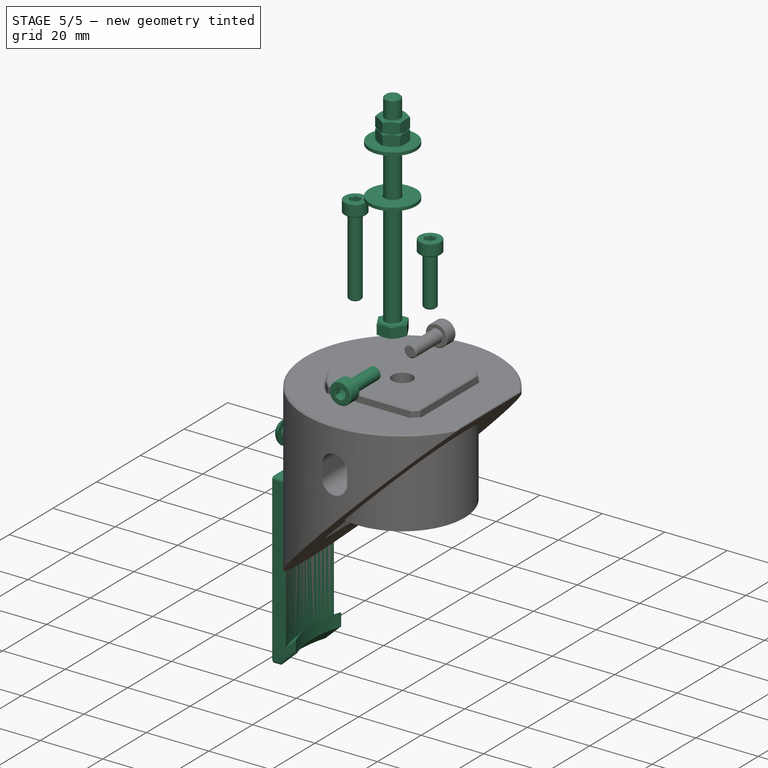
[diagram: stage 5 of 5 — iso view after this stage's code; geometry added in this stage tinted green]
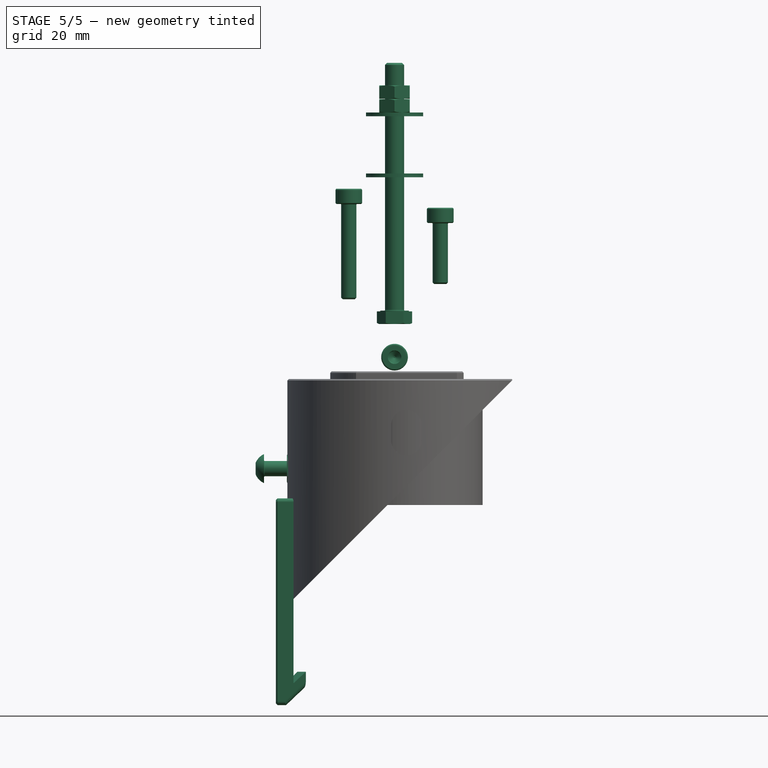
[diagram: stage 5 of 5 — front view after this stage's code; geometry added in this stage tinted green]
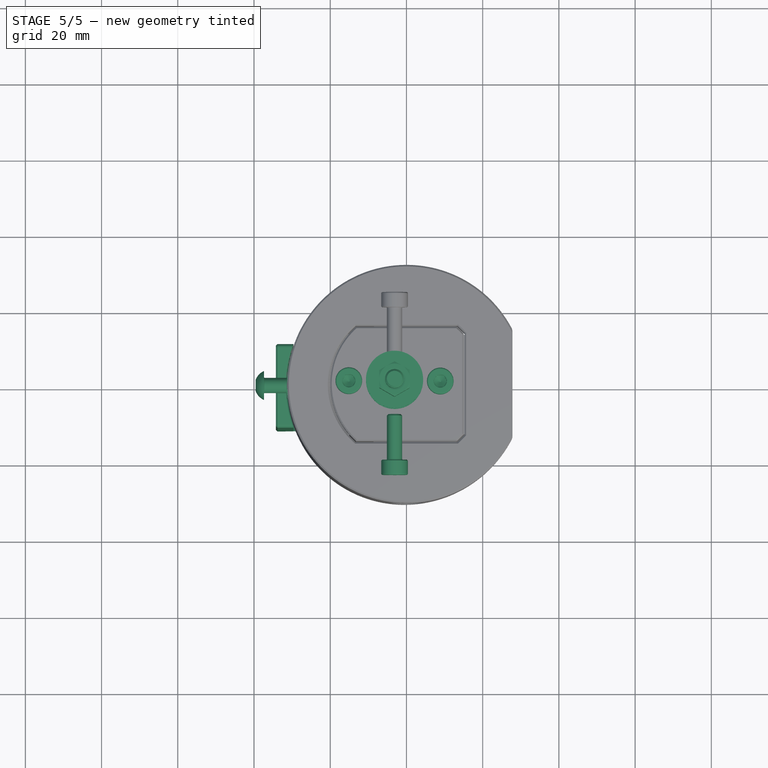
[diagram: stage 5 of 5 — top view after this stage's code; geometry added in this stage tinted green]
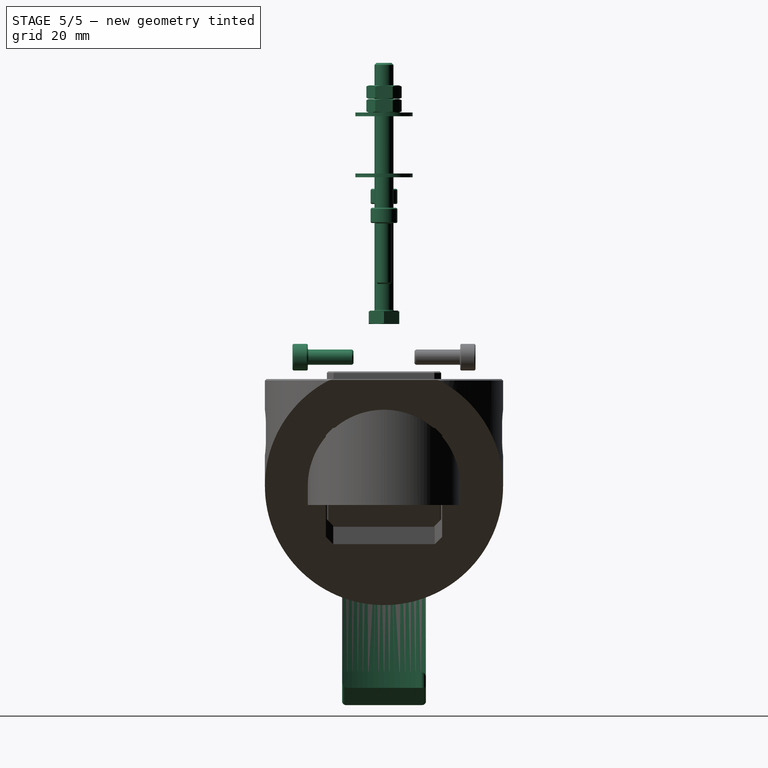
[diagram: stage 5 of 5 — right view after this stage's code; geometry added in this stage tinted green]
FEATURE [Sketcher::SketchObject] Sketch134  label="MirrorCap_ClipBolt_Sketch"
  FullyConstrained = true
  MapMode = 5
  Placement = pos=(0,0,0) rot=(0.57735,0.57735,0.57735;2.0944rad)
  Support = -> [YZ_Plane078]
  expr: Constraints[1] = <<Common>>#<<Parameters>>.sec_collbolt * 0.8
  expr: Constraints[2] = -(<<Common>>#<<Parameters>>.sec_hubdia * 0.75 + 0.5) / 2
  sketch-geometry (1):
    g0: Circle CenterX=0 CenterY=-15.25 CenterZ=0 NormalX=0 NormalY=0 NormalZ=1 AngleXU=0 Radius=1.6
  constraints (3):
    c: PointOnObject(g0,g-2)
    c: Diameter(g0) = 3.2
    c: DistanceY(g-1,g0) = -15.25
FEATURE [Sketcher::SketchObject] Sketch135  label="MirrorCap_ClipRecess_Sketch"
  FullyConstrained = true
  MapMode = 5
  Support = -> [XY_Plane078]
  expr: Constraints[12] = <<Common>>#<<Parameters>>.sec_thinwall * 2
  expr: Constraints[8] = <<Common>>#<<Parameters>>.sec_mdia + 0.7
  expr: Constraints[9] = <<Common>>#<<Parameters>>.sec_collbolt * 5.5 + 0.5
  sketch-geometry (5):
    g0: ArcOfCircle CenterX=0 CenterY=0 CenterZ=0 NormalX=0 NormalY=0 NormalZ=1 AngleXU=0 Radius=31.6 StartAngle=2.7776 EndAngle=3.50559
    g1: LineSegment StartX=-35.2 StartY=11.25 StartZ=0 EndX=-29.5296 EndY=11.25 EndZ=0
    g2: LineSegment StartX=-35.2 StartY=-11.25 StartZ=0 EndX=-29.5296 EndY=-11.25 EndZ=0
    g3: LineSegment StartX=-35.2 StartY=11.25 StartZ=0 EndX=-35.2 EndY=-11.25 EndZ=0
    g4: GeomPoint X=-31.6 Y=0 Z=0
  constraints (13):
    c: Coincident(g0,g-1)
    c: Coincident(g1,g0)
    c: Coincident(g2,g0)
    c: Horizontal(g2)
    c: Horizontal(g1)
    c: Coincident(g3,g1)
    c: Coincident(g3,g2)
    c: Symmetric(g2,g1,g-1)
    c: Diameter(g0) = 63.2
    c: DistanceY(g3,g3) = 22.5
    c: PointOnObject(g4,g0)
    c: PointOnObject(g4,g-1)
    c: DistanceX(g1,g4) = 3.6
FEATURE [PartDesign::AdditiveBox] Box  label="SecondaryClip_Base"
  AttacherType = Attacher::AttachEngine3D
  AttachmentOffset = pos=(-34.25,-11,-59.5343) rot=(0,0,1;0rad)
  Height = 56.2843
  Length = 9
  MapMode = 5
  Placement = pos=(-34.25,-11,-59.5343) rot=(0,0,1;0rad)
  Support = -> [XY_Plane081]
  Width = 22
  expr: .AttachmentOffset.Base.x = -<<Common>>#<<Parameters>>.sec_mdia / 2 - 3
  expr: .AttachmentOffset.Base.y = -<<Common>>#<<Parameters>>.sec_collbolt * 5.5 / 2
  expr: .AttachmentOffset.Base.z = -<<Common>>#<<Parameters>>.sec_mdia / 2 - <<Common>>#<<Parameters>>.sec_mfloat * sqrt(2) - <<Common>>#<<Parameters>>.sec_mthick * sqrt(2) - <<Common>>#<<Parameters>>.sec_fthick * 2 * sqrt(2)
  expr: Height = <<Common>>#<<Parameters>>.sec_mdia / 2 + <<Common>>#<<Parameters>>.sec_mfloat * sqrt(2) + <<Common>>#<<Parameters>>.sec_mthick * sqrt(2) + <<Common>>#<<Parameters>>.sec_fthick * 2 * sqrt(2) + <<Common>>#<<Parameters>>.sec_sidebolt * 3 - (<<Common>>#<<Parameters>>.sec_hubdia * 0.75 + 0.5) / 2
  expr: Length = <<Common>>#<<Parameters>>.sec_fthick * 3
  expr: Width = <<Common>>#<<Parameters>>.sec_collbolt * 5.5
FEATURE [Sketcher::SketchObject] Sketch136  label="SecondaryClip_Profile_Sketch"
  FullyConstrained = true
  MapMode = 5
  Placement = pos=(0,0,0) rot=(0.57735,0.57735,0.57735;2.0944rad)
  Support = -> [YZ_Plane081]
  expr: Constraints[15] = (<<Common>>#<<Parameters>>.sec_hubdia * 0.75 + 0.5) / 2
  expr: Constraints[7] = <<Common>>#<<Parameters>>.sec_collbolt * 1.1
  expr: Constraints[8] = <<Common>>#<<Parameters>>.sec_mtvar
  sketch-geometry (7):
    g0: ArcOfCircle CenterX=0 CenterY=-13.25 CenterZ=0 NormalX=0 NormalY=0 NormalZ=1 AngleXU=0 Radius=2.2 StartAngle=4e-16 EndAngle=3.14159
    g1: ArcOfCircle CenterX=-1e-16 CenterY=-17.25 CenterZ=0 NormalX=0 NormalY=0 NormalZ=1 AngleXU=0 Radius=2.2 StartAngle=3.14159 EndAngle=6.28319
    g2: LineSegment StartX=-2.2 StartY=-13.25 StartZ=0 EndX=-2.2 EndY=-17.25 EndZ=0
    g3: LineSegment StartX=2.2 StartY=-13.25 StartZ=0 EndX=2.2 EndY=-17.25 EndZ=0
    g4: GeomPoint X=0 Y=-15.25 Z=0
    g5: LineSegment StartX=0 StartY=-13.25 StartZ=0 EndX=0 EndY=-15.25 EndZ=0
    g6: LineSegment StartX=0 StartY=-15.25 StartZ=0 EndX=-1e-16 EndY=-17.25 EndZ=0
  constraints (16):
    c: Tangent(g0,g3) = 1.5708
    c: Tangent(g0,g2) = -1.5708
    c: Tangent(g2,g1) = -1.5708
    c: Tangent(g3,g1) = 1.5708
    c: Vertical(g2)
    c: Equal(g0,g1)
    c: PointOnObject(g0,g-2)
    c: Diameter(g0) = 4.4
    c: DistanceY(g3,g3) = 4
    c: Coincident(g5,g0)
    c: Coincident(g5,g4)
    c: Vertical(g5)
    c: Coincident(g6,g4)
    c: Coincident(g6,g1)
    c: Equal(g5,g6)
    c: DistanceY(g4,g-1) = 15.25
FEATURE [PartDesign::Pocket] Pocket077  label="SecondaryClip_Profile_Cut"
  BaseFeature = -> Box
  Direction = (-1,2e-16,-3e-16)
  Length = 5
  Length2 = 100
  Placement = pos=(-34.25,-11,-59.5343) rot=(0,0,1;0rad)
  Profile = -> Sketch136
  Type = 1
FEATURE [Sketcher::SketchObject] Sketch226  label="MirrorCap_MirrorCavity_Sketch"
  FullyConstrained = true
  MapMode = 5
  Placement = pos=(0,0,-2) rot=(0,-1,0;0.785398rad)
  Support = -> [DatumPlane052]
  expr: Constraints[6] = <<Common>>#<<Parameters>>.sec_mdia / 2 + 0.7 / 2
  expr: Constraints[7] = (<<Common>>#<<Parameters>>.sec_mdia / 2 + 0.7 / 2) * sqrt(2)
  sketch-geometry (5):
    g0: Ellipse CenterX=0 CenterY=0 CenterZ=0 NormalX=0 NormalY=0 NormalZ=1 MajorRadius=44.6891 MinorRadius=31.6 AngleXU=0
    g1: LineSegment StartX=44.6891 StartY=0 StartZ=0 EndX=-44.6891 EndY=0 EndZ=0
    g2: LineSegment StartX=0 StartY=31.6 StartZ=0 EndX=0 EndY=-31.6 EndZ=0
    g3: GeomPoint X=31.6 Y=0 Z=0
    g4: GeomPoint X=-31.6 Y=0 Z=0
  constraints (5):
    c: InternalAlignment(g1-g4 -> g0) x4
    c: Coincident(g0,g-1)
    c: PointOnObject(g1,g-1)
    c: DistanceY(g2) = 31.6
    c: DistanceX(g1) = 44.6891
FEATURE [Sketcher::SketchObject] Sketch227  label="MirrorCap_ClipNut_Sketch"
  ExternalGeometry = -> [Sketch134]
  FullyConstrained = true
  MapMode = 5
  Placement = pos=(0,0,0) rot=(0.57735,0.57735,0.57735;2.0944rad)
  Support = -> [YZ_Plane078]
  sketch-geometry (7):
    g0: LineSegment StartX=3.65 StartY=-17.3573 StartZ=0 EndX=3.65 EndY=-13.1427 EndZ=0
    g1: LineSegment StartX=3.65 StartY=-13.1427 StartZ=0 EndX=0 EndY=-11.0353 EndZ=0
    g2: LineSegment StartX=0 StartY=-11.0353 StartZ=0 EndX=-3.65 EndY=-13.1427 EndZ=0
    g3: LineSegment StartX=-3.65 StartY=-13.1427 StartZ=0 EndX=-3.65 EndY=-17.3573 EndZ=0
    g4: LineSegment StartX=-3.65 StartY=-17.3573 StartZ=0 EndX=-4e-16 EndY=-19.4647 EndZ=0
    g5: LineSegment StartX=-4e-16 StartY=-19.4647 StartZ=0 EndX=3.65 EndY=-17.3573 EndZ=0
    g6: Circle CenterX=0 CenterY=-15.25 CenterZ=0 NormalX=0 NormalY=0 NormalZ=1 AngleXU=0 Radius=4.21466
  constraints (16):
    c: Coincident(g0,g1)
    c: Coincident(g1,g2)
    c: Coincident(g2,g3)
    c: Coincident(g3,g4)
    c: Coincident(g4,g5)
    c: Coincident(g5,g0)
    c: Equal(g0, g1-g5) x5
    c: PointOnObject(g0,g6)
    c: PointOnObject(g1,g6)
    c: PointOnObject(g2,g6)
    c: PointOnObject(g3,g6)
    c: PointOnObject(g4,g6)
    c: PointOnObject(g5,g6)
    c: Coincident(g6,g-3)
    c: PointOnObject(g1,g-2)
    c: DistanceX(g2,g0) = 7.3
FEATURE [Sketcher::SketchObject] Sketch228  label="SecondaryClip_Inner_Sketch"
  FullyConstrained = true
  MapMode = 5
  Placement = pos=(0,0,0) rot=(1,0,0;1.5708rad)
  Support = -> [XZ_Plane081]
  expr: Constraints[10] = <<Common>>#<<Parameters>>.sec_fthick
  expr: Constraints[11] = <<Common>>#<<Parameters>>.sec_mdia / 2 + 0.7 / 2
  expr: Constraints[12] = <<Common>>#<<Parameters>>.sec_sidebolt * 3
  expr: Constraints[13] = <<Common>>#<<Parameters>>.sec_mdia / 2 + <<Common>>#<<Parameters>>.sec_mthick * sqrt(2) + <<Common>>#<<Parameters>>.sec_mfloat * sqrt(2) + 0.7
  expr: Constraints[14] = <<Common>>#<<Parameters>>.sec_sidebolt * 3
  expr: Constraints[19] = <<Common>>#<<Parameters>>.sec_fthick * sqrt(2)
  expr: Constraints[25] = <<Common>>#<<Parameters>>.sec_fthick / 2
  expr: Constraints[26] = <<Common>>#<<Parameters>>.sec_fthick
  sketch-geometry (9):
    g0: LineSegment StartX=-31.6 StartY=0 StartZ=0 EndX=-31.6 EndY=-51.749 EndZ=0
    g1: LineSegment StartX=-31.6 StartY=-51.749 StartZ=0 EndX=-28.6 EndY=-48.749 EndZ=0
    g2: LineSegment StartX=-36.1 StartY=-60.749 StartZ=0 EndX=-19.6 EndY=-60.749 EndZ=0
    g3: LineSegment StartX=-19.6 StartY=-60.749 StartZ=0 EndX=-19.6 EndY=0 EndZ=0
    g4: LineSegment StartX=-19.6 StartY=0 StartZ=0 EndX=-31.6 EndY=0 EndZ=0
    g5: LineSegment StartX=-28.6 StartY=-48.749 StartZ=0 EndX=-28.6 EndY=-52.9916 EndZ=0
    g6: LineSegment StartX=-28.6 StartY=-52.9916 StartZ=0 EndX=-33.1 EndY=-57.4916 EndZ=0
    g7: LineSegment StartX=-33.1 StartY=-57.4916 StartZ=0 EndX=-36.1 EndY=-57.4916 EndZ=0
    g8: LineSegment StartX=-36.1 StartY=-57.4916 StartZ=0 EndX=-36.1 EndY=-60.749 EndZ=0
  constraints (27):
    c: PointOnObject(g0,g-1)
    c: Vertical(g0)
    c: Coincident(g1,g0)
    c: Horizontal(g2)
    c: Coincident(g3,g2)
    c: Vertical(g3)
    c: Coincident(g4,g3)
    c: Coincident(g4,g0)
    c: PointOnObject(g3,g-1)
    c: Angle(g1,g0) = 0.785398
    c: DistanceX(g0,g1) = 3
    c: DistanceX(g0,g-1) = 31.6
    c: DistanceX(g4,g4) = 12
    c: DistanceY(g0,g0) = 51.749
    c: DistanceY(g2,g1) = 12
    c: Coincident(g5,g1)
    c: Vertical(g5)
    c: Coincident(g6,g5)
    c: Parallel(g6,g1)
    c: DistanceY(g5,g5) = 4.24264
    c: Coincident(g7,g6)
    c: Horizontal(g7)
    c: Coincident(g8,g7)
    c: Coincident(g8,g2)
    c: Vertical(g8)
    c: DistanceX(g6,g0) = 1.5
    c: DistanceX(g7,g7) = 3
FEATURE [PartDesign::Groove] Groove003  label="SecondaryClip_Inner_Groove"
  Angle = 360
  Axis = (-3e-16,3e-16,1)
  Base = (0,0,0)
  BaseFeature = -> Pocket077
  Placement = pos=(-34.25,-11,-59.5343) rot=(0,0,1;0rad)
  Profile = -> Sketch228
  ReferenceAxis = -> Z_Axis081
  Reversed = true
FEATURE [PartDesign::Fillet] Fillet010  label="SecondaryClip_Fillet"
  Base = -> Groove003 [Edge9,Edge10,Edge18,Edge19,Edge20,Edge15,Edge14]
  BaseFeature = -> Groove003
  Placement = pos=(-34.25,-11,-59.5343) rot=(0,0,1;0rad)
  Radius = 1
  SupportTransform = false
  UseAllEdges = false
  expr: Radius = <<Common>>#<<Parameters>>.sec_fillet / 2
FEATURE [PartDesign::CoordinateSystem] Local_CS224  label="LCS_SideNut_F"
  AttacherType = Attacher::AttachEngine3D
  MapMode = 11
  Placement = pos=(0,-15,14) rot=(0.57735,-0.57735,-0.57735;4.18879rad)
  Support = -> [Mirrored008]
FEATURE [PartDesign::CoordinateSystem] Local_CS225  label="LCS_SideNut_A"
  AttacherType = Attacher::AttachEngine3D
  MapMode = 11
  Placement = pos=(0,15,14) rot=(0.57735,-0.57735,0.57735;2.0944rad)
  Support = -> [Mirrored008]
FEATURE [PartDesign::Chamfer] Chamfer001  label="SecondaryClip_Chamfer"
  Angle = 45
  Base = -> Fillet010 [Edge4,Edge6,Edge8,Edge7,Edge5,Edge3,Edge1,Edge2,Edge12,Edge10,Edge9,Edge11]
  BaseFeature = -> Fillet010
  ChamferType = 0
  FlipDirection = false
  Placement = pos=(-34.25,-11,-59.5343) rot=(0,0,1;0rad)
  Size = 0.4
  Size2 = 1
  SupportTransform = false
  UseAllEdges = false
FEATURE [PartDesign::Body] Body001  label="MirrorPad"
  Group = -> [Sketch061,Pad,Sketch001,DatumPlane013,Sketch002,Sketch062,DatumPlane001,Sketch005,Local_CS123,Local_CS003,Local_CS053,DatumPlane031,Pocket049,Pocket050,Pocket060,Pocket065,PolarPattern,Sketch125,Sketch126,Pocket066,Sketch138,Local_CS224,Local_CS225,Local_CS227,Pocket190,Pocket191,Mirrored008,Chamfer002]
  Origin = -> Origin055
  Placement = pos=(-3.125,0,854.799) rot=(0,0,1;0rad)
  Tip = -> Chamfer002
  expr: .Placement.Base.x = -<<Common>>#<<Parameters>>.sec_offset_x
  expr: .Placement.Base.z = <<Common>>#<<Parameters>>.datum_sec_mirrorpad
FEATURE [PartDesign::CoordinateSystem] LCS_Origin
  AttacherType = Attacher::AttachEngine3D
  MapMode = 2
  Support = -> [X_Axis]
FEATURE [App::DocumentObjectGroup] Constraints
FEATURE [App::FeaturePython] Variables  # WARN: FeaturePython — macro-defined, semantics opaque (R4)
  Type = App::PropertyContainer
FEATURE [App::DocumentObjectGroup] Configurations
FEATURE [App::Link] SecondaryMirror  label="SecondaryMirror001"
  AttachedBy = #Local_CS140
  AttachedTo = Parent Assembly#LCS_Origin
  LinkPlacement = pos=(-3.125,0,0) rot=(0,0,1;0rad)
  LinkedObject = -> Body022002
  Placement = pos=(-3.125,0,0) rot=(0,0,1;0rad)
  SolverId = Asm4EE
  expr: Placement = LCS_Origin.Placement * AttachmentOffset * Local_CS140.Placement ^ -1
FEATURE [App::Link] MirrorCap  label="MirrorCap001"
  AttachedBy = #Local_CS302
  AttachedTo = SecondaryMirror#Local_CS141
  LinkPlacement = pos=(-3.125,0,19.799) rot=(0,0,1;0rad)
  LinkedObject = -> Body022025
  Placement = pos=(-3.125,0,19.799) rot=(0,0,1;0rad)
  SolverId = Asm4EE
  expr: Placement = SecondaryMirror.Placement * Local_CS141.Placement * AttachmentOffset * Local_CS302.Placement ^ -1
FEATURE [App::Link] MirrorPad  label="MirrorPad001"
  AttachedBy = #Local_CS053
  AttachedTo = MirrorCap#Local_CS302
  LinkPlacement = pos=(-3.125,0,19.799) rot=(0,0,1;0rad)
  LinkedObject = -> Body001
  Placement = pos=(-3.125,0,19.799) rot=(0,0,1;0rad)
  SolverId = Asm4EE
  expr: Placement = MirrorCap.Placement * Local_CS302.Placement * AttachmentOffset * Local_CS053.Placement ^ -1
FEATURE [App::Link] TiltPlate  label="TiltPlate001"
  AttachedBy = #Local_CS124
  AttachedTo = MirrorPad#Local_CS003
  LinkPlacement = pos=(-3.125,0,53) rot=(0,0,1;0rad)
  LinkedObject = -> Body022003
  Placement = pos=(-3.125,0,53) rot=(0,0,1;0rad)
  SolverId = Asm4EE
  expr: Placement = MirrorPad.Placement * Local_CS003.Placement * AttachmentOffset * Local_CS124.Placement ^ -1
FEATURE [App::Link] SpiderHub
  AttachedBy = #Local_CS062
  AttachedTo = TiltPlate#Local_CS125
  LinkPlacement = pos=(-3.125,0,61) rot=(0,0,1;0rad)
  LinkedObject = -> Body009
  Placement = pos=(-3.125,0,61) rot=(0,0,1;0rad)
  SolverId = Asm4EE
  expr: Placement = TiltPlate.Placement * Local_CS125.Placement * AttachmentOffset * Local_CS062.Placement ^ -1
FEATURE [App::Link] SecondaryClip  label="SecondaryClip001"
  AttachedBy = #Local_CS304
  AttachedTo = MirrorCap#Local_CS303
  AttachmentOffset = pos=(0,0,3.25) rot=(0,0,1;1.5708rad)
  LinkPlacement = pos=(-3.10168,-1.01e-13,19.799) rot=(0,0,1;0rad)
  LinkedObject = -> Body022028
  Placement = pos=(-3.10168,-1.01e-13,19.799) rot=(0,0,1;0rad)
  SolverId = Asm4EE
  expr: Placement = MirrorCap.Placement * Local_CS303.Placement * AttachmentOffset * Local_CS304.Placement ^ -1
FEATURE [App::Link] Insert_M4_Short001
  AttachedBy = #Local_CS318
  AttachedTo = MirrorPad#Local_CS224
  LinkPlacement = pos=(-3.125,-11,33.799) rot=(1,0,0;1.5708rad)
  LinkedObject = -> <external Common.FCStd>#Body022061
  Placement = pos=(-3.125,-11,33.799) rot=(1,0,0;1.5708rad)
  SolverId = Asm4EE
  expr: Placement = MirrorPad.Placement * Local_CS224.Placement * AttachmentOffset * Common#Local_CS318.Placement ^ -1
FEATURE [App::Link] Insert_M4_Short002
  AttachedBy = #Local_CS318
  AttachedTo = MirrorPad#Local_CS225
  LinkPlacement = pos=(-3.125,11,33.799) rot=(1,0,0;4.71239rad)
  LinkedObject = -> <external Common.FCStd>#Body022061
  Placement = pos=(-3.125,11,33.799) rot=(1,0,0;4.71239rad)
  SolverId = Asm4EE
  expr: Placement = MirrorPad.Placement * Local_CS225.Placement * AttachmentOffset * Common#Local_CS318.Placement ^ -1
FEATURE [App::Link] Insert_M4_Short003
  AttachedBy = #Local_CS318
  AttachedTo = TiltPlate#Local_CS126
  LinkPlacement = pos=(-15.125,2e-16,61) rot=(1,0,0;3.14159rad)
  LinkedObject = -> <external Common.FCStd>#Body022061
  Placement = pos=(-15.125,2e-16,61) rot=(1,0,0;3.14159rad)
  SolverId = Asm4EE
  expr: Placement = TiltPlate.Placement * Local_CS126.Placement * AttachmentOffset * Common#Local_CS318.Placement ^ -1
FEATURE [App::Link] Insert_M4_Short004
  AttachedBy = #Local_CS318
  AttachedTo = TiltPlate#Local_CS127
  LinkPlacement = pos=(8.875,2e-16,61) rot=(1,0,0;3.14159rad)
  LinkedObject = -> <external Common.FCStd>#Body022061
  Placement = pos=(8.875,2e-16,61) rot=(1,0,0;3.14159rad)
  SolverId = Asm4EE
  expr: Placement = TiltPlate.Placement * Local_CS127.Placement * AttachmentOffset * Common#Local_CS318.Placement ^ -1
FEATURE [Part::FeaturePython] Nut  label="M4-Nut"  # Fasteners workbench fastener (typed FeaturePython)
  AttachedBy = Origin
  AttachedTo = MirrorCap#Local_CS303
  AttachmentOffset = pos=(0,0,0) rot=(0.707107,0.707107,0;3.14159rad)
  Placement = pos=(-31.375,3e-15,4.54899) rot=(0.707107,0,0.707107;3.14159rad)
  SolverId = Asm4EE
  diameter = 6
  invert = false
  leftHanded = false
  matchOuter = false
  offset = 0
  thread = false
  type = 22
  expr: Placement = MirrorCap.Placement * Local_CS303.Placement * AttachmentOffset
FEATURE [Part::FeaturePython] Screw  label="M4x8-Screw"  # Fasteners workbench fastener (typed FeaturePython)
  AttachedBy = Origin
  AttachedTo = MirrorCap#Local_CS303
  AttachmentOffset = pos=(0,0,6) rot=(0,0,1;0rad)
  Placement = pos=(-37.375,4e-15,4.54899) rot=(0.57735,-0.57735,-0.57735;2.0944rad)
  SolverId = Asm4EE
  diameter = 2
  invert = false
  leftHanded = false
  length = 1
  lengthCustom = 8
  matchOuter = false
  offset = 0
  thread = false
  type = 51
  expr: Placement = MirrorCap.Placement * Local_CS303.Placement * AttachmentOffset
FEATURE [Part::FeaturePython] Screw001  label="M5x65-Screw"  # Fasteners workbench fastener (typed FeaturePython)
  AttachedBy = Origin
  AttachedTo = SpiderHub#Local_CS062
  AttachmentOffset = pos=(0,0,-15) rot=(1,0,0;3.14159rad)
  Placement = pos=(-3.125,0,46) rot=(1,0,0;3.14159rad)
  SolverId = Asm4EE
  diameter = 7
  invert = false
  leftHanded = false
  length = 12
  lengthCustom = 65
  matchOuter = false
  offset = 0
  thread = false
  type = 40
  expr: Placement = SpiderHub.Placement * Local_CS062.Placement * AttachmentOffset
FEATURE [Part::FeaturePython] Washer  label="M5-Washer"  # Fasteners workbench fastener (typed FeaturePython)
  AttachedBy = Origin
  AttachedTo = SpiderHub#Local_CS055
  Placement = pos=(-3.125,0,81) rot=(0,0,1;1.5708rad)
  SolverId = Asm4EE
  diameter = 4
  invert = false
  matchOuter = false
  offset = 0
  type = 7
  expr: Placement = SpiderHub.Placement * Local_CS055.Placement * AttachmentOffset
FEATURE [App::Link] CollSpring
  AttachedBy = #Local_CS191
  AttachedTo = SpiderHub#Local_CS055
  AttachmentOffset = pos=(0,0,1) rot=(0,0,1;0rad)
  LinkPlacement = pos=(-3.125,0,82) rot=(0,0,1;1.5708rad)
  LinkedObject = -> <external Common.FCStd>#Body022010
  Placement = pos=(-3.125,0,82) rot=(0,0,1;1.5708rad)
  SolverId = Asm4EE
  expr: Placement = SpiderHub.Placement * Local_CS055.Placement * AttachmentOffset * Common#Local_CS191.Placement ^ -1
FEATURE [Part::FeaturePython] Washer001  label="M5-Washer001"  # Fasteners workbench fastener (typed FeaturePython)
  AttachedBy = Origin
  AttachedTo = SpiderHub#Local_CS055
  AttachmentOffset = pos=(0,0,16) rot=(0,0,1;0rad)
  Placement = pos=(-3.125,0,97) rot=(0,0,1;1.5708rad)
  SolverId = Asm4EE
  diameter = 4
  invert = false
  matchOuter = false
  offset = 0
  type = 7
  expr: Placement = SpiderHub.Placement * Local_CS055.Placement * AttachmentOffset
FEATURE [Part::FeaturePython] Nut001  label="M5-Nut"  # Fasteners workbench fastener (typed FeaturePython)
  AttachedBy = Origin
  AttachedTo = SpiderHub#Local_CS055
  AttachmentOffset = pos=(0,0,17) rot=(0,0,1;0rad)
  Placement = pos=(-3.125,0,98) rot=(0,0,1;1.5708rad)
  SolverId = Asm4EE
  diameter = 7
  invert = false
  leftHanded = false
  matchOuter = false
  offset = 0
  thread = false
  type = 22
  expr: Placement = SpiderHub.Placement * Local_CS055.Placement * AttachmentOffset
FEATURE [Part::FeaturePython] Nut002  label="M5-Nut001"  # Fasteners workbench fastener (typed FeaturePython)
  AttachedBy = Origin
  AttachedTo = SpiderHub#Local_CS055
  AttachmentOffset = pos=(0,0,20.6) rot=(0,0,1;0rad)
  Placement = pos=(-3.125,0,101.6) rot=(0,0,1;1.5708rad)
  SolverId = Asm4EE
  diameter = 7
  invert = false
  leftHanded = false
  matchOuter = false
  offset = 0
  thread = false
  type = 22
  expr: Placement = SpiderHub.Placement * Local_CS055.Placement * AttachmentOffset
FEATURE [Part::FeaturePython] Screw002  label="M4x16-Screw"  # Fasteners workbench fastener (typed FeaturePython)
  AttachedBy = Origin
  AttachedTo = SpiderHub#Local_CS136
  Placement = pos=(8.875,0,69) rot=(0,0,1;0rad)
  SolverId = Asm4EE
  diameter = 5
  invert = false
  leftHanded = false
  length = 5
  lengthCustom = 16
  matchOuter = false
  offset = 0
  thread = false
  type = 45
  expr: Placement = SpiderHub.Placement * Local_CS136.Placement * AttachmentOffset
FEATURE [Part::FeaturePython] Screw003  label="M4x25-Screw"  # Fasteners workbench fastener (typed FeaturePython)
  AttachedBy = Origin
  AttachedTo = SpiderHub#Local_CS060
  AttachmentOffset = pos=(0,0,5) rot=(0,0,1;0rad)
  Placement = pos=(-15.125,0,74) rot=(0,0,1;0rad)
  SolverId = Asm4EE
  diameter = 5
  invert = false
  leftHanded = false
  length = 7
  lengthCustom = 25
  matchOuter = false
  offset = 0
  thread = false
  type = 45
  expr: Placement = SpiderHub.Placement * Local_CS060.Placement * AttachmentOffset
FEATURE [Part::FeaturePython] Screw004  label="M4x12-Screw"  # Fasteners workbench fastener (typed FeaturePython)
  AttachedBy = Origin
  AttachedTo = MirrorPad#Local_CS224
  AttachmentOffset = pos=(0,0,-5) rot=(1,0,0;3.14159rad)
  Placement = pos=(-3.125,-20,33.799) rot=(0.57735,0.57735,-0.57735;2.0944rad)
  SolverId = Asm4EE
  diameter = 5
  invert = false
  leftHanded = false
  length = 3
  lengthCustom = 12
  matchOuter = false
  offset = 0
  thread = false
  type = 45
  expr: Placement = MirrorPad.Placement * Local_CS224.Placement * AttachmentOffset
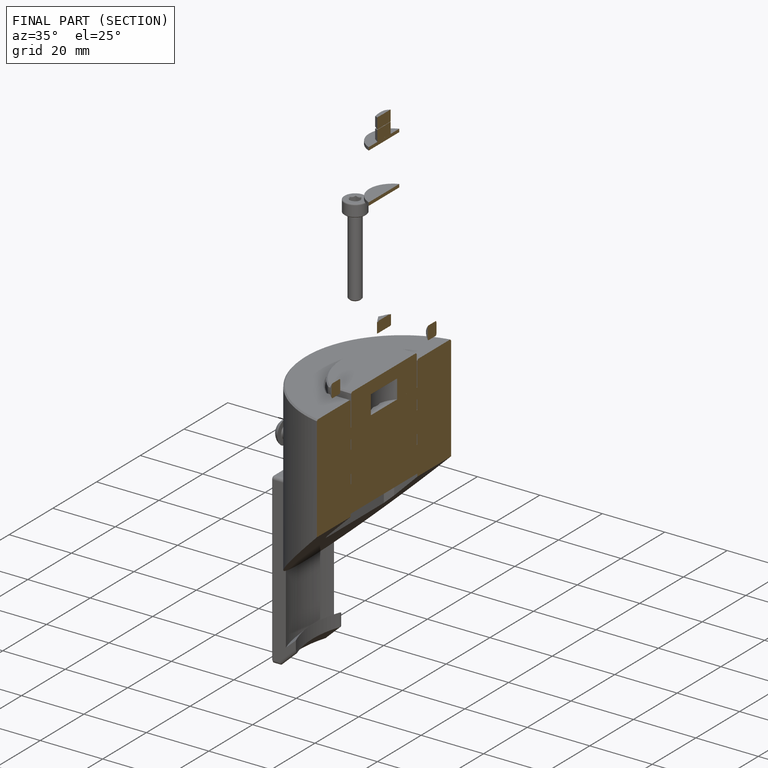
[diagram: finished part — half-section view (interior)]
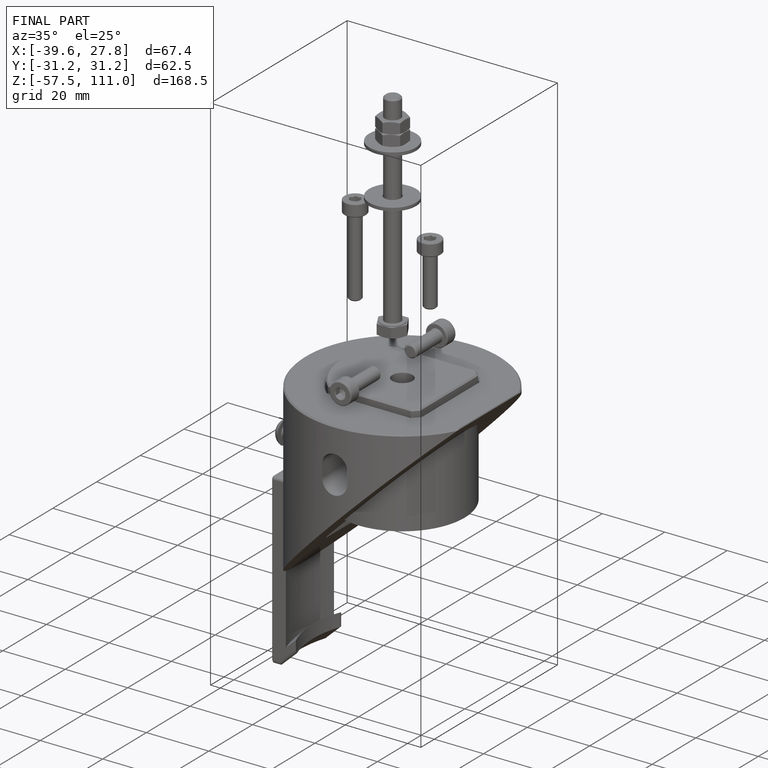
[diagram: finished part — iso view with bounding-box wireframe]
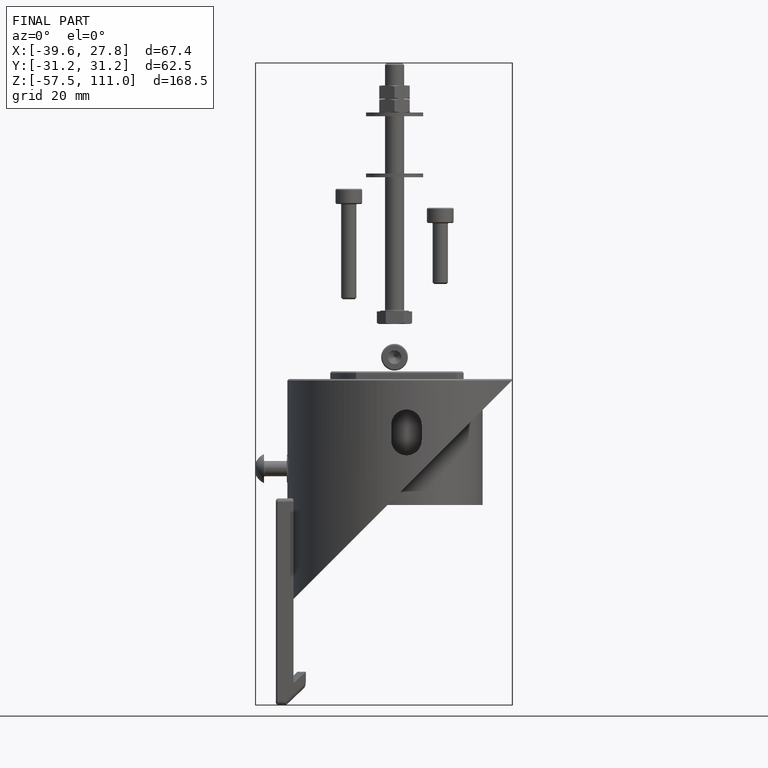
[diagram: finished part — front view with bounding-box wireframe]
